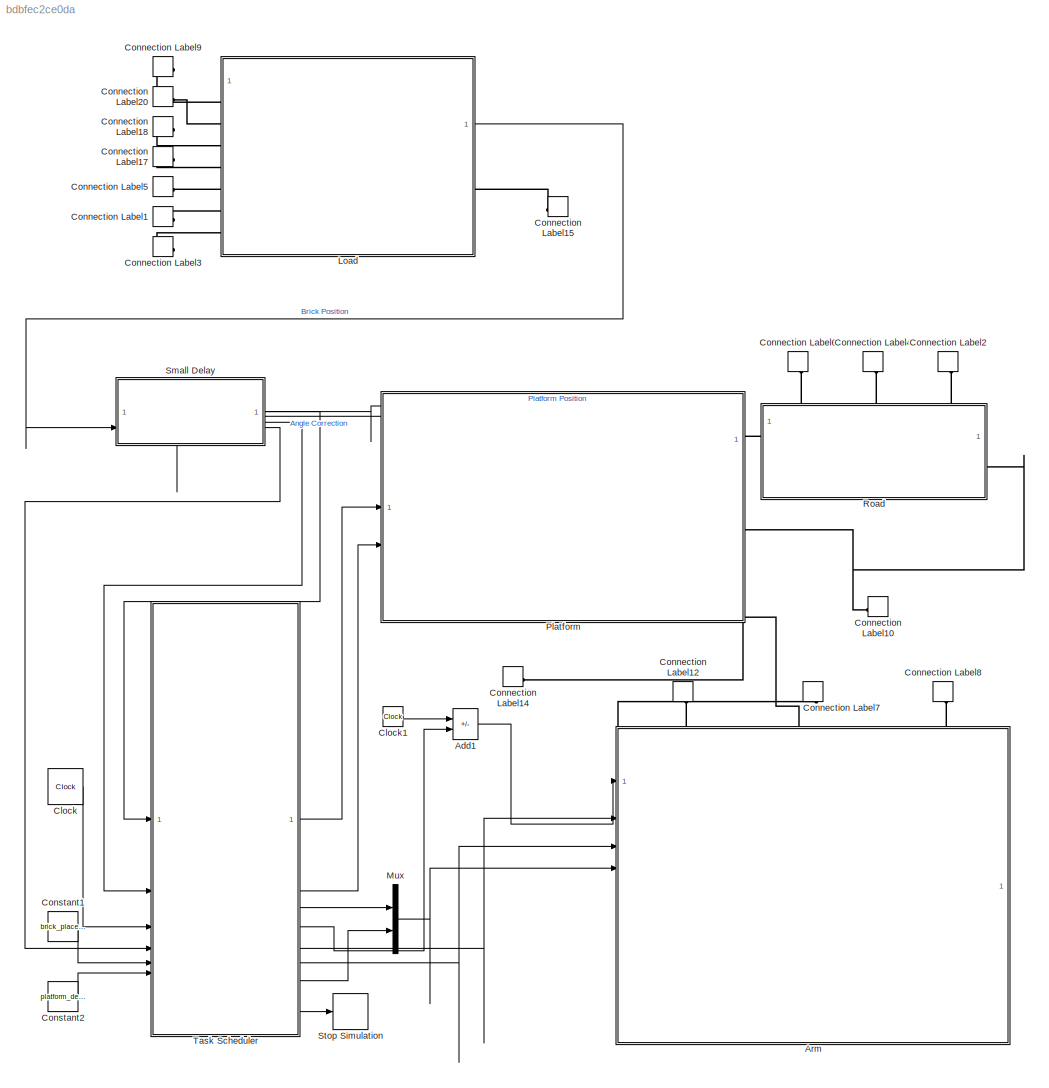
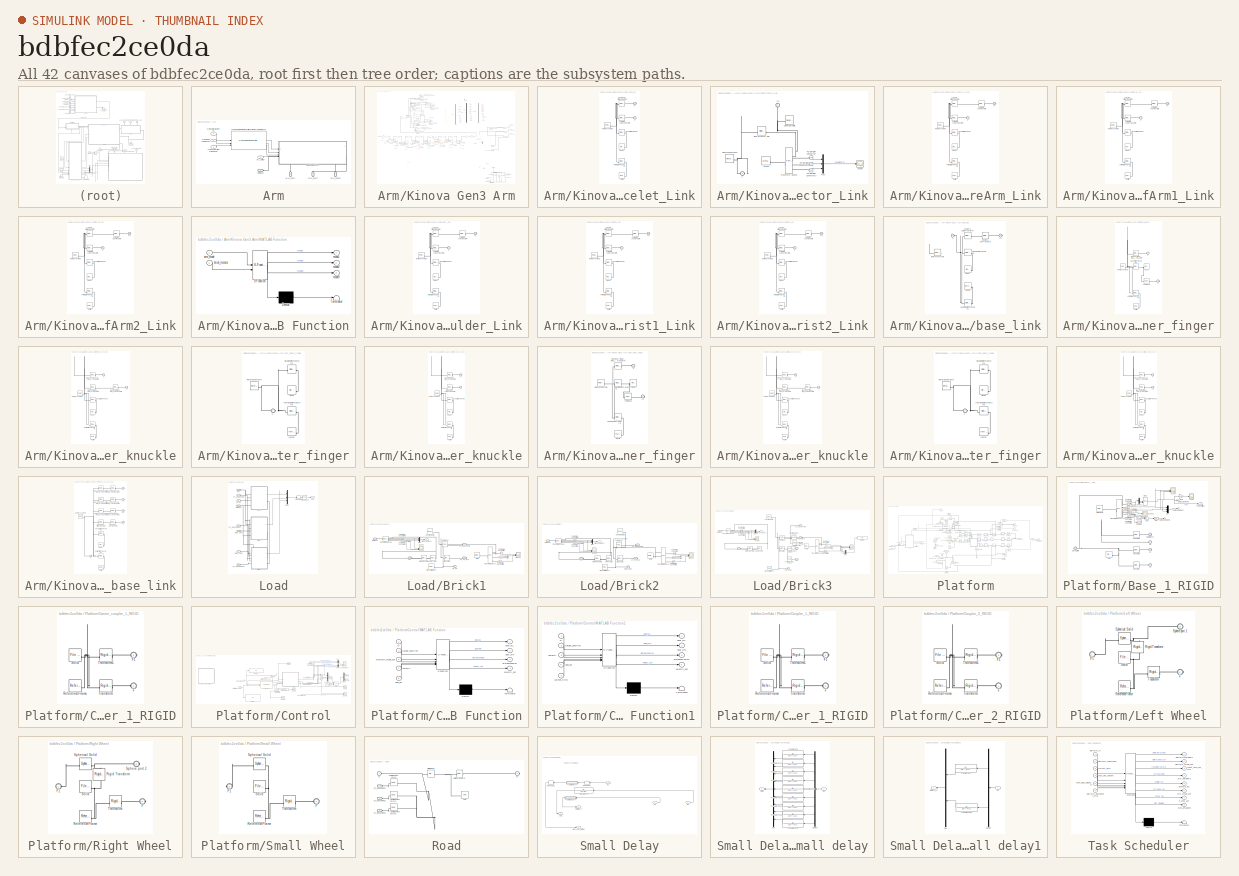
[diagram: thumbnail index - all 42 canvases of the model, root first then tree order]
MODEL slx_bdbfec2ce0da
KIND model
CONFIG AbsTol = 1e-3
CONFIG EnableMultiTasking = off
CONFIG FixedStep = auto
CONFIG MaxStep = auto
CONFIG MinStep = auto
CONFIG PreLoadFcn = Three_wheeled_base_LOAD_DATA
CONFIG RelTol = 1e-3
CONFIG SampleTimeConstraint = Unconstrained
CONFIG SolverName = ode23t
CONFIG StartTime = 0.0
CONFIG StopTime = 600
BLOCK [Sum] Add1
  IconShape = rectangular
  Inputs = +-
BLOCK [SubSystem] Arm
  PortSchema = {"entries":[{"content":{"sides":[{"content":{"connectorIds":["LConn1","In1","In2","In3","In4"]},"type":"ConnectorPlacement.EquallySpacedRectSide","uuid":"ee2274a6-58ed-4bc3-bc3c-ce92a4d8f88b"},{"content":{"side":"RIGHT"},"type":"ConnectorPlacement.EquallySpacedRectSide","uuid":"7a54403a-43fc-49b7-a0b4-bb229ee477d3"},{"content":{"connectorIds":["LConn2","LConn3","LConn4"],"side":"TOP"},"type":"Conn...<+269ch>
BLOCK [Inport] Arm/Arm acceleration trajectories
  Port = 3
BLOCK [Inport] Arm/Arm angle trajectories
BLOCK [Inport] Arm/Arm velocity trajectories
  Port = 2
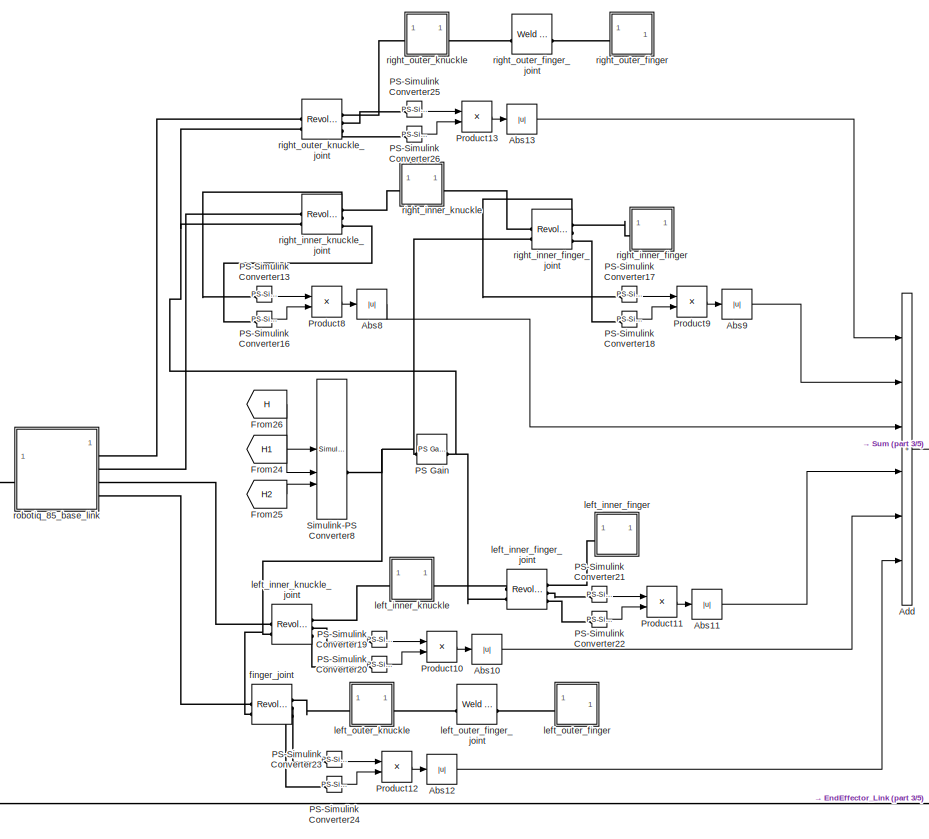
[diagram: Arm/Kinova Gen3 Arm - part 1/5, top center region]
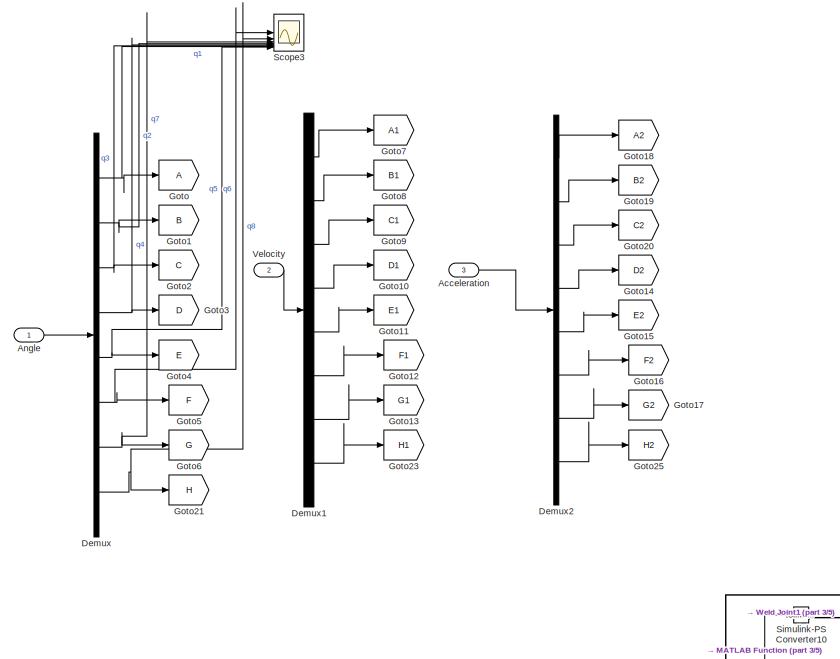
[diagram: Arm/Kinova Gen3 Arm - part 2/5, top right region]
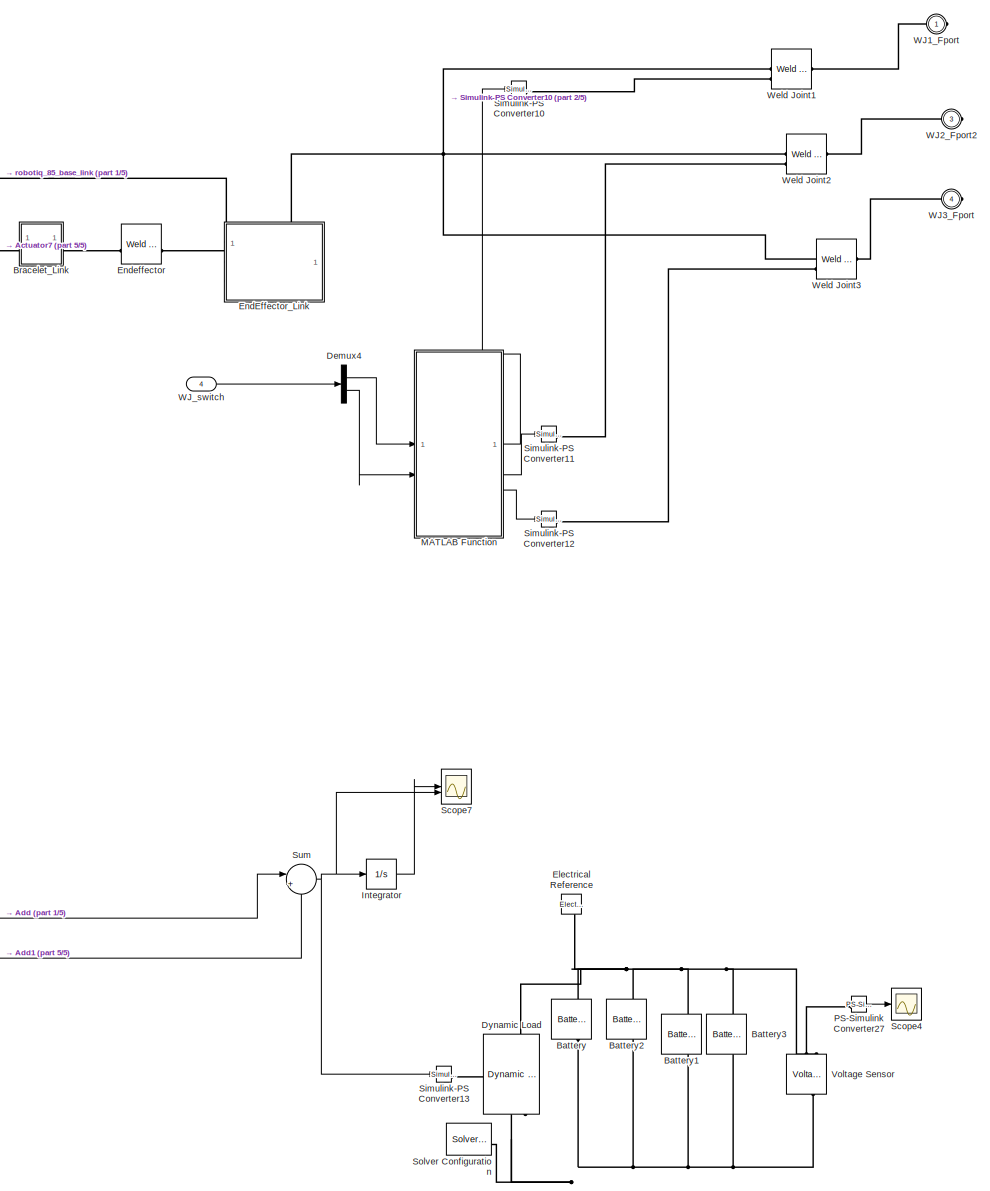
[diagram: Arm/Kinova Gen3 Arm - part 3/5, bottom right region]
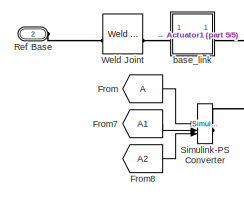
[diagram: Arm/Kinova Gen3 Arm - part 4/5, middle left region]
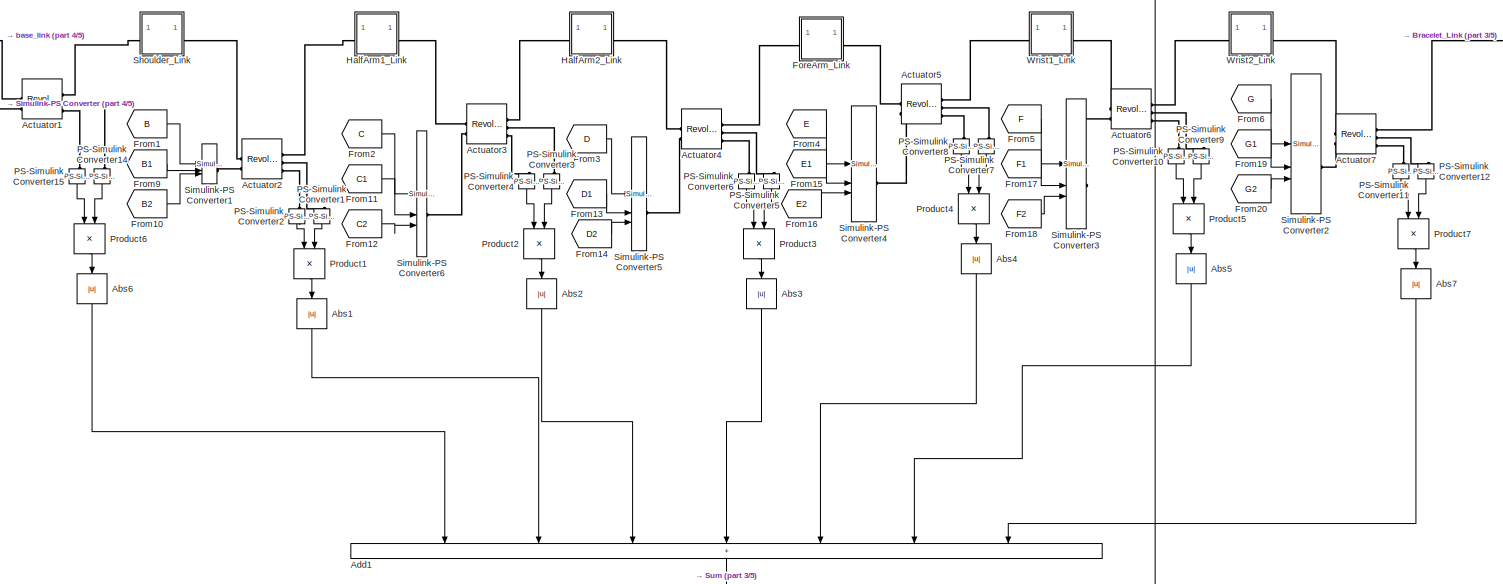
[diagram: Arm/Kinova Gen3 Arm - part 5/5, central region]
BLOCK [SubSystem] Arm/Kinova Gen3 Arm
  PortSchema = {"entries":[{"content":{"sides":[{"content":{"connectorIds":["In1","In2","In3","In4","LConn1"]},"type":"ConnectorPlacement.EquallySpacedRectSide","uuid":"9d5091ef-fb90-4975-9d40-26cfdfa951d0"},{"content":{"side":"RIGHT"},"type":"ConnectorPlacement.EquallySpacedRectSide","uuid":"b105551f-355d-4434-964a-24d22199b3bd"},{"content":{"side":"TOP"},"type":"ConnectorPlacement.EquallySpacedRectSide","uuid"...<+395ch>
BLOCK [Abs] Arm/Kinova Gen3 Arm/Abs1
  NameLocation = left
  SaturateOnIntegerOverflow = off
  ZeroCross = off
BLOCK [Abs] Arm/Kinova Gen3 Arm/Abs10
  SaturateOnIntegerOverflow = off
  ZeroCross = off
BLOCK [Abs] Arm/Kinova Gen3 Arm/Abs11
  SaturateOnIntegerOverflow = off
  ZeroCross = off
BLOCK [Abs] Arm/Kinova Gen3 Arm/Abs12
  SaturateOnIntegerOverflow = off
  ZeroCross = off
BLOCK [Abs] Arm/Kinova Gen3 Arm/Abs13
  SaturateOnIntegerOverflow = off
  ZeroCross = off
BLOCK [Abs] Arm/Kinova Gen3 Arm/Abs2
  NameLocation = left
  SaturateOnIntegerOverflow = off
  ZeroCross = off
BLOCK [Abs] Arm/Kinova Gen3 Arm/Abs3
  NameLocation = left
  SaturateOnIntegerOverflow = off
  ZeroCross = off
BLOCK [Abs] Arm/Kinova Gen3 Arm/Abs4
  NameLocation = left
  SaturateOnIntegerOverflow = off
  ZeroCross = off
BLOCK [Abs] Arm/Kinova Gen3 Arm/Abs5
  NameLocation = left
  SaturateOnIntegerOverflow = off
  ZeroCross = off
BLOCK [Abs] Arm/Kinova Gen3 Arm/Abs6
  NameLocation = left
  SaturateOnIntegerOverflow = off
  ZeroCross = off
BLOCK [Abs] Arm/Kinova Gen3 Arm/Abs7
  NameLocation = left
  SaturateOnIntegerOverflow = off
  ZeroCross = off
BLOCK [Abs] Arm/Kinova Gen3 Arm/Abs8
  SaturateOnIntegerOverflow = off
  ZeroCross = off
BLOCK [Abs] Arm/Kinova Gen3 Arm/Abs9
  SaturateOnIntegerOverflow = off
  ZeroCross = off
BLOCK [Inport] Arm/Kinova Gen3 Arm/Acceleration
  Port = 3
BLOCK [Reference] Arm/Kinova Gen3 Arm/Actuator1  REF=sm_lib/Joints/Revolute Joint
  SourceBlock = sm_lib/Joints/Revolute Joint
  SourceType = Revolute Joint
BLOCK [Reference] Arm/Kinova Gen3 Arm/Actuator2  REF=sm_lib/Joints/Revolute Joint
  SourceBlock = sm_lib/Joints/Revolute Joint
  SourceType = Revolute Joint
BLOCK [Reference] Arm/Kinova Gen3 Arm/Actuator3  REF=sm_lib/Joints/Revolute Joint
  SourceBlock = sm_lib/Joints/Revolute Joint
  SourceType = Revolute Joint
BLOCK [Reference] Arm/Kinova Gen3 Arm/Actuator4  REF=sm_lib/Joints/Revolute Joint
  SourceBlock = sm_lib/Joints/Revolute Joint
  SourceType = Revolute Joint
BLOCK [Reference] Arm/Kinova Gen3 Arm/Actuator5  REF=sm_lib/Joints/Revolute Joint
  SourceBlock = sm_lib/Joints/Revolute Joint
  SourceType = Revolute Joint
BLOCK [Reference] Arm/Kinova Gen3 Arm/Actuator6  REF=sm_lib/Joints/Revolute Joint
  SourceBlock = sm_lib/Joints/Revolute Joint
  SourceType = Revolute Joint
BLOCK [Reference] Arm/Kinova Gen3 Arm/Actuator7  REF=sm_lib/Joints/Revolute Joint
  SourceBlock = sm_lib/Joints/Revolute Joint
  SourceType = Revolute Joint
BLOCK [Sum] Arm/Kinova Gen3 Arm/Add
  IconShape = rectangular
  Inputs = ++++++
BLOCK [Sum] Arm/Kinova Gen3 Arm/Add1
  IconShape = rectangular
  Inputs = +++++++
  NameLocation = left
BLOCK [Inport] Arm/Kinova Gen3 Arm/Angle
BLOCK [Reference] Arm/Kinova Gen3 Arm/Battery  REF=batteryecm_lib/Battery
  LibrarySourceBlock = ee_lib/Sources/Battery
  NameLocation = left
  SourceBlock = batteryecm_lib/Battery
  SourceType = Battery
BLOCK [Reference] Arm/Kinova Gen3 Arm/Battery1  REF=batteryecm_lib/Battery
  LibrarySourceBlock = ee_lib/Sources/Battery
  NameLocation = left
  SourceBlock = batteryecm_lib/Battery
  SourceType = Battery
BLOCK [Reference] Arm/Kinova Gen3 Arm/Battery2  REF=batteryecm_lib/Battery
  LibrarySourceBlock = ee_lib/Sources/Battery
  NameLocation = left
  SourceBlock = batteryecm_lib/Battery
  SourceType = Battery
BLOCK [Reference] Arm/Kinova Gen3 Arm/Battery3  REF=batteryecm_lib/Battery
  LibrarySourceBlock = ee_lib/Sources/Battery
  NameLocation = left
  SourceBlock = batteryecm_lib/Battery
  SourceType = Battery
BLOCK [SubSystem] Arm/Kinova Gen3 Arm/Bracelet_Link
BLOCK [Reference] Arm/Kinova Gen3 Arm/Bracelet_Link/Actuator7_AxisInvTransform  REF=sm_lib/Frames and
Transforms/Rigid
Transform
  SourceBlock = sm_lib/Frames and\nTransforms/Rigid\nTransform
  SourceType = Rigid\nTransform
BLOCK [Reference] Arm/Kinova Gen3 Arm/Bracelet_Link/Endeffector_OriginTransform  REF=sm_lib/Frames and
Transforms/Rigid
Transform
  SourceBlock = sm_lib/Frames and\nTransforms/Rigid\nTransform
  SourceType = Rigid\nTransform
BLOCK [PMIOPort] Arm/Kinova Gen3 Arm/Bracelet_Link/F
  Side = Left
BLOCK [PMIOPort] Arm/Kinova Gen3 Arm/Bracelet_Link/F1
  Port = 2
  Side = Right
BLOCK [Reference] Arm/Kinova Gen3 Arm/Bracelet_Link/Inertia  REF=sm_lib/Body Elements/Inertia
  SourceBlock = sm_lib/Body Elements/Inertia
  SourceType = Inertia
BLOCK [Reference] Arm/Kinova Gen3 Arm/Bracelet_Link/InertiaOriginTransform  REF=sm_lib/Frames and
Transforms/Rigid
Transform
  SourceBlock = sm_lib/Frames and\nTransforms/Rigid\nTransform
  SourceType = Rigid\nTransform
BLOCK [Reference] Arm/Kinova Gen3 Arm/Bracelet_Link/ReferenceFrame  REF=sm_lib/Frames and
Transforms/Reference
Frame
  SourceBlock = sm_lib/Frames and\nTransforms/Reference\nFrame
  SourceType = Reference\nFrame
BLOCK [Reference] Arm/Kinova Gen3 Arm/Bracelet_Link/Visual  REF=sm_lib/Body Elements/File Solid
  SourceBlock = sm_lib/Body Elements/File Solid
  SourceType = File Solid
BLOCK [Reference] Arm/Kinova Gen3 Arm/Bracelet_Link/VisualOriginTransform  REF=sm_lib/Frames and
Transforms/Rigid
Transform
  SourceBlock = sm_lib/Frames and\nTransforms/Rigid\nTransform
  SourceType = Rigid\nTransform
BLOCK [Demux] Arm/Kinova Gen3 Arm/Demux
  Outputs = 8
BLOCK [Demux] Arm/Kinova Gen3 Arm/Demux1
  Outputs = 8
BLOCK [Demux] Arm/Kinova Gen3 Arm/Demux2
  Outputs = 8
BLOCK [Demux] Arm/Kinova Gen3 Arm/Demux4
  Outputs = 2
BLOCK [Reference] Arm/Kinova Gen3 Arm/Dynamic Load  REF=ee_lib/Passive/Dynamic Load
  NameLocation = right
  SourceBlock = ee_lib/Passive/Dynamic Load
  SourceType = Dynamic Load
BLOCK [Reference] Arm/Kinova Gen3 Arm/Electrical Reference  REF=fl_lib/Electrical/Electrical Elements/Electrical Reference
  NameLocation = left
  SourceBlock = fl_lib/Electrical/Electrical Elements/Electrical Reference
  SourceType = Electrical Reference
BLOCK [SubSystem] Arm/Kinova Gen3 Arm/EndEffector_Link
  PortSchema = {"entries":[{"content":{"sides":[{"content":{"connectorIds":["LConn1"]},"type":"ConnectorPlacement.EquallySpacedRectSide","uuid":"82f16ba1-9569-4e63-828b-80ada8384267"},{"content":{"side":"RIGHT"},"type":"ConnectorPlacement.EquallySpacedRectSide","uuid":"1c40a8b8-ff86-4403-bbc9-e3f7ed97d9c7"},{"content":{"connectorIds":["LConn2"],"side":"TOP"},"type":"ConnectorPlacement.EquallySpacedRectSide","uui...<+227ch>
BLOCK [Reference] Arm/Kinova Gen3 Arm/EndEffector_Link/End effector ball  REF=sm_lib/Frames and
Transforms/Rigid
Transform
  SourceBlock = sm_lib/Frames and\nTransforms/Rigid\nTransform
  SourceType = Rigid\nTransform
BLOCK [PMIOPort] Arm/Kinova Gen3 Arm/EndEffector_Link/F
  Side = Left
BLOCK [PMIOPort] Arm/Kinova Gen3 Arm/EndEffector_Link/F1
  NameLocation = left
  Port = 2
  Side = Left
BLOCK [Mux] Arm/Kinova Gen3 Arm/EndEffector_Link/Mux
  DisplayOption = bar
  Inputs = 3
BLOCK [Reference] Arm/Kinova Gen3 Arm/EndEffector_Link/PS-Simulink Converter  REF=nesl_utility/PS-Simulink
Converter
  SourceBlock = nesl_utility/PS-Simulink\nConverter
  SourceType = PS-Simulink\nConverter
BLOCK [Reference] Arm/Kinova Gen3 Arm/EndEffector_Link/PS-Simulink Converter1  REF=nesl_utility/PS-Simulink
Converter
  SourceBlock = nesl_utility/PS-Simulink\nConverter
  SourceType = PS-Simulink\nConverter
BLOCK [Reference] Arm/Kinova Gen3 Arm/EndEffector_Link/PS-Simulink Converter2  REF=nesl_utility/PS-Simulink
Converter
  SourceBlock = nesl_utility/PS-Simulink\nConverter
  SourceType = PS-Simulink\nConverter
BLOCK [Reference] Arm/Kinova Gen3 Arm/EndEffector_Link/ReferenceFrame  REF=sm_lib/Frames and
Transforms/Reference
Frame
  SourceBlock = sm_lib/Frames and\nTransforms/Reference\nFrame
  SourceType = Reference\nFrame
BLOCK [Scope] Arm/Kinova Gen3 Arm/EndEffector_Link/Scope
  Floating = off
  NumInputPorts = 1
  ScopeSpecificationString = Simulink.scopes.TimeScopeBlockCfg('CurrentConfiguration', extmgr.ConfigurationSet(extmgr.Configuration('Core','General UI',true),extmgr.Configuration('Core','Source UI',true),extmgr.Configuration('Sources','WiredSimulink',true,'DataLoggingVariableName','ScopeData1'),extmgr.Configuration('Visuals','Time Domain',true,'SerializedDisplays',{struct('MinYLimReal','-1.22207','MaxYLimReal','6.5632','YLabe...<+1488ch>
BLOCK [Reference] Arm/Kinova Gen3 Arm/EndEffector_Link/Spherical Solid  REF=sm_lib/Body Elements/Spherical Solid
  NameLocation = top
  SourceBlock = sm_lib/Body Elements/Spherical Solid
  SourceType = Spherical Solid
BLOCK [Reference] Arm/Kinova Gen3 Arm/EndEffector_Link/Transform Sensor  REF=sm_lib/Frames and
Transforms/Transform
Sensor
  SourceBlock = sm_lib/Frames and\nTransforms/Transform\nSensor
  SourceType = Transform\nSensor
BLOCK [Reference] Arm/Kinova Gen3 Arm/EndEffector_Link/World  REF=sm_lib/Frames and
Transforms/World Frame
  SourceBlock = sm_lib/Frames and\nTransforms/World Frame
  SourceType = World Frame
BLOCK [Reference] Arm/Kinova Gen3 Arm/Endeffector  REF=sm_lib/Joints/Weld Joint
  SourceBlock = sm_lib/Joints/Weld Joint
  SourceType = Weld Joint
BLOCK [SubSystem] Arm/Kinova Gen3 Arm/ForeArm_Link
BLOCK [Reference] Arm/Kinova Gen3 Arm/ForeArm_Link/Actuator4_AxisInvTransform  REF=sm_lib/Frames and
Transforms/Rigid
Transform
  SourceBlock = sm_lib/Frames and\nTransforms/Rigid\nTransform
  SourceType = Rigid\nTransform
BLOCK [Reference] Arm/Kinova Gen3 Arm/ForeArm_Link/Actuator5_AxisTransform  REF=sm_lib/Frames and
Transforms/Rigid
Transform
  SourceBlock = sm_lib/Frames and\nTransforms/Rigid\nTransform
  SourceType = Rigid\nTransform
BLOCK [Reference] Arm/Kinova Gen3 Arm/ForeArm_Link/Actuator5_OriginTransform  REF=sm_lib/Frames and
Transforms/Rigid
Transform
  SourceBlock = sm_lib/Frames and\nTransforms/Rigid\nTransform
  SourceType = Rigid\nTransform
BLOCK [PMIOPort] Arm/Kinova Gen3 Arm/ForeArm_Link/F
  Side = Left
BLOCK [PMIOPort] Arm/Kinova Gen3 Arm/ForeArm_Link/F1
  Port = 2
  Side = Right
BLOCK [Reference] Arm/Kinova Gen3 Arm/ForeArm_Link/Inertia  REF=sm_lib/Body Elements/Inertia
  SourceBlock = sm_lib/Body Elements/Inertia
  SourceType = Inertia
BLOCK [Reference] Arm/Kinova Gen3 Arm/ForeArm_Link/InertiaOriginTransform  REF=sm_lib/Frames and
Transforms/Rigid
Transform
  SourceBlock = sm_lib/Frames and\nTransforms/Rigid\nTransform
  SourceType = Rigid\nTransform
BLOCK [Reference] Arm/Kinova Gen3 Arm/ForeArm_Link/ReferenceFrame  REF=sm_lib/Frames and
Transforms/Reference
Frame
  SourceBlock = sm_lib/Frames and\nTransforms/Reference\nFrame
  SourceType = Reference\nFrame
BLOCK [Reference] Arm/Kinova Gen3 Arm/ForeArm_Link/Visual  REF=sm_lib/Body Elements/File Solid
  SourceBlock = sm_lib/Body Elements/File Solid
  SourceType = File Solid
BLOCK [Reference] Arm/Kinova Gen3 Arm/ForeArm_Link/VisualOriginTransform  REF=sm_lib/Frames and
Transforms/Rigid
Transform
  SourceBlock = sm_lib/Frames and\nTransforms/Rigid\nTransform
  SourceType = Rigid\nTransform
BLOCK [From] Arm/Kinova Gen3 Arm/From
BLOCK [From] Arm/Kinova Gen3 Arm/From1
  GotoTag = B
BLOCK [From] Arm/Kinova Gen3 Arm/From10
  GotoTag = B2
BLOCK [From] Arm/Kinova Gen3 Arm/From11
  GotoTag = C1
BLOCK [From] Arm/Kinova Gen3 Arm/From12
  GotoTag = C2
BLOCK [From] Arm/Kinova Gen3 Arm/From13
  GotoTag = D1
BLOCK [From] Arm/Kinova Gen3 Arm/From14
  GotoTag = D2
BLOCK [From] Arm/Kinova Gen3 Arm/From15
  GotoTag = E1
BLOCK [From] Arm/Kinova Gen3 Arm/From16
  GotoTag = E2
BLOCK [From] Arm/Kinova Gen3 Arm/From17
  GotoTag = F1
BLOCK [From] Arm/Kinova Gen3 Arm/From18
  GotoTag = F2
BLOCK [From] Arm/Kinova Gen3 Arm/From19
  GotoTag = G1
BLOCK [From] Arm/Kinova Gen3 Arm/From2
  GotoTag = C
BLOCK [From] Arm/Kinova Gen3 Arm/From20
  GotoTag = G2
BLOCK [From] Arm/Kinova Gen3 Arm/From24
  GotoTag = H1
BLOCK [From] Arm/Kinova Gen3 Arm/From25
  GotoTag = H2
BLOCK [From] Arm/Kinova Gen3 Arm/From26
  GotoTag = H
BLOCK [From] Arm/Kinova Gen3 Arm/From3
  GotoTag = D
BLOCK [From] Arm/Kinova Gen3 Arm/From4
  GotoTag = E
BLOCK [From] Arm/Kinova Gen3 Arm/From5
  GotoTag = F
BLOCK [From] Arm/Kinova Gen3 Arm/From6
  GotoTag = G
BLOCK [From] Arm/Kinova Gen3 Arm/From7
  GotoTag = A1
BLOCK [From] Arm/Kinova Gen3 Arm/From8
  GotoTag = A2
BLOCK [From] Arm/Kinova Gen3 Arm/From9
  GotoTag = B1
BLOCK [Goto] Arm/Kinova Gen3 Arm/Goto
BLOCK [Goto] Arm/Kinova Gen3 Arm/Goto1
  GotoTag = B
BLOCK [Goto] Arm/Kinova Gen3 Arm/Goto10
  GotoTag = D1
BLOCK [Goto] Arm/Kinova Gen3 Arm/Goto11
  GotoTag = E1
BLOCK [Goto] Arm/Kinova Gen3 Arm/Goto12
  GotoTag = F1
BLOCK [Goto] Arm/Kinova Gen3 Arm/Goto13
  GotoTag = G1
BLOCK [Goto] Arm/Kinova Gen3 Arm/Goto14
  GotoTag = D2
BLOCK [Goto] Arm/Kinova Gen3 Arm/Goto15
  GotoTag = E2
BLOCK [Goto] Arm/Kinova Gen3 Arm/Goto16
  GotoTag = F2
BLOCK [Goto] Arm/Kinova Gen3 Arm/Goto17
  GotoTag = G2
BLOCK [Goto] Arm/Kinova Gen3 Arm/Goto18
  GotoTag = A2
BLOCK [Goto] Arm/Kinova Gen3 Arm/Goto19
  GotoTag = B2
BLOCK [Goto] Arm/Kinova Gen3 Arm/Goto2
  GotoTag = C
BLOCK [Goto] Arm/Kinova Gen3 Arm/Goto20
  GotoTag = C2
BLOCK [Goto] Arm/Kinova Gen3 Arm/Goto21
  GotoTag = H
BLOCK [Goto] Arm/Kinova Gen3 Arm/Goto23
  GotoTag = H1
BLOCK [Goto] Arm/Kinova Gen3 Arm/Goto25
  GotoTag = H2
BLOCK [Goto] Arm/Kinova Gen3 Arm/Goto3
  GotoTag = D
BLOCK [Goto] Arm/Kinova Gen3 Arm/Goto4
  GotoTag = E
BLOCK [Goto] Arm/Kinova Gen3 Arm/Goto5
  GotoTag = F
BLOCK [Goto] Arm/Kinova Gen3 Arm/Goto6
  GotoTag = G
BLOCK [Goto] Arm/Kinova Gen3 Arm/Goto7
  GotoTag = A1
BLOCK [Goto] Arm/Kinova Gen3 Arm/Goto8
  GotoTag = B1
BLOCK [Goto] Arm/Kinova Gen3 Arm/Goto9
  GotoTag = C1
BLOCK [SubSystem] Arm/Kinova Gen3 Arm/HalfArm1_Link
BLOCK [Reference] Arm/Kinova Gen3 Arm/HalfArm1_Link/Actuator2_AxisInvTransform  REF=sm_lib/Frames and
Transforms/Rigid
Transform
  SourceBlock = sm_lib/Frames and\nTransforms/Rigid\nTransform
  SourceType = Rigid\nTransform
BLOCK [Reference] Arm/Kinova Gen3 Arm/HalfArm1_Link/Actuator3_AxisTransform  REF=sm_lib/Frames and
Transforms/Rigid
Transform
  SourceBlock = sm_lib/Frames and\nTransforms/Rigid\nTransform
  SourceType = Rigid\nTransform
BLOCK [Reference] Arm/Kinova Gen3 Arm/HalfArm1_Link/Actuator3_OriginTransform  REF=sm_lib/Frames and
Transforms/Rigid
Transform
  SourceBlock = sm_lib/Frames and\nTransforms/Rigid\nTransform
  SourceType = Rigid\nTransform
BLOCK [PMIOPort] Arm/Kinova Gen3 Arm/HalfArm1_Link/F
  Side = Left
BLOCK [PMIOPort] Arm/Kinova Gen3 Arm/HalfArm1_Link/F1
  Port = 2
  Side = Right
BLOCK [Reference] Arm/Kinova Gen3 Arm/HalfArm1_Link/Inertia  REF=sm_lib/Body Elements/Inertia
  SourceBlock = sm_lib/Body Elements/Inertia
  SourceType = Inertia
BLOCK [Reference] Arm/Kinova Gen3 Arm/HalfArm1_Link/InertiaOriginTransform  REF=sm_lib/Frames and
Transforms/Rigid
Transform
  SourceBlock = sm_lib/Frames and\nTransforms/Rigid\nTransform
  SourceType = Rigid\nTransform
BLOCK [Reference] Arm/Kinova Gen3 Arm/HalfArm1_Link/ReferenceFrame  REF=sm_lib/Frames and
Transforms/Reference
Frame
  SourceBlock = sm_lib/Frames and\nTransforms/Reference\nFrame
  SourceType = Reference\nFrame
BLOCK [Reference] Arm/Kinova Gen3 Arm/HalfArm1_Link/Visual  REF=sm_lib/Body Elements/File Solid
  SourceBlock = sm_lib/Body Elements/File Solid
  SourceType = File Solid
BLOCK [Reference] Arm/Kinova Gen3 Arm/HalfArm1_Link/VisualOriginTransform  REF=sm_lib/Frames and
Transforms/Rigid
Transform
  SourceBlock = sm_lib/Frames and\nTransforms/Rigid\nTransform
  SourceType = Rigid\nTransform
BLOCK [SubSystem] Arm/Kinova Gen3 Arm/HalfArm2_Link
BLOCK [Reference] Arm/Kinova Gen3 Arm/HalfArm2_Link/Actuator3_AxisInvTransform  REF=sm_lib/Frames and
Transforms/Rigid
Transform
  SourceBlock = sm_lib/Frames and\nTransforms/Rigid\nTransform
  SourceType = Rigid\nTransform
BLOCK [Reference] Arm/Kinova Gen3 Arm/HalfArm2_Link/Actuator4_AxisTransform  REF=sm_lib/Frames and
Transforms/Rigid
Transform
  SourceBlock = sm_lib/Frames and\nTransforms/Rigid\nTransform
  SourceType = Rigid\nTransform
BLOCK [Reference] Arm/Kinova Gen3 Arm/HalfArm2_Link/Actuator4_OriginTransform  REF=sm_lib/Frames and
Transforms/Rigid
Transform
  SourceBlock = sm_lib/Frames and\nTransforms/Rigid\nTransform
  SourceType = Rigid\nTransform
BLOCK [PMIOPort] Arm/Kinova Gen3 Arm/HalfArm2_Link/F
  Side = Left
BLOCK [PMIOPort] Arm/Kinova Gen3 Arm/HalfArm2_Link/F1
  Port = 2
  Side = Right
BLOCK [Reference] Arm/Kinova Gen3 Arm/HalfArm2_Link/Inertia  REF=sm_lib/Body Elements/Inertia
  SourceBlock = sm_lib/Body Elements/Inertia
  SourceType = Inertia
BLOCK [Reference] Arm/Kinova Gen3 Arm/HalfArm2_Link/InertiaOriginTransform  REF=sm_lib/Frames and
Transforms/Rigid
Transform
  SourceBlock = sm_lib/Frames and\nTransforms/Rigid\nTransform
  SourceType = Rigid\nTransform
BLOCK [Reference] Arm/Kinova Gen3 Arm/HalfArm2_Link/ReferenceFrame  REF=sm_lib/Frames and
Transforms/Reference
Frame
  SourceBlock = sm_lib/Frames and\nTransforms/Reference\nFrame
  SourceType = Reference\nFrame
BLOCK [Reference] Arm/Kinova Gen3 Arm/HalfArm2_Link/Visual  REF=sm_lib/Body Elements/File Solid
  SourceBlock = sm_lib/Body Elements/File Solid
  SourceType = File Solid
BLOCK [Reference] Arm/Kinova Gen3 Arm/HalfArm2_Link/VisualOriginTransform  REF=sm_lib/Frames and
Transforms/Rigid
Transform
  SourceBlock = sm_lib/Frames and\nTransforms/Rigid\nTransform
  SourceType = Rigid\nTransform
BLOCK [Integrator] Arm/Kinova Gen3 Arm/Integrator
BLOCK [SubSystem] Arm/Kinova Gen3 Arm/MATLAB Function
  ErrorFcn = Stateflow.Translate.translate
  LibrarySourceBlock = simulink/User-Defined\nFunctions/MATLAB Function
  PermitHierarchicalResolution = ExplicitOnly
  SFBlockType = MATLAB Function
  TreatAsAtomicUnit = on
BLOCK [Demux] Arm/Kinova Gen3 Arm/MATLAB Function/ Demux 
  Outputs = 1
BLOCK [S-Function] Arm/Kinova Gen3 Arm/MATLAB Function/ SFunction 
  EnableBusSupport = on
  FunctionName = sf_sfun
  PortCounts = [2 4]
  SFcnIsStateOwnerBlock = off
  SFunctionDeploymentMode = off
  Tag = Stateflow S-Function 4
BLOCK [Terminator] Arm/Kinova Gen3 Arm/MATLAB Function/ Terminator 
BLOCK [Inport] Arm/Kinova Gen3 Arm/MATLAB Function/arm_mode
BLOCK [Inport] Arm/Kinova Gen3 Arm/MATLAB Function/brick_iterator
  Port = 2
BLOCK [Outport] Arm/Kinova Gen3 Arm/MATLAB Function/mode1
BLOCK [Outport] Arm/Kinova Gen3 Arm/MATLAB Function/mode2
  Port = 2
BLOCK [Outport] Arm/Kinova Gen3 Arm/MATLAB Function/mode3
  Port = 3
BLOCK [Reference] Arm/Kinova Gen3 Arm/PS Gain  REF=fl_lib/Physical Signals/Functions/PS Gain
  SourceBlock = fl_lib/Physical Signals/Functions/PS Gain
  SourceType = PS Gain
BLOCK [Reference] Arm/Kinova Gen3 Arm/PS-Simulink Converter1  REF=nesl_utility/PS-Simulink
Converter
  NameLocation = left
  SourceBlock = nesl_utility/PS-Simulink\nConverter
  SourceType = PS-Simulink\nConverter
BLOCK [Reference] Arm/Kinova Gen3 Arm/PS-Simulink Converter10  REF=nesl_utility/PS-Simulink
Converter
  NameLocation = left
  SourceBlock = nesl_utility/PS-Simulink\nConverter
  SourceType = PS-Simulink\nConverter
BLOCK [Reference] Arm/Kinova Gen3 Arm/PS-Simulink Converter11  REF=nesl_utility/PS-Simulink
Converter
  NameLocation = left
  SourceBlock = nesl_utility/PS-Simulink\nConverter
  SourceType = PS-Simulink\nConverter
BLOCK [Reference] Arm/Kinova Gen3 Arm/PS-Simulink Converter12  REF=nesl_utility/PS-Simulink
Converter
  NameLocation = left
  SourceBlock = nesl_utility/PS-Simulink\nConverter
  SourceType = PS-Simulink\nConverter
BLOCK [Reference] Arm/Kinova Gen3 Arm/PS-Simulink Converter13  REF=nesl_utility/PS-Simulink
Converter
  SourceBlock = nesl_utility/PS-Simulink\nConverter
  SourceType = PS-Simulink\nConverter
BLOCK [Reference] Arm/Kinova Gen3 Arm/PS-Simulink Converter14  REF=nesl_utility/PS-Simulink
Converter
  NameLocation = left
  SourceBlock = nesl_utility/PS-Simulink\nConverter
  SourceType = PS-Simulink\nConverter
BLOCK [Reference] Arm/Kinova Gen3 Arm/PS-Simulink Converter15  REF=nesl_utility/PS-Simulink
Converter
  NameLocation = left
  SourceBlock = nesl_utility/PS-Simulink\nConverter
  SourceType = PS-Simulink\nConverter
BLOCK [Reference] Arm/Kinova Gen3 Arm/PS-Simulink Converter16  REF=nesl_utility/PS-Simulink
Converter
  SourceBlock = nesl_utility/PS-Simulink\nConverter
  SourceType = PS-Simulink\nConverter
BLOCK [Reference] Arm/Kinova Gen3 Arm/PS-Simulink Converter17  REF=nesl_utility/PS-Simulink
Converter
  SourceBlock = nesl_utility/PS-Simulink\nConverter
  SourceType = PS-Simulink\nConverter
BLOCK [Reference] Arm/Kinova Gen3 Arm/PS-Simulink Converter18  REF=nesl_utility/PS-Simulink
Converter
  SourceBlock = nesl_utility/PS-Simulink\nConverter
  SourceType = PS-Simulink\nConverter
BLOCK [Reference] Arm/Kinova Gen3 Arm/PS-Simulink Converter19  REF=nesl_utility/PS-Simulink
Converter
  SourceBlock = nesl_utility/PS-Simulink\nConverter
  SourceType = PS-Simulink\nConverter
BLOCK [Reference] Arm/Kinova Gen3 Arm/PS-Simulink Converter2  REF=nesl_utility/PS-Simulink
Converter
  NameLocation = left
  SourceBlock = nesl_utility/PS-Simulink\nConverter
  SourceType = PS-Simulink\nConverter
BLOCK [Reference] Arm/Kinova Gen3 Arm/PS-Simulink Converter20  REF=nesl_utility/PS-Simulink
Converter
  SourceBlock = nesl_utility/PS-Simulink\nConverter
  SourceType = PS-Simulink\nConverter
BLOCK [Reference] Arm/Kinova Gen3 Arm/PS-Simulink Converter21  REF=nesl_utility/PS-Simulink
Converter
  SourceBlock = nesl_utility/PS-Simulink\nConverter
  SourceType = PS-Simulink\nConverter
BLOCK [Reference] Arm/Kinova Gen3 Arm/PS-Simulink Converter22  REF=nesl_utility/PS-Simulink
Converter
  SourceBlock = nesl_utility/PS-Simulink\nConverter
  SourceType = PS-Simulink\nConverter
BLOCK [Reference] Arm/Kinova Gen3 Arm/PS-Simulink Converter23  REF=nesl_utility/PS-Simulink
Converter
  SourceBlock = nesl_utility/PS-Simulink\nConverter
  SourceType = PS-Simulink\nConverter
BLOCK [Reference] Arm/Kinova Gen3 Arm/PS-Simulink Converter24  REF=nesl_utility/PS-Simulink
Converter
  SourceBlock = nesl_utility/PS-Simulink\nConverter
  SourceType = PS-Simulink\nConverter
BLOCK [Reference] Arm/Kinova Gen3 Arm/PS-Simulink Converter25  REF=nesl_utility/PS-Simulink
Converter
  SourceBlock = nesl_utility/PS-Simulink\nConverter
  SourceType = PS-Simulink\nConverter
BLOCK [Reference] Arm/Kinova Gen3 Arm/PS-Simulink Converter26  REF=nesl_utility/PS-Simulink
Converter
  SourceBlock = nesl_utility/PS-Simulink\nConverter
  SourceType = PS-Simulink\nConverter
BLOCK [Reference] Arm/Kinova Gen3 Arm/PS-Simulink Converter27  REF=nesl_utility/PS-Simulink
Converter
  SourceBlock = nesl_utility/PS-Simulink\nConverter
  SourceType = PS-Simulink\nConverter
BLOCK [Reference] Arm/Kinova Gen3 Arm/PS-Simulink Converter3  REF=nesl_utility/PS-Simulink
Converter
  NameLocation = left
  SourceBlock = nesl_utility/PS-Simulink\nConverter
  SourceType = PS-Simulink\nConverter
BLOCK [Reference] Arm/Kinova Gen3 Arm/PS-Simulink Converter4  REF=nesl_utility/PS-Simulink
Converter
  NameLocation = left
  SourceBlock = nesl_utility/PS-Simulink\nConverter
  SourceType = PS-Simulink\nConverter
BLOCK [Reference] Arm/Kinova Gen3 Arm/PS-Simulink Converter5  REF=nesl_utility/PS-Simulink
Converter
  NameLocation = left
  SourceBlock = nesl_utility/PS-Simulink\nConverter
  SourceType = PS-Simulink\nConverter
BLOCK [Reference] Arm/Kinova Gen3 Arm/PS-Simulink Converter6  REF=nesl_utility/PS-Simulink
Converter
  NameLocation = left
  SourceBlock = nesl_utility/PS-Simulink\nConverter
  SourceType = PS-Simulink\nConverter
BLOCK [Reference] Arm/Kinova Gen3 Arm/PS-Simulink Converter7  REF=nesl_utility/PS-Simulink
Converter
  NameLocation = left
  SourceBlock = nesl_utility/PS-Simulink\nConverter
  SourceType = PS-Simulink\nConverter
BLOCK [Reference] Arm/Kinova Gen3 Arm/PS-Simulink Converter8  REF=nesl_utility/PS-Simulink
Converter
  NameLocation = left
  SourceBlock = nesl_utility/PS-Simulink\nConverter
  SourceType = PS-Simulink\nConverter
BLOCK [Reference] Arm/Kinova Gen3 Arm/PS-Simulink Converter9  REF=nesl_utility/PS-Simulink
Converter
  NameLocation = left
  SourceBlock = nesl_utility/PS-Simulink\nConverter
  SourceType = PS-Simulink\nConverter
BLOCK [Product] Arm/Kinova Gen3 Arm/Product1
  NameLocation = left
BLOCK [Product] Arm/Kinova Gen3 Arm/Product10
BLOCK [Product] Arm/Kinova Gen3 Arm/Product11
BLOCK [Product] Arm/Kinova Gen3 Arm/Product12
BLOCK [Product] Arm/Kinova Gen3 Arm/Product13
BLOCK [Product] Arm/Kinova Gen3 Arm/Product2
  NameLocation = left
BLOCK [Product] Arm/Kinova Gen3 Arm/Product3
  NameLocation = left
BLOCK [Product] Arm/Kinova Gen3 Arm/Product4
  NameLocation = left
BLOCK [Product] Arm/Kinova Gen3 Arm/Product5
  NameLocation = left
BLOCK [Product] Arm/Kinova Gen3 Arm/Product6
  NameLocation = left
BLOCK [Product] Arm/Kinova Gen3 Arm/Product7
  NameLocation = left
BLOCK [Product] Arm/Kinova Gen3 Arm/Product8
BLOCK [Product] Arm/Kinova Gen3 Arm/Product9
BLOCK [PMIOPort] Arm/Kinova Gen3 Arm/Ref Base
  NameLocation = top
  Port = 2
  Side = Left
BLOCK [Scope] Arm/Kinova Gen3 Arm/Scope3
  Floating = off
  NumInputPorts = 8
  ScopeSpecificationString = Simulink.scopes.TimeScopeBlockCfg('CurrentConfiguration', extmgr.ConfigurationSet(extmgr.Configuration('Core','General UI',true),extmgr.Configuration('Core','Source UI',true),extmgr.Configuration('Sources','WiredSimulink',true,'DataLoggingVariableName','ScopeData1'),extmgr.Configuration('Visuals','Time Domain',true,'SerializedDisplays',{struct('MinYLimReal','-2.23834','MaxYLimReal','2.70548','YLab...<+1573ch>
BLOCK [Scope] Arm/Kinova Gen3 Arm/Scope4
  Floating = off
  NumInputPorts = 1
  ScopeSpecificationString = Simulink.scopes.TimeScopeBlockCfg('CurrentConfiguration', extmgr.ConfigurationSet(extmgr.Configuration('Core','General UI',true),extmgr.Configuration('Core','Source UI',true),extmgr.Configuration('Sources','WiredSimulink',true,'DataLoggingVariableName','ScopeData1'),extmgr.Configuration('Visuals','Time Domain',true,'SerializedDisplays',{struct('MinYLimReal','6.08935','MaxYLimReal','12.65674','YLab...<+1484ch>
BLOCK [Scope] Arm/Kinova Gen3 Arm/Scope7
  Floating = off
  NumInputPorts = 2
  ScopeSpecificationString = Simulink.scopes.TimeScopeBlockCfg('CurrentConfiguration', extmgr.ConfigurationSet(extmgr.Configuration('Core','General UI',true),extmgr.Configuration('Core','Source UI',true),extmgr.Configuration('Sources','WiredSimulink',true,'DataLoggingVariableName','ScopeData2'),extmgr.Configuration('Visuals','Time Domain',true,'SerializedDisplays',{struct('MinYLimReal','-223935.42059','MaxYLimReal','2015418.7...<+1607ch>
BLOCK [SubSystem] Arm/Kinova Gen3 Arm/Shoulder_Link
BLOCK [Reference] Arm/Kinova Gen3 Arm/Shoulder_Link/Actuator1_AxisInvTransform  REF=sm_lib/Frames and
Transforms/Rigid
Transform
  SourceBlock = sm_lib/Frames and\nTransforms/Rigid\nTransform
  SourceType = Rigid\nTransform
BLOCK [Reference] Arm/Kinova Gen3 Arm/Shoulder_Link/Actuator2_AxisTransform  REF=sm_lib/Frames and
Transforms/Rigid
Transform
  SourceBlock = sm_lib/Frames and\nTransforms/Rigid\nTransform
  SourceType = Rigid\nTransform
BLOCK [Reference] Arm/Kinova Gen3 Arm/Shoulder_Link/Actuator2_OriginTransform  REF=sm_lib/Frames and
Transforms/Rigid
Transform
  SourceBlock = sm_lib/Frames and\nTransforms/Rigid\nTransform
  SourceType = Rigid\nTransform
BLOCK [PMIOPort] Arm/Kinova Gen3 Arm/Shoulder_Link/F
  Side = Left
BLOCK [PMIOPort] Arm/Kinova Gen3 Arm/Shoulder_Link/F1
  Port = 2
  Side = Right
BLOCK [Reference] Arm/Kinova Gen3 Arm/Shoulder_Link/Inertia  REF=sm_lib/Body Elements/Inertia
  SourceBlock = sm_lib/Body Elements/Inertia
  SourceType = Inertia
BLOCK [Reference] Arm/Kinova Gen3 Arm/Shoulder_Link/InertiaOriginTransform  REF=sm_lib/Frames and
Transforms/Rigid
Transform
  SourceBlock = sm_lib/Frames and\nTransforms/Rigid\nTransform
  SourceType = Rigid\nTransform
BLOCK [Reference] Arm/Kinova Gen3 Arm/Shoulder_Link/ReferenceFrame  REF=sm_lib/Frames and
Transforms/Reference
Frame
  SourceBlock = sm_lib/Frames and\nTransforms/Reference\nFrame
  SourceType = Reference\nFrame
BLOCK [Reference] Arm/Kinova Gen3 Arm/Shoulder_Link/Visual  REF=sm_lib/Body Elements/File Solid
  SourceBlock = sm_lib/Body Elements/File Solid
  SourceType = File Solid
BLOCK [Reference] Arm/Kinova Gen3 Arm/Shoulder_Link/VisualOriginTransform  REF=sm_lib/Frames and
Transforms/Rigid
Transform
  SourceBlock = sm_lib/Frames and\nTransforms/Rigid\nTransform
  SourceType = Rigid\nTransform
BLOCK [Reference] Arm/Kinova Gen3 Arm/Simulink-PS Converter  REF=nesl_utility/Simulink-PS
Converter
  NameLocation = right
  SourceBlock = nesl_utility/Simulink-PS\nConverter
  SourceType = Simulink-PS\nConverter
BLOCK [Reference] Arm/Kinova Gen3 Arm/Simulink-PS Converter1  REF=nesl_utility/Simulink-PS
Converter
  SourceBlock = nesl_utility/Simulink-PS\nConverter
  SourceType = Simulink-PS\nConverter
BLOCK [Reference] Arm/Kinova Gen3 Arm/Simulink-PS Converter10  REF=nesl_utility/Simulink-PS
Converter
  SourceBlock = nesl_utility/Simulink-PS\nConverter
  SourceType = Simulink-PS\nConverter
BLOCK [Reference] Arm/Kinova Gen3 Arm/Simulink-PS Converter11  REF=nesl_utility/Simulink-PS
Converter
  SourceBlock = nesl_utility/Simulink-PS\nConverter
  SourceType = Simulink-PS\nConverter
BLOCK [Reference] Arm/Kinova Gen3 Arm/Simulink-PS Converter12  REF=nesl_utility/Simulink-PS
Converter
  SourceBlock = nesl_utility/Simulink-PS\nConverter
  SourceType = Simulink-PS\nConverter
BLOCK [Reference] Arm/Kinova Gen3 Arm/Simulink-PS Converter13  REF=nesl_utility/Simulink-PS
Converter
  SourceBlock = nesl_utility/Simulink-PS\nConverter
  SourceType = Simulink-PS\nConverter
BLOCK [Reference] Arm/Kinova Gen3 Arm/Simulink-PS Converter2  REF=nesl_utility/Simulink-PS
Converter
  SourceBlock = nesl_utility/Simulink-PS\nConverter
  SourceType = Simulink-PS\nConverter
BLOCK [Reference] Arm/Kinova Gen3 Arm/Simulink-PS Converter3  REF=nesl_utility/Simulink-PS
Converter
  SourceBlock = nesl_utility/Simulink-PS\nConverter
  SourceType = Simulink-PS\nConverter
BLOCK [Reference] Arm/Kinova Gen3 Arm/Simulink-PS Converter4  REF=nesl_utility/Simulink-PS
Converter
  SourceBlock = nesl_utility/Simulink-PS\nConverter
  SourceType = Simulink-PS\nConverter
BLOCK [Reference] Arm/Kinova Gen3 Arm/Simulink-PS Converter5  REF=nesl_utility/Simulink-PS
Converter
  SourceBlock = nesl_utility/Simulink-PS\nConverter
  SourceType = Simulink-PS\nConverter
BLOCK [Reference] Arm/Kinova Gen3 Arm/Simulink-PS Converter6  REF=nesl_utility/Simulink-PS
Converter
  SourceBlock = nesl_utility/Simulink-PS\nConverter
  SourceType = Simulink-PS\nConverter
BLOCK [Reference] Arm/Kinova Gen3 Arm/Simulink-PS Converter8  REF=nesl_utility/Simulink-PS
Converter
  SourceBlock = nesl_utility/Simulink-PS\nConverter
  SourceType = Simulink-PS\nConverter
BLOCK [Reference] Arm/Kinova Gen3 Arm/Solver Configuration  REF=nesl_utility/Solver
Configuration
  SourceBlock = nesl_utility/Solver\nConfiguration
  SourceType = Solver\nConfiguration
BLOCK [Sum] Arm/Kinova Gen3 Arm/Sum
  Inputs = |++
BLOCK [Inport] Arm/Kinova Gen3 Arm/Velocity
  Port = 2
BLOCK [Reference] Arm/Kinova Gen3 Arm/Voltage Sensor  REF=fl_lib/Electrical/Electrical Sensors/Voltage Sensor
  NameLocation = left
  SourceBlock = fl_lib/Electrical/Electrical Sensors/Voltage Sensor
  SourceType = Voltage Sensor
BLOCK [PMIOPort] Arm/Kinova Gen3 Arm/WJ1_Fport
  Side = Right
BLOCK [PMIOPort] Arm/Kinova Gen3 Arm/WJ2_Fport2
  Port = 3
  Side = Right
BLOCK [PMIOPort] Arm/Kinova Gen3 Arm/WJ3_Fport
  Port = 4
  Side = Right
BLOCK [Inport] Arm/Kinova Gen3 Arm/WJ_switch
  Port = 4
BLOCK [Reference] Arm/Kinova Gen3 Arm/Weld Joint  REF=sm_lib/Joints/Weld Joint
  SourceBlock = sm_lib/Joints/Weld Joint
  SourceType = Weld Joint
BLOCK [Reference] Arm/Kinova Gen3 Arm/Weld Joint1  REF=sm_lib/Joints/Weld Joint
  SourceBlock = sm_lib/Joints/Weld Joint
  SourceType = Weld Joint
BLOCK [Reference] Arm/Kinova Gen3 Arm/Weld Joint2  REF=sm_lib/Joints/Weld Joint
  SourceBlock = sm_lib/Joints/Weld Joint
  SourceType = Weld Joint
BLOCK [Reference] Arm/Kinova Gen3 Arm/Weld Joint3  REF=sm_lib/Joints/Weld Joint
  SourceBlock = sm_lib/Joints/Weld Joint
  SourceType = Weld Joint
BLOCK [SubSystem] Arm/Kinova Gen3 Arm/Wrist1_Link
BLOCK [Reference] Arm/Kinova Gen3 Arm/Wrist1_Link/Actuator5_AxisInvTransform  REF=sm_lib/Frames and
Transforms/Rigid
Transform
  SourceBlock = sm_lib/Frames and\nTransforms/Rigid\nTransform
  SourceType = Rigid\nTransform
BLOCK [Reference] Arm/Kinova Gen3 Arm/Wrist1_Link/Actuator6_AxisTransform  REF=sm_lib/Frames and
Transforms/Rigid
Transform
  SourceBlock = sm_lib/Frames and\nTransforms/Rigid\nTransform
  SourceType = Rigid\nTransform
BLOCK [Reference] Arm/Kinova Gen3 Arm/Wrist1_Link/Actuator6_OriginTransform  REF=sm_lib/Frames and
Transforms/Rigid
Transform
  SourceBlock = sm_lib/Frames and\nTransforms/Rigid\nTransform
  SourceType = Rigid\nTransform
BLOCK [PMIOPort] Arm/Kinova Gen3 Arm/Wrist1_Link/F
  Side = Left
BLOCK [PMIOPort] Arm/Kinova Gen3 Arm/Wrist1_Link/F1
  Port = 2
  Side = Right
BLOCK [Reference] Arm/Kinova Gen3 Arm/Wrist1_Link/Inertia  REF=sm_lib/Body Elements/Inertia
  SourceBlock = sm_lib/Body Elements/Inertia
  SourceType = Inertia
BLOCK [Reference] Arm/Kinova Gen3 Arm/Wrist1_Link/InertiaOriginTransform  REF=sm_lib/Frames and
Transforms/Rigid
Transform
  SourceBlock = sm_lib/Frames and\nTransforms/Rigid\nTransform
  SourceType = Rigid\nTransform
BLOCK [Reference] Arm/Kinova Gen3 Arm/Wrist1_Link/ReferenceFrame  REF=sm_lib/Frames and
Transforms/Reference
Frame
  SourceBlock = sm_lib/Frames and\nTransforms/Reference\nFrame
  SourceType = Reference\nFrame
BLOCK [Reference] Arm/Kinova Gen3 Arm/Wrist1_Link/Visual  REF=sm_lib/Body Elements/File Solid
  SourceBlock = sm_lib/Body Elements/File Solid
  SourceType = File Solid
BLOCK [Reference] Arm/Kinova Gen3 Arm/Wrist1_Link/VisualOriginTransform  REF=sm_lib/Frames and
Transforms/Rigid
Transform
  SourceBlock = sm_lib/Frames and\nTransforms/Rigid\nTransform
  SourceType = Rigid\nTransform
BLOCK [SubSystem] Arm/Kinova Gen3 Arm/Wrist2_Link
BLOCK [Reference] Arm/Kinova Gen3 Arm/Wrist2_Link/Actuator6_AxisInvTransform  REF=sm_lib/Frames and
Transforms/Rigid
Transform
  SourceBlock = sm_lib/Frames and\nTransforms/Rigid\nTransform
  SourceType = Rigid\nTransform
BLOCK [Reference] Arm/Kinova Gen3 Arm/Wrist2_Link/Actuator7_AxisTransform  REF=sm_lib/Frames and
Transforms/Rigid
Transform
  SourceBlock = sm_lib/Frames and\nTransforms/Rigid\nTransform
  SourceType = Rigid\nTransform
BLOCK [Reference] Arm/Kinova Gen3 Arm/Wrist2_Link/Actuator7_OriginTransform  REF=sm_lib/Frames and
Transforms/Rigid
Transform
  SourceBlock = sm_lib/Frames and\nTransforms/Rigid\nTransform
  SourceType = Rigid\nTransform
BLOCK [PMIOPort] Arm/Kinova Gen3 Arm/Wrist2_Link/F
  Side = Left
BLOCK [PMIOPort] Arm/Kinova Gen3 Arm/Wrist2_Link/F1
  Port = 2
  Side = Right
BLOCK [Reference] Arm/Kinova Gen3 Arm/Wrist2_Link/Inertia  REF=sm_lib/Body Elements/Inertia
  SourceBlock = sm_lib/Body Elements/Inertia
  SourceType = Inertia
BLOCK [Reference] Arm/Kinova Gen3 Arm/Wrist2_Link/InertiaOriginTransform  REF=sm_lib/Frames and
Transforms/Rigid
Transform
  SourceBlock = sm_lib/Frames and\nTransforms/Rigid\nTransform
  SourceType = Rigid\nTransform
BLOCK [Reference] Arm/Kinova Gen3 Arm/Wrist2_Link/ReferenceFrame  REF=sm_lib/Frames and
Transforms/Reference
Frame
  SourceBlock = sm_lib/Frames and\nTransforms/Reference\nFrame
  SourceType = Reference\nFrame
BLOCK [Reference] Arm/Kinova Gen3 Arm/Wrist2_Link/Visual  REF=sm_lib/Body Elements/File Solid
  SourceBlock = sm_lib/Body Elements/File Solid
  SourceType = File Solid
BLOCK [Reference] Arm/Kinova Gen3 Arm/Wrist2_Link/VisualOriginTransform  REF=sm_lib/Frames and
Transforms/Rigid
Transform
  SourceBlock = sm_lib/Frames and\nTransforms/Rigid\nTransform
  SourceType = Rigid\nTransform
BLOCK [SubSystem] Arm/Kinova Gen3 Arm/base_link
BLOCK [Reference] Arm/Kinova Gen3 Arm/base_link/Actuator1_AxisTransform  REF=sm_lib/Frames and
Transforms/Rigid
Transform
  SourceBlock = sm_lib/Frames and\nTransforms/Rigid\nTransform
  SourceType = Rigid\nTransform
BLOCK [Reference] Arm/Kinova Gen3 Arm/base_link/Actuator1_OriginTransform  REF=sm_lib/Frames and
Transforms/Rigid
Transform
  SourceBlock = sm_lib/Frames and\nTransforms/Rigid\nTransform
  SourceType = Rigid\nTransform
BLOCK [PMIOPort] Arm/Kinova Gen3 Arm/base_link/F
  Side = Left
BLOCK [PMIOPort] Arm/Kinova Gen3 Arm/base_link/F1
  Port = 2
  Side = Right
BLOCK [Reference] Arm/Kinova Gen3 Arm/base_link/Inertia  REF=sm_lib/Body Elements/Inertia
  SourceBlock = sm_lib/Body Elements/Inertia
  SourceType = Inertia
BLOCK [Reference] Arm/Kinova Gen3 Arm/base_link/InertiaOriginTransform  REF=sm_lib/Frames and
Transforms/Rigid
Transform
  SourceBlock = sm_lib/Frames and\nTransforms/Rigid\nTransform
  SourceType = Rigid\nTransform
BLOCK [Reference] Arm/Kinova Gen3 Arm/base_link/ReferenceFrame  REF=sm_lib/Frames and
Transforms/Reference
Frame
  SourceBlock = sm_lib/Frames and\nTransforms/Reference\nFrame
  SourceType = Reference\nFrame
BLOCK [Reference] Arm/Kinova Gen3 Arm/base_link/Visual  REF=sm_lib/Body Elements/File Solid
  SourceBlock = sm_lib/Body Elements/File Solid
  SourceType = File Solid
BLOCK [Reference] Arm/Kinova Gen3 Arm/base_link/VisualOriginTransform  REF=sm_lib/Frames and
Transforms/Rigid
Transform
  SourceBlock = sm_lib/Frames and\nTransforms/Rigid\nTransform
  SourceType = Rigid\nTransform
BLOCK [Reference] Arm/Kinova Gen3 Arm/finger_joint  REF=sm_lib/Joints/Revolute Joint
  SourceBlock = sm_lib/Joints/Revolute Joint
  SourceType = Revolute Joint
BLOCK [SubSystem] Arm/Kinova Gen3 Arm/left_inner_finger
BLOCK [PMIOPort] Arm/Kinova Gen3 Arm/left_inner_finger/F
  Side = Left
BLOCK [PMIOPort] Arm/Kinova Gen3 Arm/left_inner_finger/F1
  Port = 2
  Side = Right
BLOCK [Reference] Arm/Kinova Gen3 Arm/left_inner_finger/Inertia  REF=sm_lib/Body Elements/Inertia
  SourceBlock = sm_lib/Body Elements/Inertia
  SourceType = Inertia
BLOCK [Reference] Arm/Kinova Gen3 Arm/left_inner_finger/InertiaOriginTransform  REF=sm_lib/Frames and
Transforms/Rigid
Transform
  SourceBlock = sm_lib/Frames and\nTransforms/Rigid\nTransform
  SourceType = Rigid\nTransform
BLOCK [Reference] Arm/Kinova Gen3 Arm/left_inner_finger/Point Cloud  REF=sm_lib/Curves and Surfaces/Point Cloud
  SourceBlock = sm_lib/Curves and Surfaces/Point Cloud
  SourceType = Point Cloud
BLOCK [Reference] Arm/Kinova Gen3 Arm/left_inner_finger/ReferenceFrame  REF=sm_lib/Frames and
Transforms/Reference
Frame
  SourceBlock = sm_lib/Frames and\nTransforms/Reference\nFrame
  SourceType = Reference\nFrame
BLOCK [Reference] Arm/Kinova Gen3 Arm/left_inner_finger/Visual  REF=sm_lib/Body Elements/File Solid
  NameLocation = top
  SourceBlock = sm_lib/Body Elements/File Solid
  SourceType = File Solid
BLOCK [Reference] Arm/Kinova Gen3 Arm/left_inner_finger/VisualOriginTransform  REF=sm_lib/Frames and
Transforms/Rigid
Transform
  SourceBlock = sm_lib/Frames and\nTransforms/Rigid\nTransform
  SourceType = Rigid\nTransform
BLOCK [Reference] Arm/Kinova Gen3 Arm/left_inner_finger/left_inner_finger_joint_AxisInvTransform  REF=sm_lib/Frames and
Transforms/Rigid
Transform
  SourceBlock = sm_lib/Frames and\nTransforms/Rigid\nTransform
  SourceType = Rigid\nTransform
BLOCK [Reference] Arm/Kinova Gen3 Arm/left_inner_finger_joint  REF=sm_lib/Joints/Revolute Joint
  SourceBlock = sm_lib/Joints/Revolute Joint
  SourceType = Revolute Joint
BLOCK [SubSystem] Arm/Kinova Gen3 Arm/left_inner_knuckle
BLOCK [PMIOPort] Arm/Kinova Gen3 Arm/left_inner_knuckle/F
  Side = Left
BLOCK [PMIOPort] Arm/Kinova Gen3 Arm/left_inner_knuckle/F1
  Port = 2
  Side = Right
BLOCK [Reference] Arm/Kinova Gen3 Arm/left_inner_knuckle/Inertia  REF=sm_lib/Body Elements/Inertia
  SourceBlock = sm_lib/Body Elements/Inertia
  SourceType = Inertia
BLOCK [Reference] Arm/Kinova Gen3 Arm/left_inner_knuckle/InertiaOriginTransform  REF=sm_lib/Frames and
Transforms/Rigid
Transform
  SourceBlock = sm_lib/Frames and\nTransforms/Rigid\nTransform
  SourceType = Rigid\nTransform
BLOCK [Reference] Arm/Kinova Gen3 Arm/left_inner_knuckle/ReferenceFrame  REF=sm_lib/Frames and
Transforms/Reference
Frame
  SourceBlock = sm_lib/Frames and\nTransforms/Reference\nFrame
  SourceType = Reference\nFrame
BLOCK [Reference] Arm/Kinova Gen3 Arm/left_inner_knuckle/Visual  REF=sm_lib/Body Elements/File Solid
  SourceBlock = sm_lib/Body Elements/File Solid
  SourceType = File Solid
BLOCK [Reference] Arm/Kinova Gen3 Arm/left_inner_knuckle/VisualOriginTransform  REF=sm_lib/Frames and
Transforms/Rigid
Transform
  SourceBlock = sm_lib/Frames and\nTransforms/Rigid\nTransform
  SourceType = Rigid\nTransform
BLOCK [Reference] Arm/Kinova Gen3 Arm/left_inner_knuckle/left_inner_finger_joint_AxisTransform  REF=sm_lib/Frames and
Transforms/Rigid
Transform
  SourceBlock = sm_lib/Frames and\nTransforms/Rigid\nTransform
  SourceType = Rigid\nTransform
BLOCK [Reference] Arm/Kinova Gen3 Arm/left_inner_knuckle/left_inner_finger_joint_OriginTransform  REF=sm_lib/Frames and
Transforms/Rigid
Transform
  SourceBlock = sm_lib/Frames and\nTransforms/Rigid\nTransform
  SourceType = Rigid\nTransform
BLOCK [Reference] Arm/Kinova Gen3 Arm/left_inner_knuckle/left_inner_knuckle_joint_AxisInvTransform  REF=sm_lib/Frames and
Transforms/Rigid
Transform
  SourceBlock = sm_lib/Frames and\nTransforms/Rigid\nTransform
  SourceType = Rigid\nTransform
BLOCK [Reference] Arm/Kinova Gen3 Arm/left_inner_knuckle_joint  REF=sm_lib/Joints/Revolute Joint
  SourceBlock = sm_lib/Joints/Revolute Joint
  SourceType = Revolute Joint
BLOCK [SubSystem] Arm/Kinova Gen3 Arm/left_outer_finger
BLOCK [PMIOPort] Arm/Kinova Gen3 Arm/left_outer_finger/F
  Side = Left
BLOCK [Reference] Arm/Kinova Gen3 Arm/left_outer_finger/Inertia  REF=sm_lib/Body Elements/Inertia
  SourceBlock = sm_lib/Body Elements/Inertia
  SourceType = Inertia
BLOCK [Reference] Arm/Kinova Gen3 Arm/left_outer_finger/InertiaOriginTransform  REF=sm_lib/Frames and
Transforms/Rigid
Transform
  SourceBlock = sm_lib/Frames and\nTransforms/Rigid\nTransform
  SourceType = Rigid\nTransform
BLOCK [Reference] Arm/Kinova Gen3 Arm/left_outer_finger/ReferenceFrame  REF=sm_lib/Frames and
Transforms/Reference
Frame
  SourceBlock = sm_lib/Frames and\nTransforms/Reference\nFrame
  SourceType = Reference\nFrame
BLOCK [Reference] Arm/Kinova Gen3 Arm/left_outer_finger/Visual  REF=sm_lib/Body Elements/File Solid
  SourceBlock = sm_lib/Body Elements/File Solid
  SourceType = File Solid
BLOCK [Reference] Arm/Kinova Gen3 Arm/left_outer_finger/VisualOriginTransform  REF=sm_lib/Frames and
Transforms/Rigid
Transform
  SourceBlock = sm_lib/Frames and\nTransforms/Rigid\nTransform
  SourceType = Rigid\nTransform
BLOCK [Reference] Arm/Kinova Gen3 Arm/left_outer_finger_joint  REF=sm_lib/Joints/Weld Joint
  SourceBlock = sm_lib/Joints/Weld Joint
  SourceType = Weld Joint
BLOCK [SubSystem] Arm/Kinova Gen3 Arm/left_outer_knuckle
BLOCK [PMIOPort] Arm/Kinova Gen3 Arm/left_outer_knuckle/F
  Side = Left
BLOCK [PMIOPort] Arm/Kinova Gen3 Arm/left_outer_knuckle/F1
  Port = 2
  Side = Right
BLOCK [Reference] Arm/Kinova Gen3 Arm/left_outer_knuckle/Inertia  REF=sm_lib/Body Elements/Inertia
  SourceBlock = sm_lib/Body Elements/Inertia
  SourceType = Inertia
BLOCK [Reference] Arm/Kinova Gen3 Arm/left_outer_knuckle/InertiaOriginTransform  REF=sm_lib/Frames and
Transforms/Rigid
Transform
  SourceBlock = sm_lib/Frames and\nTransforms/Rigid\nTransform
  SourceType = Rigid\nTransform
BLOCK [Reference] Arm/Kinova Gen3 Arm/left_outer_knuckle/ReferenceFrame  REF=sm_lib/Frames and
Transforms/Reference
Frame
  SourceBlock = sm_lib/Frames and\nTransforms/Reference\nFrame
  SourceType = Reference\nFrame
BLOCK [Reference] Arm/Kinova Gen3 Arm/left_outer_knuckle/Visual  REF=sm_lib/Body Elements/File Solid
  SourceBlock = sm_lib/Body Elements/File Solid
  SourceType = File Solid
BLOCK [Reference] Arm/Kinova Gen3 Arm/left_outer_knuckle/VisualOriginTransform  REF=sm_lib/Frames and
Transforms/Rigid
Transform
  SourceBlock = sm_lib/Frames and\nTransforms/Rigid\nTransform
  SourceType = Rigid\nTransform
BLOCK [Reference] Arm/Kinova Gen3 Arm/left_outer_knuckle/finger_joint_AxisInvTransform  REF=sm_lib/Frames and
Transforms/Rigid
Transform
  SourceBlock = sm_lib/Frames and\nTransforms/Rigid\nTransform
  SourceType = Rigid\nTransform
BLOCK [Reference] Arm/Kinova Gen3 Arm/left_outer_knuckle/left_outer_finger_joint_OriginTransform  REF=sm_lib/Frames and
Transforms/Rigid
Transform
  SourceBlock = sm_lib/Frames and\nTransforms/Rigid\nTransform
  SourceType = Rigid\nTransform
BLOCK [SubSystem] Arm/Kinova Gen3 Arm/right_inner_finger
BLOCK [PMIOPort] Arm/Kinova Gen3 Arm/right_inner_finger/F
  Side = Left
BLOCK [PMIOPort] Arm/Kinova Gen3 Arm/right_inner_finger/F1
  Port = 2
  Side = Right
BLOCK [Reference] Arm/Kinova Gen3 Arm/right_inner_finger/Inertia  REF=sm_lib/Body Elements/Inertia
  SourceBlock = sm_lib/Body Elements/Inertia
  SourceType = Inertia
BLOCK [Reference] Arm/Kinova Gen3 Arm/right_inner_finger/InertiaOriginTransform  REF=sm_lib/Frames and
Transforms/Rigid
Transform
  SourceBlock = sm_lib/Frames and\nTransforms/Rigid\nTransform
  SourceType = Rigid\nTransform
BLOCK [Reference] Arm/Kinova Gen3 Arm/right_inner_finger/Point Cloud  REF=sm_lib/Curves and Surfaces/Point Cloud
  SourceBlock = sm_lib/Curves and Surfaces/Point Cloud
  SourceType = Point Cloud
BLOCK [Reference] Arm/Kinova Gen3 Arm/right_inner_finger/ReferenceFrame  REF=sm_lib/Frames and
Transforms/Reference
Frame
  SourceBlock = sm_lib/Frames and\nTransforms/Reference\nFrame
  SourceType = Reference\nFrame
BLOCK [Reference] Arm/Kinova Gen3 Arm/right_inner_finger/Visual  REF=sm_lib/Body Elements/File Solid
  NameLocation = top
  SourceBlock = sm_lib/Body Elements/File Solid
  SourceType = File Solid
BLOCK [Reference] Arm/Kinova Gen3 Arm/right_inner_finger/VisualOriginTransform  REF=sm_lib/Frames and
Transforms/Rigid
Transform
  SourceBlock = sm_lib/Frames and\nTransforms/Rigid\nTransform
  SourceType = Rigid\nTransform
BLOCK [Reference] Arm/Kinova Gen3 Arm/right_inner_finger/right_inner_finger_joint_AxisInvTransform  REF=sm_lib/Frames and
Transforms/Rigid
Transform
  SourceBlock = sm_lib/Frames and\nTransforms/Rigid\nTransform
  SourceType = Rigid\nTransform
BLOCK [Reference] Arm/Kinova Gen3 Arm/right_inner_finger_joint  REF=sm_lib/Joints/Revolute Joint
  SourceBlock = sm_lib/Joints/Revolute Joint
  SourceType = Revolute Joint
BLOCK [SubSystem] Arm/Kinova Gen3 Arm/right_inner_knuckle
BLOCK [PMIOPort] Arm/Kinova Gen3 Arm/right_inner_knuckle/F
  Side = Left
BLOCK [PMIOPort] Arm/Kinova Gen3 Arm/right_inner_knuckle/F1
  Port = 2
  Side = Right
BLOCK [Reference] Arm/Kinova Gen3 Arm/right_inner_knuckle/Inertia  REF=sm_lib/Body Elements/Inertia
  SourceBlock = sm_lib/Body Elements/Inertia
  SourceType = Inertia
BLOCK [Reference] Arm/Kinova Gen3 Arm/right_inner_knuckle/InertiaOriginTransform  REF=sm_lib/Frames and
Transforms/Rigid
Transform
  SourceBlock = sm_lib/Frames and\nTransforms/Rigid\nTransform
  SourceType = Rigid\nTransform
BLOCK [Reference] Arm/Kinova Gen3 Arm/right_inner_knuckle/ReferenceFrame  REF=sm_lib/Frames and
Transforms/Reference
Frame
  SourceBlock = sm_lib/Frames and\nTransforms/Reference\nFrame
  SourceType = Reference\nFrame
BLOCK [Reference] Arm/Kinova Gen3 Arm/right_inner_knuckle/Visual  REF=sm_lib/Body Elements/File Solid
  SourceBlock = sm_lib/Body Elements/File Solid
  SourceType = File Solid
BLOCK [Reference] Arm/Kinova Gen3 Arm/right_inner_knuckle/VisualOriginTransform  REF=sm_lib/Frames and
Transforms/Rigid
Transform
  SourceBlock = sm_lib/Frames and\nTransforms/Rigid\nTransform
  SourceType = Rigid\nTransform
BLOCK [Reference] Arm/Kinova Gen3 Arm/right_inner_knuckle/right_inner_finger_joint_AxisTransform  REF=sm_lib/Frames and
Transforms/Rigid
Transform
  SourceBlock = sm_lib/Frames and\nTransforms/Rigid\nTransform
  SourceType = Rigid\nTransform
BLOCK [Reference] Arm/Kinova Gen3 Arm/right_inner_knuckle/right_inner_finger_joint_OriginTransform  REF=sm_lib/Frames and
Transforms/Rigid
Transform
  SourceBlock = sm_lib/Frames and\nTransforms/Rigid\nTransform
  SourceType = Rigid\nTransform
BLOCK [Reference] Arm/Kinova Gen3 Arm/right_inner_knuckle/right_inner_knuckle_joint_AxisInvTransform  REF=sm_lib/Frames and
Transforms/Rigid
Transform
  SourceBlock = sm_lib/Frames and\nTransforms/Rigid\nTransform
  SourceType = Rigid\nTransform
BLOCK [Reference] Arm/Kinova Gen3 Arm/right_inner_knuckle_joint  REF=sm_lib/Joints/Revolute Joint
  SourceBlock = sm_lib/Joints/Revolute Joint
  SourceType = Revolute Joint
BLOCK [SubSystem] Arm/Kinova Gen3 Arm/right_outer_finger
BLOCK [PMIOPort] Arm/Kinova Gen3 Arm/right_outer_finger/F
  Side = Left
BLOCK [Reference] Arm/Kinova Gen3 Arm/right_outer_finger/Inertia  REF=sm_lib/Body Elements/Inertia
  SourceBlock = sm_lib/Body Elements/Inertia
  SourceType = Inertia
BLOCK [Reference] Arm/Kinova Gen3 Arm/right_outer_finger/InertiaOriginTransform  REF=sm_lib/Frames and
Transforms/Rigid
Transform
  SourceBlock = sm_lib/Frames and\nTransforms/Rigid\nTransform
  SourceType = Rigid\nTransform
BLOCK [Reference] Arm/Kinova Gen3 Arm/right_outer_finger/ReferenceFrame  REF=sm_lib/Frames and
Transforms/Reference
Frame
  SourceBlock = sm_lib/Frames and\nTransforms/Reference\nFrame
  SourceType = Reference\nFrame
BLOCK [Reference] Arm/Kinova Gen3 Arm/right_outer_finger/Visual  REF=sm_lib/Body Elements/File Solid
  SourceBlock = sm_lib/Body Elements/File Solid
  SourceType = File Solid
BLOCK [Reference] Arm/Kinova Gen3 Arm/right_outer_finger/VisualOriginTransform  REF=sm_lib/Frames and
Transforms/Rigid
Transform
  SourceBlock = sm_lib/Frames and\nTransforms/Rigid\nTransform
  SourceType = Rigid\nTransform
BLOCK [Reference] Arm/Kinova Gen3 Arm/right_outer_finger_joint  REF=sm_lib/Joints/Weld Joint
  SourceBlock = sm_lib/Joints/Weld Joint
  SourceType = Weld Joint
BLOCK [SubSystem] Arm/Kinova Gen3 Arm/right_outer_knuckle
BLOCK [PMIOPort] Arm/Kinova Gen3 Arm/right_outer_knuckle/F
  Side = Left
BLOCK [PMIOPort] Arm/Kinova Gen3 Arm/right_outer_knuckle/F1
  Port = 2
  Side = Right
BLOCK [Reference] Arm/Kinova Gen3 Arm/right_outer_knuckle/Inertia  REF=sm_lib/Body Elements/Inertia
  SourceBlock = sm_lib/Body Elements/Inertia
  SourceType = Inertia
BLOCK [Reference] Arm/Kinova Gen3 Arm/right_outer_knuckle/InertiaOriginTransform  REF=sm_lib/Frames and
Transforms/Rigid
Transform
  SourceBlock = sm_lib/Frames and\nTransforms/Rigid\nTransform
  SourceType = Rigid\nTransform
BLOCK [Reference] Arm/Kinova Gen3 Arm/right_outer_knuckle/ReferenceFrame  REF=sm_lib/Frames and
Transforms/Reference
Frame
  SourceBlock = sm_lib/Frames and\nTransforms/Reference\nFrame
  SourceType = Reference\nFrame
BLOCK [Reference] Arm/Kinova Gen3 Arm/right_outer_knuckle/Visual  REF=sm_lib/Body Elements/File Solid
  SourceBlock = sm_lib/Body Elements/File Solid
  SourceType = File Solid
BLOCK [Reference] Arm/Kinova Gen3 Arm/right_outer_knuckle/VisualOriginTransform  REF=sm_lib/Frames and
Transforms/Rigid
Transform
  SourceBlock = sm_lib/Frames and\nTransforms/Rigid\nTransform
  SourceType = Rigid\nTransform
BLOCK [Reference] Arm/Kinova Gen3 Arm/right_outer_knuckle/right_outer_finger_joint_OriginTransform  REF=sm_lib/Frames and
Transforms/Rigid
Transform
  SourceBlock = sm_lib/Frames and\nTransforms/Rigid\nTransform
  SourceType = Rigid\nTransform
BLOCK [Reference] Arm/Kinova Gen3 Arm/right_outer_knuckle/right_outer_knuckle_joint_AxisInvTransform  REF=sm_lib/Frames and
Transforms/Rigid
Transform
  SourceBlock = sm_lib/Frames and\nTransforms/Rigid\nTransform
  SourceType = Rigid\nTransform
BLOCK [Reference] Arm/Kinova Gen3 Arm/right_outer_knuckle_joint  REF=sm_lib/Joints/Revolute Joint
  SourceBlock = sm_lib/Joints/Revolute Joint
  SourceType = Revolute Joint
BLOCK [SubSystem] Arm/Kinova Gen3 Arm/robotiq_85_base_link
BLOCK [PMIOPort] Arm/Kinova Gen3 Arm/robotiq_85_base_link/F
  Side = Left
BLOCK [PMIOPort] Arm/Kinova Gen3 Arm/robotiq_85_base_link/F1
  Port = 5
  Side = Right
BLOCK [PMIOPort] Arm/Kinova Gen3 Arm/robotiq_85_base_link/F2
  Port = 4
  Side = Right
BLOCK [PMIOPort] Arm/Kinova Gen3 Arm/robotiq_85_base_link/F3
  Port = 3
  Side = Right
BLOCK [PMIOPort] Arm/Kinova Gen3 Arm/robotiq_85_base_link/F4
  Port = 2
  Side = Right
BLOCK [Reference] Arm/Kinova Gen3 Arm/robotiq_85_base_link/Inertia  REF=sm_lib/Body Elements/Inertia
  SourceBlock = sm_lib/Body Elements/Inertia
  SourceType = Inertia
BLOCK [Reference] Arm/Kinova Gen3 Arm/robotiq_85_base_link/InertiaOriginTransform  REF=sm_lib/Frames and
Transforms/Rigid
Transform
  SourceBlock = sm_lib/Frames and\nTransforms/Rigid\nTransform
  SourceType = Rigid\nTransform
BLOCK [Reference] Arm/Kinova Gen3 Arm/robotiq_85_base_link/ReferenceFrame  REF=sm_lib/Frames and
Transforms/Reference
Frame
  SourceBlock = sm_lib/Frames and\nTransforms/Reference\nFrame
  SourceType = Reference\nFrame
BLOCK [Reference] Arm/Kinova Gen3 Arm/robotiq_85_base_link/Visual  REF=sm_lib/Body Elements/File Solid
  SourceBlock = sm_lib/Body Elements/File Solid
  SourceType = File Solid
BLOCK [Reference] Arm/Kinova Gen3 Arm/robotiq_85_base_link/VisualOriginTransform  REF=sm_lib/Frames and
Transforms/Rigid
Transform
  SourceBlock = sm_lib/Frames and\nTransforms/Rigid\nTransform
  SourceType = Rigid\nTransform
BLOCK [Reference] Arm/Kinova Gen3 Arm/robotiq_85_base_link/finger_joint_AxisTransform  REF=sm_lib/Frames and
Transforms/Rigid
Transform
  SourceBlock = sm_lib/Frames and\nTransforms/Rigid\nTransform
  SourceType = Rigid\nTransform
BLOCK [Reference] Arm/Kinova Gen3 Arm/robotiq_85_base_link/finger_joint_OriginTransform  REF=sm_lib/Frames and
Transforms/Rigid
Transform
  SourceBlock = sm_lib/Frames and\nTransforms/Rigid\nTransform
  SourceType = Rigid\nTransform
BLOCK [Reference] Arm/Kinova Gen3 Arm/robotiq_85_base_link/left_inner_knuckle_joint_AxisTransform  REF=sm_lib/Frames and
Transforms/Rigid
Transform
  SourceBlock = sm_lib/Frames and\nTransforms/Rigid\nTransform
  SourceType = Rigid\nTransform
BLOCK [Reference] Arm/Kinova Gen3 Arm/robotiq_85_base_link/left_inner_knuckle_joint_OriginTransform  REF=sm_lib/Frames and
Transforms/Rigid
Transform
  SourceBlock = sm_lib/Frames and\nTransforms/Rigid\nTransform
  SourceType = Rigid\nTransform
BLOCK [Reference] Arm/Kinova Gen3 Arm/robotiq_85_base_link/right_inner_knuckle_joint_AxisTransform  REF=sm_lib/Frames and
Transforms/Rigid
Transform
  SourceBlock = sm_lib/Frames and\nTransforms/Rigid\nTransform
  SourceType = Rigid\nTransform
BLOCK [Reference] Arm/Kinova Gen3 Arm/robotiq_85_base_link/right_inner_knuckle_joint_OriginTransform  REF=sm_lib/Frames and
Transforms/Rigid
Transform
  SourceBlock = sm_lib/Frames and\nTransforms/Rigid\nTransform
  SourceType = Rigid\nTransform
BLOCK [Reference] Arm/Kinova Gen3 Arm/robotiq_85_base_link/right_outer_knuckle_joint_AxisTransform  REF=sm_lib/Frames and
Transforms/Rigid
Transform
  SourceBlock = sm_lib/Frames and\nTransforms/Rigid\nTransform
  SourceType = Rigid\nTransform
BLOCK [Reference] Arm/Kinova Gen3 Arm/robotiq_85_base_link/right_outer_knuckle_joint_OriginTransform  REF=sm_lib/Frames and
Transforms/Rigid
Transform
  SourceBlock = sm_lib/Frames and\nTransforms/Rigid\nTransform
  SourceType = Rigid\nTransform
BLOCK [PMIOPort] Arm/Ref Base
  Side = Left
BLOCK [Reference] Arm/Trapezoidal Velocity Profile Trajectory Robotic arm  REF=robotcorelib/Trapezoidal Velocity Profile Trajectory
  LibrarySourceBlock = robotutilslib/Trapezoidal Velocity Profile Trajectory
  SourceBlock = robotcorelib/Trapezoidal Velocity Profile Trajectory
  SourceType = robotics.slcore.internal.block.TrapVelTrajSys
BLOCK [PMIOPort] Arm/WJ1_Fport
  NameLocation = right
  Port = 2
  Side = Left
BLOCK [PMIOPort] Arm/WJ2_Fport
  NameLocation = right
  Port = 3
  Side = Left
BLOCK [PMIOPort] Arm/WJ2_Fport1
  NameLocation = right
  Port = 4
  Side = Left
BLOCK [Inport] Arm/WJ_switch
  Port = 4
BLOCK [Clock] Clock
  DisplayTime = on
BLOCK [Clock] Clock1
BLOCK [ConnectionLabel] Connection Label1
  Label = WJ2
  NameLocation = top
BLOCK [ConnectionLabel] Connection Label10
  Label = World_Ref
BLOCK [ConnectionLabel] Connection Label12
  Label = WJ1
  NameLocation = right
BLOCK [ConnectionLabel] Connection Label14
  Label = Base_Ref
  NameLocation = top
BLOCK [ConnectionLabel] Connection Label15
  Label = Base_Ref
BLOCK [ConnectionLabel] Connection Label17
  Label = BG_Contact3
  NameLocation = top
BLOCK [ConnectionLabel] Connection Label18
  Label = BG_Contact2
  NameLocation = top
BLOCK [ConnectionLabel] Connection Label2
  Label = BG_Contact3
  NameLocation = right
BLOCK [ConnectionLabel] Connection Label20
  Label = BG_Contact1
  NameLocation = top
BLOCK [ConnectionLabel] Connection Label3
  Label = WJ3
  NameLocation = top
BLOCK [ConnectionLabel] Connection Label4
  Label = BG_Contact2
  NameLocation = right
BLOCK [ConnectionLabel] Connection Label5
  Label = WJ1
  NameLocation = top
BLOCK [ConnectionLabel] Connection Label6
  Label = BG_Contact1
  NameLocation = right
BLOCK [ConnectionLabel] Connection Label7
  Label = WJ2
  NameLocation = right
BLOCK [ConnectionLabel] Connection Label8
  Label = WJ3
  NameLocation = right
BLOCK [ConnectionLabel] Connection Label9
  Label = World_Ref
  NameLocation = top
BLOCK [Constant] Constant1
  Value = brick_place_global_xy
BLOCK [Constant] Constant2
  Value = platform_destination_mat
BLOCK [SubSystem] Load
BLOCK [SubSystem] Load/Brick1
BLOCK [Reference] Load/Brick1/6-DOF Joint1  REF=sm_lib/Joints/6-DOF Joint
  SourceBlock = sm_lib/Joints/6-DOF Joint
  SourceType = 6-DOF Joint
BLOCK [Scope] Load/Brick1/Brick Co
  Floating = off
  NumInputPorts = 3
  ScopeSpecificationString = Simulink.scopes.TimeScopeBlockCfg('CurrentConfiguration', extmgr.ConfigurationSet(extmgr.Configuration('Core','General UI',true),extmgr.Configuration('Core','Source UI',true),extmgr.Configuration('Sources','WiredSimulink',true,'DataLoggingVariableName','ScopeData1'),extmgr.Configuration('Visuals','Time Domain',true,'SerializedDisplays',{struct('MinYLimReal','5.59759','MaxYLimReal','5.6004','YLabel...<+1431ch>
BLOCK [Outport] Load/Brick1/Brick Posi Sen1
BLOCK [Reference] Load/Brick1/Brick Solid1  REF=sm_lib/Body Elements/Brick Solid
  NameLocation = top
  SourceBlock = sm_lib/Body Elements/Brick Solid
  SourceType = Brick Solid
BLOCK [Reference] Load/Brick1/Brick ball ref place  REF=sm_lib/Frames and
Transforms/Reference
Frame
  SourceBlock = sm_lib/Frames and\nTransforms/Reference\nFrame
  SourceType = Reference\nFrame
BLOCK [PMIOPort] Load/Brick1/CF_CP_B13
  Port = 4
  Side = Right
BLOCK [PMIOPort] Load/Brick1/CF_CloudPoints
  Port = 2
  Side = Left
BLOCK [Mux] Load/Brick1/Mux
  DisplayOption = bar
  Inputs = 3
BLOCK [Reference] Load/Brick1/PS-Simulink Converter  REF=nesl_utility/PS-Simulink
Converter
  SourceBlock = nesl_utility/PS-Simulink\nConverter
  SourceType = PS-Simulink\nConverter
BLOCK [Reference] Load/Brick1/PS-Simulink Converter1  REF=nesl_utility/PS-Simulink
Converter
  SourceBlock = nesl_utility/PS-Simulink\nConverter
  SourceType = PS-Simulink\nConverter
BLOCK [Reference] Load/Brick1/PS-Simulink Converter2  REF=nesl_utility/PS-Simulink
Converter
  SourceBlock = nesl_utility/PS-Simulink\nConverter
  SourceType = PS-Simulink\nConverter
BLOCK [Reference] Load/Brick1/PS-Simulink Converter3  REF=nesl_utility/PS-Simulink
Converter
  SourceBlock = nesl_utility/PS-Simulink\nConverter
  SourceType = PS-Simulink\nConverter
BLOCK [Reference] Load/Brick1/PS-Simulink Converter4  REF=nesl_utility/PS-Simulink
Converter
  SourceBlock = nesl_utility/PS-Simulink\nConverter
  SourceType = PS-Simulink\nConverter
BLOCK [Reference] Load/Brick1/PS-Simulink Converter5  REF=nesl_utility/PS-Simulink
Converter
  SourceBlock = nesl_utility/PS-Simulink\nConverter
  SourceType = PS-Simulink\nConverter
BLOCK [Reference] Load/Brick1/Point Cloud  REF=sm_lib/Curves and Surfaces/Point Cloud
  SourceBlock = sm_lib/Curves and Surfaces/Point Cloud
  SourceType = Point Cloud
BLOCK [PMIOPort] Load/Brick1/Ref
  Side = Left
BLOCK [PMIOPort] Load/Brick1/Ref Base
  Port = 5
  Side = Left
BLOCK [Reference] Load/Brick1/Rigid Transform1  REF=sm_lib/Frames and
Transforms/Rigid
Transform
  SourceBlock = sm_lib/Frames and\nTransforms/Rigid\nTransform
  SourceType = Rigid\nTransform
BLOCK [Scope] Load/Brick1/Scope
  Floating = off
  NumInputPorts = 3
  ScopeSpecificationString = Simulink.scopes.TimeScopeBlockCfg('CurrentConfiguration', extmgr.ConfigurationSet(extmgr.Configuration('Core','General UI',true),extmgr.Configuration('Core','Source UI',true),extmgr.Configuration('Sources','WiredSimulink',true,'DataLoggingVariableName','ScopeData1'),extmgr.Configuration('Visuals','Time Domain',true,'SerializedDisplays',{struct('MinYLimReal','-6.19849','MaxYLimReal','6.79984','YLab...<+1502ch>
BLOCK [Reference] Load/Brick1/Spherical Solid  REF=sm_lib/Body Elements/Spherical Solid
  SourceBlock = sm_lib/Body Elements/Spherical Solid
  SourceType = Spherical Solid
BLOCK [Reference] Load/Brick1/Transform Sensor  REF=sm_lib/Frames and
Transforms/Transform
Sensor
  SourceBlock = sm_lib/Frames and\nTransforms/Transform\nSensor
  SourceType = Transform\nSensor
BLOCK [Reference] Load/Brick1/Transform Sensor1  REF=sm_lib/Frames and
Transforms/Transform
Sensor
  SourceBlock = sm_lib/Frames and\nTransforms/Transform\nSensor
  SourceType = Transform\nSensor
BLOCK [PMIOPort] Load/Brick1/WJ_B1
  Port = 3
  Side = Left
BLOCK [Reference] Load/Brick1/World  REF=sm_lib/Frames and
Transforms/World Frame
  SourceBlock = sm_lib/Frames and\nTransforms/World Frame
  SourceType = World Frame
BLOCK [SubSystem] Load/Brick2
BLOCK [Reference] Load/Brick2/6-DOF Joint1  REF=sm_lib/Joints/6-DOF Joint
  SourceBlock = sm_lib/Joints/6-DOF Joint
  SourceType = 6-DOF Joint
BLOCK [Scope] Load/Brick2/Brick Co
  Floating = off
  NumInputPorts = 3
  ScopeSpecificationString = Simulink.scopes.TimeScopeBlockCfg('CurrentConfiguration', extmgr.ConfigurationSet(extmgr.Configuration('Core','General UI',true),extmgr.Configuration('Core','Source UI',true),extmgr.Configuration('Sources','WiredSimulink',true,'DataLoggingVariableName','ScopeData1'),extmgr.Configuration('Visuals','Time Domain',true,'SerializedDisplays',{struct('MinYLimReal','-0.38528','MaxYLimReal','4.18683','YLab...<+1437ch>
BLOCK [Outport] Load/Brick2/Brick Posi Sen2
BLOCK [Reference] Load/Brick2/Brick Solid1  REF=sm_lib/Body Elements/Brick Solid
  NameLocation = top
  SourceBlock = sm_lib/Body Elements/Brick Solid
  SourceType = Brick Solid
BLOCK [Reference] Load/Brick2/Brick ball ref place  REF=sm_lib/Frames and
Transforms/Reference
Frame
  SourceBlock = sm_lib/Frames and\nTransforms/Reference\nFrame
  SourceType = Reference\nFrame
BLOCK [PMIOPort] Load/Brick2/CF_CP_B23
  Port = 4
  Side = Right
BLOCK [PMIOPort] Load/Brick2/CF_CloudPoints
  Port = 2
  Side = Left
BLOCK [Mux] Load/Brick2/Mux
  DisplayOption = bar
  Inputs = 3
BLOCK [Reference] Load/Brick2/PS-Simulink Converter  REF=nesl_utility/PS-Simulink
Converter
  SourceBlock = nesl_utility/PS-Simulink\nConverter
  SourceType = PS-Simulink\nConverter
BLOCK [Reference] Load/Brick2/PS-Simulink Converter1  REF=nesl_utility/PS-Simulink
Converter
  SourceBlock = nesl_utility/PS-Simulink\nConverter
  SourceType = PS-Simulink\nConverter
BLOCK [Reference] Load/Brick2/PS-Simulink Converter2  REF=nesl_utility/PS-Simulink
Converter
  SourceBlock = nesl_utility/PS-Simulink\nConverter
  SourceType = PS-Simulink\nConverter
BLOCK [Reference] Load/Brick2/PS-Simulink Converter3  REF=nesl_utility/PS-Simulink
Converter
  SourceBlock = nesl_utility/PS-Simulink\nConverter
  SourceType = PS-Simulink\nConverter
BLOCK [Reference] Load/Brick2/PS-Simulink Converter4  REF=nesl_utility/PS-Simulink
Converter
  SourceBlock = nesl_utility/PS-Simulink\nConverter
  SourceType = PS-Simulink\nConverter
BLOCK [Reference] Load/Brick2/PS-Simulink Converter5  REF=nesl_utility/PS-Simulink
Converter
  SourceBlock = nesl_utility/PS-Simulink\nConverter
  SourceType = PS-Simulink\nConverter
BLOCK [Reference] Load/Brick2/Point Cloud  REF=sm_lib/Curves and Surfaces/Point Cloud
  SourceBlock = sm_lib/Curves and Surfaces/Point Cloud
  SourceType = Point Cloud
BLOCK [PMIOPort] Load/Brick2/Ref
  Side = Left
BLOCK [PMIOPort] Load/Brick2/Ref Base
  Port = 5
  Side = Left
BLOCK [Reference] Load/Brick2/Rigid Transform1  REF=sm_lib/Frames and
Transforms/Rigid
Transform
  SourceBlock = sm_lib/Frames and\nTransforms/Rigid\nTransform
  SourceType = Rigid\nTransform
BLOCK [Scope] Load/Brick2/Scope
  Floating = off
  NumInputPorts = 3
  ScopeSpecificationString = Simulink.scopes.TimeScopeBlockCfg('CurrentConfiguration', extmgr.ConfigurationSet(extmgr.Configuration('Core','General UI',true),extmgr.Configuration('Core','Source UI',true),extmgr.Configuration('Sources','WiredSimulink',true,'DataLoggingVariableName','ScopeData2'),extmgr.Configuration('Visuals','Time Domain',true,'SerializedDisplays',{struct('MinYLimReal','-6.19849','MaxYLimReal','6.79984','YLab...<+1502ch>
BLOCK [Reference] Load/Brick2/Spherical Solid  REF=sm_lib/Body Elements/Spherical Solid
  SourceBlock = sm_lib/Body Elements/Spherical Solid
  SourceType = Spherical Solid
BLOCK [Reference] Load/Brick2/Transform Sensor  REF=sm_lib/Frames and
Transforms/Transform
Sensor
  SourceBlock = sm_lib/Frames and\nTransforms/Transform\nSensor
  SourceType = Transform\nSensor
BLOCK [Reference] Load/Brick2/Transform Sensor1  REF=sm_lib/Frames and
Transforms/Transform
Sensor
  SourceBlock = sm_lib/Frames and\nTransforms/Transform\nSensor
  SourceType = Transform\nSensor
BLOCK [PMIOPort] Load/Brick2/Weld_Joint
  Port = 3
  Side = Left
BLOCK [Reference] Load/Brick2/World  REF=sm_lib/Frames and
Transforms/World Frame
  SourceBlock = sm_lib/Frames and\nTransforms/World Frame
  SourceType = World Frame
BLOCK [SubSystem] Load/Brick3
  PortSchema = {"entries":[{"content":{"sides":[{"content":{"connectorIds":["LConn1","LConn2","LConn3","LConn4","LConn5"]},"type":"ConnectorPlacement.EquallySpacedRectSide","uuid":"10c97bb1-3bf3-4133-85ed-799a328a8d18"},{"content":{"connectorIds":["RConn1","RConn2","Out1"],"side":"RIGHT"},"type":"ConnectorPlacement.EquallySpacedRectSide","uuid":"febed144-a77e-4bab-97e8-1b373a0f86c9"},{"content":{"connectorIds":[...<+305ch>
BLOCK [Reference] Load/Brick3/6-DOF Joint1  REF=sm_lib/Joints/6-DOF Joint
  SourceBlock = sm_lib/Joints/6-DOF Joint
  SourceType = 6-DOF Joint
BLOCK [Scope] Load/Brick3/Brick Co
  Floating = off
  NumInputPorts = 3
  ScopeSpecificationString = Simulink.scopes.TimeScopeBlockCfg('CurrentConfiguration', extmgr.ConfigurationSet(extmgr.Configuration('Core','General UI',true),extmgr.Configuration('Core','Source UI',true),extmgr.Configuration('Sources','WiredSimulink',true,'DataLoggingVariableName','ScopeData1'),extmgr.Configuration('Visuals','Time Domain',true,'SerializedDisplays',{struct('MinYLimReal','-0.31827','MaxYLimReal','-0.15052','YLa...<+1439ch>
BLOCK [Outport] Load/Brick3/Brick Posi Sen3
BLOCK [Reference] Load/Brick3/Brick Solid1  REF=sm_lib/Body Elements/Brick Solid
  NameLocation = top
  SourceBlock = sm_lib/Body Elements/Brick Solid
  SourceType = Brick Solid
BLOCK [Reference] Load/Brick3/Brick ball ref place  REF=sm_lib/Frames and
Transforms/Reference
Frame
  SourceBlock = sm_lib/Frames and\nTransforms/Reference\nFrame
  SourceType = Reference\nFrame
BLOCK [PMIOPort] Load/Brick3/CF_CP_B13
  Port = 8
  Side = Right
BLOCK [PMIOPort] Load/Brick3/CF_CP_B23
  Port = 7
  Side = Right
BLOCK [PMIOPort] Load/Brick3/CF_CloudPoints
  Port = 5
  Side = Left
BLOCK [Display] Load/Brick3/Display
  Decimation = 1
BLOCK [Mux] Load/Brick3/Mux
  DisplayOption = bar
  Inputs = 3
BLOCK [Mux] Load/Brick3/Mux1
  DisplayOption = bar
  Inputs = 3
BLOCK [Reference] Load/Brick3/PS-Simulink Converter  REF=nesl_utility/PS-Simulink
Converter
  SourceBlock = nesl_utility/PS-Simulink\nConverter
  SourceType = PS-Simulink\nConverter
BLOCK [Reference] Load/Brick3/PS-Simulink Converter1  REF=nesl_utility/PS-Simulink
Converter
  SourceBlock = nesl_utility/PS-Simulink\nConverter
  SourceType = PS-Simulink\nConverter
BLOCK [Reference] Load/Brick3/PS-Simulink Converter2  REF=nesl_utility/PS-Simulink
Converter
  SourceBlock = nesl_utility/PS-Simulink\nConverter
  SourceType = PS-Simulink\nConverter
BLOCK [Reference] Load/Brick3/PS-Simulink Converter3  REF=nesl_utility/PS-Simulink
Converter
  SourceBlock = nesl_utility/PS-Simulink\nConverter
  SourceType = PS-Simulink\nConverter
BLOCK [Reference] Load/Brick3/PS-Simulink Converter4  REF=nesl_utility/PS-Simulink
Converter
  SourceBlock = nesl_utility/PS-Simulink\nConverter
  SourceType = PS-Simulink\nConverter
BLOCK [Reference] Load/Brick3/PS-Simulink Converter5  REF=nesl_utility/PS-Simulink
Converter
  SourceBlock = nesl_utility/PS-Simulink\nConverter
  SourceType = PS-Simulink\nConverter
BLOCK [Reference] Load/Brick3/Point Cloud  REF=sm_lib/Curves and Surfaces/Point Cloud
  SourceBlock = sm_lib/Curves and Surfaces/Point Cloud
  SourceType = Point Cloud
BLOCK [PMIOPort] Load/Brick3/PtCl1
  Port = 3
  Side = Left
BLOCK [PMIOPort] Load/Brick3/PtCl2
  Port = 2
  Side = Left
BLOCK [PMIOPort] Load/Brick3/Ref
  Port = 4
  Side = Left
BLOCK [PMIOPort] Load/Brick3/Ref Base
  Port = 6
  Side = Left
BLOCK [Reference] Load/Brick3/Rigid Transform1  REF=sm_lib/Frames and
Transforms/Rigid
Transform
  SourceBlock = sm_lib/Frames and\nTransforms/Rigid\nTransform
  SourceType = Rigid\nTransform
BLOCK [Scope] Load/Brick3/Scope
  Floating = off
  NumInputPorts = 3
  ScopeSpecificationString = Simulink.scopes.TimeScopeBlockCfg('CurrentConfiguration', extmgr.ConfigurationSet(extmgr.Configuration('Core','General UI',true),extmgr.Configuration('Core','Source UI',true),extmgr.Configuration('Sources','WiredSimulink',true,'DataLoggingVariableName','ScopeData3'),extmgr.Configuration('Visuals','Time Domain',true,'SerializedDisplays',{struct('MinYLimReal','-6.19849','MaxYLimReal','6.79984','YLab...<+1502ch>
BLOCK [Reference] Load/Brick3/Spatial Contact Force  REF=sm_lib/Forces and
Torques/Spatial
Contact Force
  SourceBlock = sm_lib/Forces and\nTorques/Spatial\nContact Force
  SourceType = Spatial\nContact Force
BLOCK [Reference] Load/Brick3/Spatial Contact Force1  REF=sm_lib/Forces and
Torques/Spatial
Contact Force
  SourceBlock = sm_lib/Forces and\nTorques/Spatial\nContact Force
  SourceType = Spatial\nContact Force
BLOCK [Reference] Load/Brick3/Spatial Contact Force2  REF=sm_lib/Forces and
Torques/Spatial
Contact Force
  SourceBlock = sm_lib/Forces and\nTorques/Spatial\nContact Force
  SourceType = Spatial\nContact Force
BLOCK [Reference] Load/Brick3/Spatial Contact Force3  REF=sm_lib/Forces and
Torques/Spatial
Contact Force
  SourceBlock = sm_lib/Forces and\nTorques/Spatial\nContact Force
  SourceType = Spatial\nContact Force
BLOCK [Reference] Load/Brick3/Spherical Solid  REF=sm_lib/Body Elements/Spherical Solid
  SourceBlock = sm_lib/Body Elements/Spherical Solid
  SourceType = Spherical Solid
BLOCK [Reference] Load/Brick3/Transform Sensor  REF=sm_lib/Frames and
Transforms/Transform
Sensor
  SourceBlock = sm_lib/Frames and\nTransforms/Transform\nSensor
  SourceType = Transform\nSensor
BLOCK [Reference] Load/Brick3/Transform Sensor1  REF=sm_lib/Frames and
Transforms/Transform
Sensor
  SourceBlock = sm_lib/Frames and\nTransforms/Transform\nSensor
  SourceType = Transform\nSensor
BLOCK [PMIOPort] Load/Brick3/Weld_Joint
  Side = Left
BLOCK [Reference] Load/Brick3/World  REF=sm_lib/Frames and
Transforms/World Frame
  SourceBlock = sm_lib/Frames and\nTransforms/World Frame
  SourceType = World Frame
BLOCK [PMIOPort] Load/CF_CloudPoints
  Port = 2
  Side = Left
BLOCK [PMIOPort] Load/CF_CloudPoints1
  Port = 3
  Side = Left
BLOCK [PMIOPort] Load/CF_CloudPoints2
  Port = 4
  Side = Left
BLOCK [Mux] Load/Mux1
  DisplayOption = bar
  Inputs = 3
BLOCK [Outport] Load/Out1
BLOCK [PMIOPort] Load/Ref
  Side = Left
BLOCK [PMIOPort] Load/Ref Base
  Port = 5
  Side = Right
BLOCK [Reshape] Load/Reshape
  OutputDimensionality = Customize
  OutputDimensions = [3,3]
BLOCK [Math] Load/Transpose
  Operator = transpose
BLOCK [PMIOPort] Load/WJ_B1
  Port = 6
  Side = Left
BLOCK [PMIOPort] Load/Weld_Joint
  Port = 7
  Side = Left
BLOCK [PMIOPort] Load/Weld_Joint1
  Port = 8
  Side = Left
BLOCK [Mux] Mux
  DisplayOption = bar
  Inputs = 2
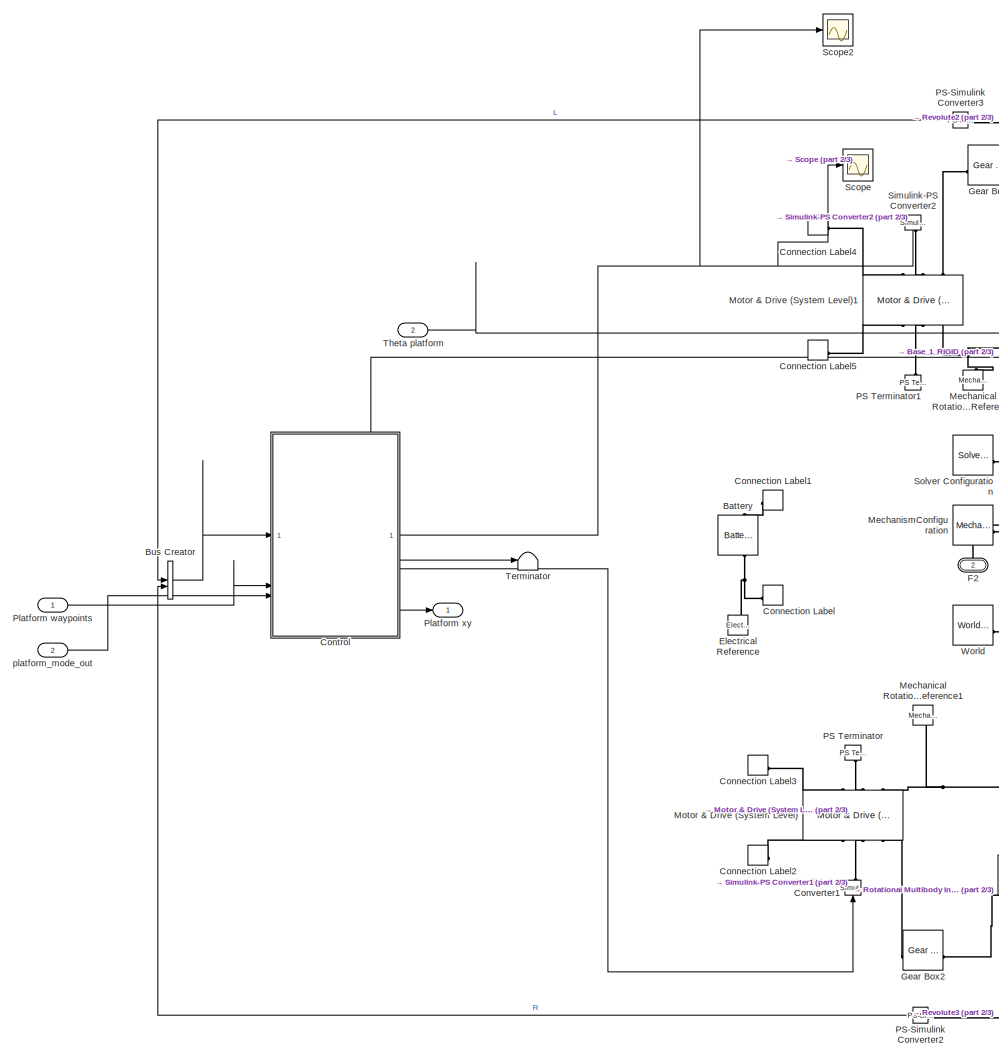
[diagram: Platform - part 1/3, left side, full height]
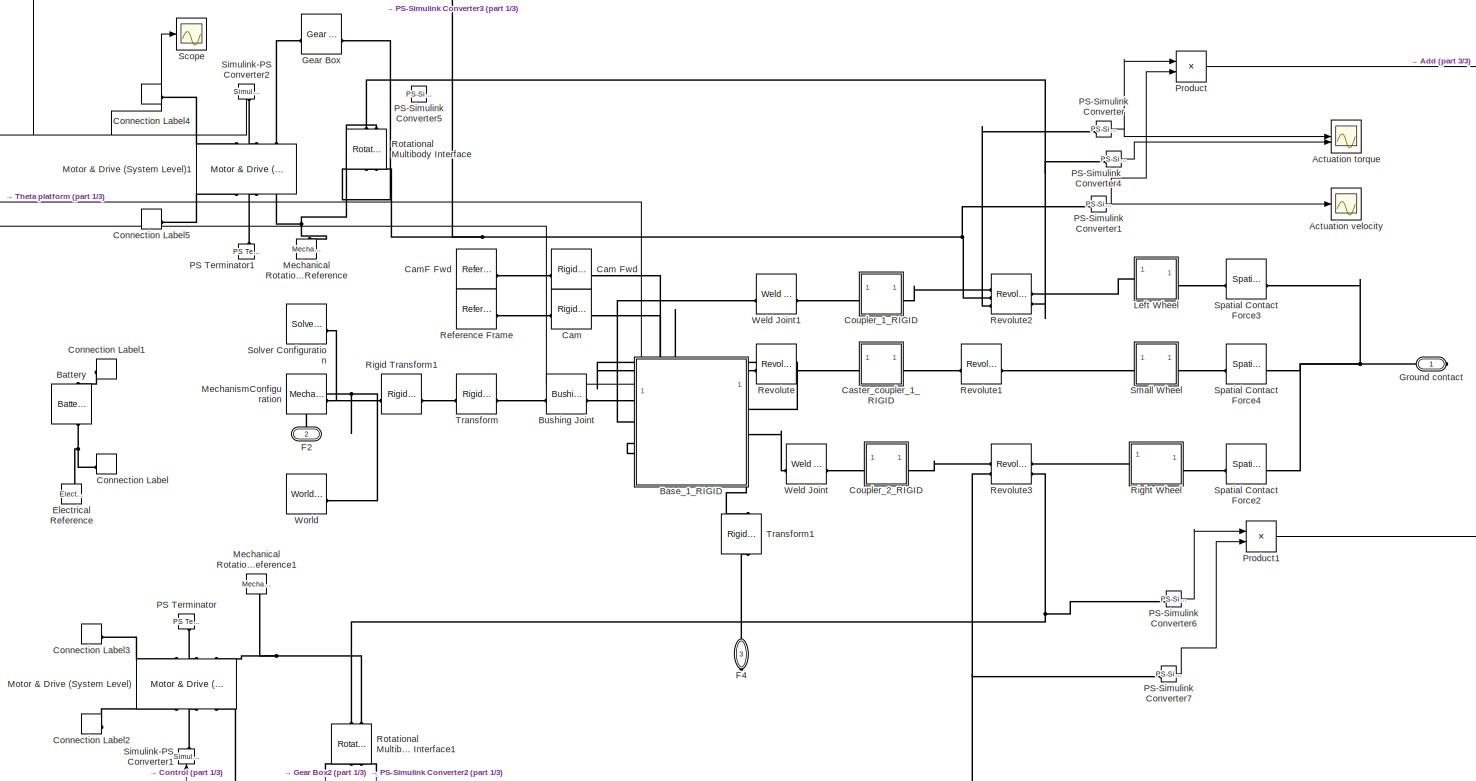
[diagram: Platform - part 2/3, central region]
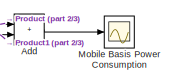
[diagram: Platform - part 3/3, middle right region]
BLOCK [SubSystem] Platform
  PortSchema = {"entries":[{"content":{"sides":[{"content":{"connectorIds":["In1","In2"]},"type":"ConnectorPlacement.EquallySpacedRectSide","uuid":"4ac1efda-dcc9-454e-8ad9-ce8f4f6e0b89"},{"content":{"connectorIds":["RConn1","RConn2"],"side":"RIGHT"},"type":"ConnectorPlacement.EquallySpacedRectSide","uuid":"c7ac7953-1964-411a-9b01-00f16356f779"},{"content":{"connectorIds":["Out1","Out2"],"side":"TOP"},"type":"Con...<+422ch>
BLOCK [Scope] Platform/Actuation torque
  Floating = off
  NumInputPorts = 2
  ScopeSpecificationString = Simulink.scopes.TimeScopeBlockCfg('CurrentConfiguration', extmgr.ConfigurationSet(extmgr.Configuration('Core','General UI',true),extmgr.Configuration('Core','Source UI',true),extmgr.Configuration('Sources','WiredSimulink',true),extmgr.Configuration('Visuals','Time Domain',true,'SerializedDisplays',{struct('MinYLimReal','-1.76341','MaxYLimReal','1.87668','YLabelReal','','MinYLimMag','0.00000','MaxY...<+1435ch>
BLOCK [Scope] Platform/Actuation velocity
  Floating = off
  NumInputPorts = 1
  ScopeSpecificationString = Simulink.scopes.TimeScopeBlockCfg('CurrentConfiguration', extmgr.ConfigurationSet(extmgr.Configuration('Core','General UI',true),extmgr.Configuration('Core','Source UI',true),extmgr.Configuration('Sources','WiredSimulink',true,'DataLoggingVariableName','ScopeData1'),extmgr.Configuration('Visuals','Time Domain',true,'SerializedDisplays',{struct('MinYLimReal','-6.18852','MaxYLimReal','55.54301','YLa...<+1385ch>
BLOCK [Sum] Platform/Add
  IconShape = rectangular
BLOCK [SubSystem] Platform/Base_1_RIGID
  PortSchema = {"entries":[{"content":{"sides":[{"content":{"connectorIds":["LConn1","LConn2","Out1","Out2"]},"type":"ConnectorPlacement.EquallySpacedRectSide","uuid":"915af11b-fe8a-4d36-b5cd-ea91b8047f29"},{"content":{"connectorIds":["RConn1","RConn2","RConn3"],"side":"RIGHT"},"type":"ConnectorPlacement.EquallySpacedRectSide","uuid":"f3343107-e0e0-4658-8996-ee38c7783267"},{"content":{"side":"TOP"},"type":"Conne...<+268ch>
BLOCK [Trigonometry] Platform/Base_1_RIGID/Atan2
  Operator = atan2
BLOCK [PMIOPort] Platform/Base_1_RIGID/Base Origin
  Port = 5
  Side = Right
BLOCK [Demux] Platform/Base_1_RIGID/Demux
  Outputs = 2
BLOCK [PMIOPort] Platform/Base_1_RIGID/F
  Side = Left
BLOCK [PMIOPort] Platform/Base_1_RIGID/F1
  Port = 4
  Side = Right
BLOCK [PMIOPort] Platform/Base_1_RIGID/F3
  Port = 2
  Side = Left
BLOCK [Gain] Platform/Base_1_RIGID/Gain
  Gain = 360/(2*pi)
BLOCK [Mux] Platform/Base_1_RIGID/Mux
  DisplayOption = bar
  Inputs = 3
BLOCK [Outport] Platform/Base_1_RIGID/Out Bus Element
BLOCK [Outport] Platform/Base_1_RIGID/Out Bus Element1
BLOCK [Outport] Platform/Base_1_RIGID/Out Bus Element2
BLOCK [Reference] Platform/Base_1_RIGID/PS-Simulink Converter1  REF=nesl_utility/PS-Simulink
Converter
  SourceBlock = nesl_utility/PS-Simulink\nConverter
  SourceType = PS-Simulink\nConverter
BLOCK [Reference] Platform/Base_1_RIGID/PS-Simulink Converter2  REF=nesl_utility/PS-Simulink
Converter
  SourceBlock = nesl_utility/PS-Simulink\nConverter
  SourceType = PS-Simulink\nConverter
BLOCK [Reference] Platform/Base_1_RIGID/PS-Simulink Converter3  REF=nesl_utility/PS-Simulink
Converter
  SourceBlock = nesl_utility/PS-Simulink\nConverter
  SourceType = PS-Simulink\nConverter
BLOCK [Reference] Platform/Base_1_RIGID/PS-Simulink Converter4  REF=nesl_utility/PS-Simulink
Converter
  SourceBlock = nesl_utility/PS-Simulink\nConverter
  SourceType = PS-Simulink\nConverter
BLOCK [Reference] Platform/Base_1_RIGID/PS-Simulink Converter5  REF=nesl_utility/PS-Simulink
Converter
  SourceBlock = nesl_utility/PS-Simulink\nConverter
  SourceType = PS-Simulink\nConverter
BLOCK [Reference] Platform/Base_1_RIGID/PS-Simulink Converter6  REF=nesl_utility/PS-Simulink
Converter
  SourceBlock = nesl_utility/PS-Simulink\nConverter
  SourceType = PS-Simulink\nConverter
BLOCK [Scope] Platform/Base_1_RIGID/Scope
  Floating = off
  NumInputPorts = 3
  ScopeSpecificationString = Simulink.scopes.TimeScopeBlockCfg('CurrentConfiguration', extmgr.ConfigurationSet(extmgr.Configuration('Core','General UI',true),extmgr.Configuration('Core','Source UI',true),extmgr.Configuration('Sources','WiredSimulink',true,'DataLoggingVariableName','ScopeData2'),extmgr.Configuration('Visuals','Time Domain',true,'SerializedDisplays',{struct('MinYLimReal','-0.61412','MaxYLimReal','5.57189','YLab...<+2793ch>
BLOCK [Scope] Platform/Base_1_RIGID/Scope1
  Floating = off
  NumInputPorts = 1
  ScopeSpecificationString = Simulink.scopes.TimeScopeBlockCfg('CurrentConfiguration', extmgr.ConfigurationSet(extmgr.Configuration('Core','General UI',true),extmgr.Configuration('Core','Source UI',true),extmgr.Configuration('Sources','WiredSimulink',true,'DataLoggingVariableName','ScopeData3'),extmgr.Configuration('Visuals','Time Domain',true,'SerializedDisplays',{struct('MinYLimReal','0.08849','MaxYLimReal','0.09008','YLabe...<+1402ch>
BLOCK [Selector] Platform/Base_1_RIGID/Selector
  IndexOptions = Index vector (dialog),Index vector (dialog)
  Indices = [2,1],1
  InputPortWidth = 3
  NameLocation = top
  NumberOfDimensions = 2
  OutputSizes = 1,1
BLOCK [PMIOPort] Platform/Base_1_RIGID/Small Wheel
  Port = 3
  Side = Right
BLOCK [Reference] Platform/Base_1_RIGID/Solid  REF=sm_lib/Body Elements/File Solid
  SourceBlock = sm_lib/Body Elements/File Solid
  SourceType = File Solid
BLOCK [Sqrt] Platform/Base_1_RIGID/Sqrt
BLOCK [Math] Platform/Base_1_RIGID/Square
  Operator = square
BLOCK [Math] Platform/Base_1_RIGID/Square1
  Operator = square
BLOCK [Sum] Platform/Base_1_RIGID/Sum
  Inputs = |++
BLOCK [Scope] Platform/Base_1_RIGID/Theta
  Floating = off
  NumInputPorts = 1
  ScopeSpecificationString = Simulink.scopes.TimeScopeBlockCfg('CurrentConfiguration', extmgr.ConfigurationSet(extmgr.Configuration('Core','General UI',true),extmgr.Configuration('Core','Source UI',true),extmgr.Configuration('Sources','WiredSimulink',true,'DataLoggingVariableName','ScopeData3'),extmgr.Configuration('Visuals','Time Domain',true,'SerializedDisplays',{struct('MinYLimReal','86.95923','MaxYLimReal','92.50548','YLa...<+1440ch>
BLOCK [Outport] Platform/Base_1_RIGID/Theta Platfrom
  Port = 2
BLOCK [Reference] Platform/Base_1_RIGID/Transform  REF=sm_lib/Frames and
Transforms/Rigid
Transform
  SourceBlock = sm_lib/Frames and\nTransforms/Rigid\nTransform
  SourceType = Rigid\nTransform
BLOCK [Reference] Platform/Base_1_RIGID/Transform Sensor  REF=sm_lib/Frames and
Transforms/Transform
Sensor
  SourceBlock = sm_lib/Frames and\nTransforms/Transform\nSensor
  SourceType = Transform\nSensor
BLOCK [Reference] Platform/Base_1_RIGID/Transform1  REF=sm_lib/Frames and
Transforms/Rigid
Transform
  SourceBlock = sm_lib/Frames and\nTransforms/Rigid\nTransform
  SourceType = Rigid\nTransform
BLOCK [Reference] Platform/Base_1_RIGID/Transform2  REF=sm_lib/Frames and
Transforms/Rigid
Transform
  SourceBlock = sm_lib/Frames and\nTransforms/Rigid\nTransform
  SourceType = Rigid\nTransform
BLOCK [Reference] Platform/Base_1_RIGID/World Frame  REF=sm_lib/Frames and
Transforms/World Frame
  SourceBlock = sm_lib/Frames and\nTransforms/World Frame
  SourceType = World Frame
BLOCK [Reference] Platform/Battery  REF=batteryecm_lib/Battery
  LibrarySourceBlock = ee_lib/Sources/Battery
  NameLocation = right
  SourceBlock = batteryecm_lib/Battery
  SourceType = Battery
BLOCK [BusCreator] Platform/Bus Creator
  DisplayOption = bar
  InheritFromInputs = on
  Inputs = 2
BLOCK [Reference] Platform/Bushing Joint  REF=sm_lib/Joints/Bushing Joint
  SourceBlock = sm_lib/Joints/Bushing Joint
  SourceType = Bushing Joint
BLOCK [Reference] Platform/Cam  REF=sm_lib/Frames and
Transforms/Rigid
Transform
  NameLocation = top
  SourceBlock = sm_lib/Frames and\nTransforms/Rigid\nTransform
  SourceType = Rigid\nTransform
BLOCK [Reference] Platform/Cam Fwd  REF=sm_lib/Frames and
Transforms/Rigid
Transform
  NameLocation = top
  SourceBlock = sm_lib/Frames and\nTransforms/Rigid\nTransform
  SourceType = Rigid\nTransform
BLOCK [Reference] Platform/CamF Fwd  REF=sm_lib/Frames and
Transforms/Reference
Frame
  NameLocation = top
  SourceBlock = sm_lib/Frames and\nTransforms/Reference\nFrame
  SourceType = Reference\nFrame
BLOCK [SubSystem] Platform/Caster_coupler_1_RIGID
BLOCK [PMIOPort] Platform/Caster_coupler_1_RIGID/F
  Side = Left
BLOCK [PMIOPort] Platform/Caster_coupler_1_RIGID/F1
  Port = 2
  Side = Right
BLOCK [Reference] Platform/Caster_coupler_1_RIGID/ReferenceFrame  REF=sm_lib/Frames and
Transforms/Reference
Frame
  SourceBlock = sm_lib/Frames and\nTransforms/Reference\nFrame
  SourceType = Reference\nFrame
BLOCK [Reference] Platform/Caster_coupler_1_RIGID/Solid  REF=sm_lib/Body Elements/File Solid
  SourceBlock = sm_lib/Body Elements/File Solid
  SourceType = File Solid
BLOCK [Reference] Platform/Caster_coupler_1_RIGID/Transform  REF=sm_lib/Frames and
Transforms/Rigid
Transform
  SourceBlock = sm_lib/Frames and\nTransforms/Rigid\nTransform
  SourceType = Rigid\nTransform
BLOCK [Reference] Platform/Caster_coupler_1_RIGID/Transform1  REF=sm_lib/Frames and
Transforms/Rigid
Transform
  SourceBlock = sm_lib/Frames and\nTransforms/Rigid\nTransform
  SourceType = Rigid\nTransform
BLOCK [ConnectionLabel] Platform/Connection Label
  Label = N
BLOCK [ConnectionLabel] Platform/Connection Label1
  Label = P
BLOCK [ConnectionLabel] Platform/Connection Label2
  Label = P
BLOCK [ConnectionLabel] Platform/Connection Label3
  Label = N
BLOCK [ConnectionLabel] Platform/Connection Label4
  Label = P
BLOCK [ConnectionLabel] Platform/Connection Label5
  Label = N
BLOCK [SubSystem] Platform/Control
BLOCK [Clock] Platform/Control/Clock
BLOCK [Constant] Platform/Control/Constant
  Value = [0 0]
BLOCK [Demux] Platform/Control/Demux
  Outputs = 2
BLOCK [Display] Platform/Control/Display
  Decimation = 1
BLOCK [Display] Platform/Control/Display1
  Decimation = 1
BLOCK [Gain] Platform/Control/Gain
  Gain = 3
BLOCK [Inport] Platform/Control/In Bus Element
BLOCK [Inport] Platform/Control/In Bus Element1
BLOCK [Inport] Platform/Control/In Bus Element2
  Port = 2
BLOCK [Inport] Platform/Control/In Bus Element3
  Port = 2
BLOCK [Outport] Platform/Control/Left_Trq
BLOCK [SubSystem] Platform/Control/MATLAB Function
  ErrorFcn = Stateflow.Translate.translate
  LibrarySourceBlock = simulink/User-Defined\nFunctions/MATLAB Function
  PermitHierarchicalResolution = ExplicitOnly
  SFBlockType = MATLAB Function
  TreatAsAtomicUnit = on
BLOCK [Demux] Platform/Control/MATLAB Function/ Demux 
  Outputs = 1
BLOCK [S-Function] Platform/Control/MATLAB Function/ SFunction 
  EnableBusSupport = on
  FunctionName = sf_sfun
  PortCounts = [5 5]
  SFcnIsStateOwnerBlock = off
  SFunctionDeploymentMode = off
  Tag = Stateflow S-Function 2
BLOCK [Terminator] Platform/Control/MATLAB Function/ Terminator 
BLOCK [Inport] Platform/Control/MATLAB Function/ang_vel
  Port = 5
BLOCK [Outport] Platform/Control/MATLAB Function/distanceToRun
  Port = 3
BLOCK [Outport] Platform/Control/MATLAB Function/goal_wL
BLOCK [Outport] Platform/Control/MATLAB Function/goal_wR
  Port = 2
BLOCK [Inport] Platform/Control/MATLAB Function/platform_mode_out
  Port = 3
BLOCK [Inport] Platform/Control/MATLAB Function/target_position
  Port = 2
BLOCK [Inport] Platform/Control/MATLAB Function/velocity
  Port = 4
BLOCK [Outport] Platform/Control/MATLAB Function/velocity_out
  Port = 4
BLOCK [Inport] Platform/Control/MATLAB Function/xy
BLOCK [SubSystem] Platform/Control/MATLAB Function1
  ErrorFcn = Stateflow.Translate.translate
  LibrarySourceBlock = simulink/User-Defined\nFunctions/MATLAB Function
  PermitHierarchicalResolution = ExplicitOnly
  SFBlockType = MATLAB Function
  TreatAsAtomicUnit = on
BLOCK [Demux] Platform/Control/MATLAB Function1/ Demux 
  Outputs = 1
BLOCK [S-Function] Platform/Control/MATLAB Function1/ SFunction 
  EnableBusSupport = on
  FunctionName = sf_sfun
  PortCounts = [5 5]
  SFcnIsStateOwnerBlock = off
  SFunctionDeploymentMode = off
  Tag = Stateflow S-Function 3
BLOCK [Terminator] Platform/Control/MATLAB Function1/ Terminator 
BLOCK [Inport] Platform/Control/MATLAB Function1/ang_vel
  Port = 4
BLOCK [Inport] Platform/Control/MATLAB Function1/current_time
  Port = 5
BLOCK [Outport] Platform/Control/MATLAB Function1/distanceToRun
  Port = 3
BLOCK [Outport] Platform/Control/MATLAB Function1/goal_wL
BLOCK [Outport] Platform/Control/MATLAB Function1/goal_wR
  Port = 2
BLOCK [Inport] Platform/Control/MATLAB Function1/target_position
  Port = 2
BLOCK [Inport] Platform/Control/MATLAB Function1/velocity
  Port = 3
BLOCK [Outport] Platform/Control/MATLAB Function1/velocity_out
  Port = 4
BLOCK [Inport] Platform/Control/MATLAB Function1/xy
BLOCK [Mux] Platform/Control/Mux
  DisplayOption = bar
  Inputs = 2
BLOCK [Mux] Platform/Control/Mux1
  DisplayOption = bar
  Inputs = 2
BLOCK [Mux] Platform/Control/Mux2
  DisplayOption = bar
  Inputs = 2
BLOCK [Constant] Platform/Control/Platform stop Threshold
  Value = 0.3
BLOCK [Inport] Platform/Control/Platform waypoints
  Port = 3
BLOCK [Outport] Platform/Control/Platform xy
  Port = 4
BLOCK [Reference] Platform/Control/Pure Pursuit  REF=robotalgslib/Pure Pursuit
  LibrarySourceBlock = navlib/Control Algorithms/Pure Pursuit
  SourceBlock = robotalgslib/Pure Pursuit
  SourceType = nav.slalgs.internal.PurePursuit
BLOCK [Outport] Platform/Control/Right_Trq
  Port = 2
BLOCK [Scope] Platform/Control/Scope
  Floating = off
  NumInputPorts = 1
  ScopeSpecificationString = Simulink.scopes.TimeScopeBlockCfg('CurrentConfiguration', extmgr.ConfigurationSet(extmgr.Configuration('Core','General UI',true),extmgr.Configuration('Core','Source UI',true),extmgr.Configuration('Sources','WiredSimulink',true,'DataLoggingVariableName','ScopeData1'),extmgr.Configuration('Visuals','Time Domain',true,'SerializedDisplays',{struct('MinYLimReal','0.00174','MaxYLimReal','0.00207','YLabe...<+1455ch>
BLOCK [Scope] Platform/Control/Scope1
  Floating = off
  NumInputPorts = 2
  ScopeSpecificationString = Simulink.scopes.TimeScopeBlockCfg('CurrentConfiguration', extmgr.ConfigurationSet(extmgr.Configuration('Core','General UI',true),extmgr.Configuration('Core','Source UI',true),extmgr.Configuration('Sources','WiredSimulink',true,'DataLoggingVariableName','ScopeData1'),extmgr.Configuration('Visuals','Time Domain',true,'SerializedDisplays',{struct('MinYLimReal','-0.04652','MaxYLimReal','0.41869','YLab...<+1460ch>
BLOCK [Scope] Platform/Control/Scope2
  Floating = off
  NumInputPorts = 1
  ScopeSpecificationString = Simulink.scopes.TimeScopeBlockCfg('CurrentConfiguration', extmgr.ConfigurationSet(extmgr.Configuration('Core','General UI',true),extmgr.Configuration('Core','Source UI',true),extmgr.Configuration('Sources','WiredSimulink',true,'DataLoggingVariableName','ScopeData3'),extmgr.Configuration('Visuals','Time Domain',true,'SerializedDisplays',{struct('MinYLimReal','-0.09607','MaxYLimReal','0.86421','YLab...<+1398ch>
BLOCK [Scope] Platform/Control/Scope3
  Floating = off
  NumInputPorts = 1
  ScopeSpecificationString = Simulink.scopes.TimeScopeBlockCfg('CurrentConfiguration', extmgr.ConfigurationSet(extmgr.Configuration('Core','General UI',true),extmgr.Configuration('Core','Source UI',true),extmgr.Configuration('Sources','WiredSimulink',true,'DataLoggingVariableName','ScopeData2'),extmgr.Configuration('Visuals','Time Domain',true,'SerializedDisplays',{struct('MinYLimReal','-3.64346','MaxYLimReal','8.11626','YLab...<+1397ch>
BLOCK [Scope] Platform/Control/Scope4
  Floating = off
  NumInputPorts = 1
  ScopeSpecificationString = Simulink.scopes.TimeScopeBlockCfg('CurrentConfiguration', extmgr.ConfigurationSet(extmgr.Configuration('Core','General UI',true),extmgr.Configuration('Core','Source UI',true),extmgr.Configuration('Sources','WiredSimulink',true,'DataLoggingVariableName','ScopeData3'),extmgr.Configuration('Visuals','Time Domain',true,'SerializedDisplays',{struct('MinYLimReal','-0.02762','MaxYLimReal','0.04506','YLab...<+1446ch>
BLOCK [Selector] Platform/Control/Selector
  IndexOptions = Index vector (dialog)
  Indices = [1 2]
  InputPortWidth = 3
  NameLocation = top
  OutputSizes = 1
BLOCK [Sum] Platform/Control/Sum1
  Inputs = |+-
BLOCK [Sum] Platform/Control/Sum2
  Inputs = |+-
BLOCK [Switch] Platform/Control/Switch
  Criteria = u2 > Threshold
  InputSameDT = off
  SaturateOnIntegerOverflow = off
  Threshold = 0.5
BLOCK [Scope] Platform/Control/Wheel Speeds
  Floating = off
  NumInputPorts = 2
  ScopeSpecificationString = Simulink.scopes.TimeScopeBlockCfg('CurrentConfiguration', extmgr.ConfigurationSet(extmgr.Configuration('Core','General UI',true),extmgr.Configuration('Core','Source UI',true),extmgr.Configuration('Sources','WiredSimulink',true,'DataLoggingVariableName','ScopeData1'),extmgr.Configuration('Visuals','Time Domain',true,'SerializedDisplays',{struct('MinYLimReal','-2.15809','MaxYLimReal','5.36564','YLab...<+2093ch>
BLOCK [Inport] Platform/Control/platform_mode_out 
  Port = 4
BLOCK [Outport] Platform/Control/stopThreshold
  Port = 3
BLOCK [SubSystem] Platform/Coupler_1_RIGID
BLOCK [PMIOPort] Platform/Coupler_1_RIGID/F
  Side = Left
BLOCK [PMIOPort] Platform/Coupler_1_RIGID/F1
  Port = 2
  Side = Right
BLOCK [Reference] Platform/Coupler_1_RIGID/ReferenceFrame  REF=sm_lib/Frames and
Transforms/Reference
Frame
  SourceBlock = sm_lib/Frames and\nTransforms/Reference\nFrame
  SourceType = Reference\nFrame
BLOCK [Reference] Platform/Coupler_1_RIGID/Solid  REF=sm_lib/Body Elements/File Solid
  SourceBlock = sm_lib/Body Elements/File Solid
  SourceType = File Solid
BLOCK [Reference] Platform/Coupler_1_RIGID/Transform  REF=sm_lib/Frames and
Transforms/Rigid
Transform
  SourceBlock = sm_lib/Frames and\nTransforms/Rigid\nTransform
  SourceType = Rigid\nTransform
BLOCK [Reference] Platform/Coupler_1_RIGID/Transform1  REF=sm_lib/Frames and
Transforms/Rigid
Transform
  SourceBlock = sm_lib/Frames and\nTransforms/Rigid\nTransform
  SourceType = Rigid\nTransform
BLOCK [SubSystem] Platform/Coupler_2_RIGID
BLOCK [PMIOPort] Platform/Coupler_2_RIGID/F
  Side = Left
BLOCK [PMIOPort] Platform/Coupler_2_RIGID/F1
  Port = 2
  Side = Right
BLOCK [Reference] Platform/Coupler_2_RIGID/ReferenceFrame  REF=sm_lib/Frames and
Transforms/Reference
Frame
  SourceBlock = sm_lib/Frames and\nTransforms/Reference\nFrame
  SourceType = Reference\nFrame
BLOCK [Reference] Platform/Coupler_2_RIGID/Solid  REF=sm_lib/Body Elements/File Solid
  SourceBlock = sm_lib/Body Elements/File Solid
  SourceType = File Solid
BLOCK [Reference] Platform/Coupler_2_RIGID/Transform  REF=sm_lib/Frames and
Transforms/Rigid
Transform
  SourceBlock = sm_lib/Frames and\nTransforms/Rigid\nTransform
  SourceType = Rigid\nTransform
BLOCK [Reference] Platform/Coupler_2_RIGID/Transform1  REF=sm_lib/Frames and
Transforms/Rigid
Transform
  SourceBlock = sm_lib/Frames and\nTransforms/Rigid\nTransform
  SourceType = Rigid\nTransform
BLOCK [Reference] Platform/Electrical Reference  REF=fl_lib/Electrical/Electrical Elements/Electrical Reference
  NameLocation = right
  SourceBlock = fl_lib/Electrical/Electrical Elements/Electrical Reference
  SourceType = Electrical Reference
BLOCK [PMIOPort] Platform/F2
  Port = 2
  Side = Right
BLOCK [PMIOPort] Platform/F4
  NameLocation = right
  Port = 3
  Side = Right
BLOCK [Reference] Platform/Gear Box  REF=fl_lib/Mechanical/Mechanisms/Gear Box
  SourceBlock = fl_lib/Mechanical/Mechanisms/Gear Box
  SourceType = Gear Box
BLOCK [Reference] Platform/Gear Box2  REF=fl_lib/Mechanical/Mechanisms/Gear Box
  SourceBlock = fl_lib/Mechanical/Mechanisms/Gear Box
  SourceType = Gear Box
BLOCK [PMIOPort] Platform/Ground contact
  Side = Right
BLOCK [SubSystem] Platform/Left Wheel
BLOCK [PMIOPort] Platform/Left Wheel/F
  Port = 2
  Side = Right
BLOCK [PMIOPort] Platform/Left Wheel/F1
  Side = Left
BLOCK [Reference] Platform/Left Wheel/ReferenceFrame  REF=sm_lib/Frames and
Transforms/Reference
Frame
  SourceBlock = sm_lib/Frames and\nTransforms/Reference\nFrame
  SourceType = Reference\nFrame
BLOCK [Reference] Platform/Left Wheel/Rigid Transform  REF=sm_lib/Frames and
Transforms/Rigid
Transform
  NameLocation = right
  SourceBlock = sm_lib/Frames and\nTransforms/Rigid\nTransform
  SourceType = Rigid\nTransform
BLOCK [Reference] Platform/Left Wheel/Solid  REF=sm_lib/Body Elements/File Solid
  SourceBlock = sm_lib/Body Elements/File Solid
  SourceType = File Solid
BLOCK [PMIOPort] Platform/Left Wheel/Sphere port 1
  Port = 3
  Side = Right
BLOCK [Reference] Platform/Left Wheel/Spherical Solid  REF=sm_lib/Body Elements/Spherical Solid
  SourceBlock = sm_lib/Body Elements/Spherical Solid
  SourceType = Spherical Solid
BLOCK [Reference] Platform/Left Wheel/Transform  REF=sm_lib/Frames and
Transforms/Rigid
Transform
  SourceBlock = sm_lib/Frames and\nTransforms/Rigid\nTransform
  SourceType = Rigid\nTransform
BLOCK [Reference] Platform/Mechanical Rotational Reference  REF=fl_lib/Mechanical/Rotational Elements/Mechanical
Rotational Reference
  NameLocation = right
  SourceBlock = fl_lib/Mechanical/Rotational Elements/Mechanical\nRotational Reference
  SourceType = Mechanical\nRotational Reference
BLOCK [Reference] Platform/Mechanical Rotational Reference1  REF=fl_lib/Mechanical/Rotational Elements/Mechanical
Rotational Reference
  NameLocation = left
  SourceBlock = fl_lib/Mechanical/Rotational Elements/Mechanical\nRotational Reference
  SourceType = Mechanical\nRotational Reference
BLOCK [Reference] Platform/MechanismConfiguration  REF=sm_lib/Utilities/Mechanism
Configuration
  SourceBlock = sm_lib/Utilities/Mechanism\nConfiguration
  SourceType = Mechanism\nConfiguration
BLOCK [Scope] Platform/Mobile Basis Power Consumption
  Floating = off
  NumInputPorts = 1
  ScopeSpecificationString = Simulink.scopes.TimeScopeBlockCfg('CurrentConfiguration', extmgr.ConfigurationSet(extmgr.Configuration('Core','General UI',true),extmgr.Configuration('Core','Source UI',true),extmgr.Configuration('Sources','WiredSimulink',true,'DataLoggingVariableName','ScopeData1'),extmgr.Configuration('Visuals','Time Domain',true,'SerializedDisplays',{struct('MinYLimReal','-13.04548','MaxYLimReal','16.30742','YL...<+1464ch>
BLOCK [Reference] Platform/Motor & Drive (System Level)  REF=ee_lib/Electromechanical/Motor & Drive
(System Level)
  NameLocation = left
  SourceBlock = ee_lib/Electromechanical/Motor & Drive\n(System Level)
  SourceType = Motor & Drive\n(System Level)
BLOCK [Reference] Platform/Motor & Drive (System Level)1  REF=ee_lib/Electromechanical/Motor & Drive
(System Level)
  NameLocation = right
  SourceBlock = ee_lib/Electromechanical/Motor & Drive\n(System Level)
  SourceType = Motor & Drive\n(System Level)
BLOCK [Reference] Platform/PS Terminator  REF=fl_lib/Physical Signals/Sinks/PS Terminator
  NameLocation = right
  SourceBlock = fl_lib/Physical Signals/Sinks/PS Terminator
  SourceType = PS Terminator
BLOCK [Reference] Platform/PS Terminator1  REF=fl_lib/Physical Signals/Sinks/PS Terminator
  NameLocation = left
  SourceBlock = fl_lib/Physical Signals/Sinks/PS Terminator
  SourceType = PS Terminator
BLOCK [Reference] Platform/PS-Simulink Converter  REF=nesl_utility/PS-Simulink
Converter
  SourceBlock = nesl_utility/PS-Simulink\nConverter
  SourceType = PS-Simulink\nConverter
BLOCK [Reference] Platform/PS-Simulink Converter1  REF=nesl_utility/PS-Simulink
Converter
  SourceBlock = nesl_utility/PS-Simulink\nConverter
  SourceType = PS-Simulink\nConverter
BLOCK [Reference] Platform/PS-Simulink Converter2  REF=nesl_utility/PS-Simulink
Converter
  SourceBlock = nesl_utility/PS-Simulink\nConverter
  SourceType = PS-Simulink\nConverter
BLOCK [Reference] Platform/PS-Simulink Converter3  REF=nesl_utility/PS-Simulink
Converter
  SourceBlock = nesl_utility/PS-Simulink\nConverter
  SourceType = PS-Simulink\nConverter
BLOCK [Reference] Platform/PS-Simulink Converter4  REF=nesl_utility/PS-Simulink
Converter
  SourceBlock = nesl_utility/PS-Simulink\nConverter
  SourceType = PS-Simulink\nConverter
BLOCK [Reference] Platform/PS-Simulink Converter5  REF=nesl_utility/PS-Simulink
Converter
  SourceBlock = nesl_utility/PS-Simulink\nConverter
  SourceType = PS-Simulink\nConverter
BLOCK [Reference] Platform/PS-Simulink Converter6  REF=nesl_utility/PS-Simulink
Converter
  SourceBlock = nesl_utility/PS-Simulink\nConverter
  SourceType = PS-Simulink\nConverter
BLOCK [Reference] Platform/PS-Simulink Converter7  REF=nesl_utility/PS-Simulink
Converter
  SourceBlock = nesl_utility/PS-Simulink\nConverter
  SourceType = PS-Simulink\nConverter
BLOCK [Inport] Platform/Platform waypoints
BLOCK [Outport] Platform/Platform xy
BLOCK [Product] Platform/Product
BLOCK [Product] Platform/Product1
BLOCK [Reference] Platform/Reference Frame  REF=sm_lib/Frames and
Transforms/Reference
Frame
  SourceBlock = sm_lib/Frames and\nTransforms/Reference\nFrame
  SourceType = Reference\nFrame
BLOCK [Reference] Platform/Revolute  REF=sm_lib/Joints/Revolute Joint
  SourceBlock = sm_lib/Joints/Revolute Joint
  SourceType = Revolute Joint
BLOCK [Reference] Platform/Revolute1  REF=sm_lib/Joints/Revolute Joint
  SourceBlock = sm_lib/Joints/Revolute Joint
  SourceType = Revolute Joint
BLOCK [Reference] Platform/Revolute2  REF=sm_lib/Joints/Revolute Joint
  SourceBlock = sm_lib/Joints/Revolute Joint
  SourceType = Revolute Joint
BLOCK [Reference] Platform/Revolute3  REF=sm_lib/Joints/Revolute Joint
  SourceBlock = sm_lib/Joints/Revolute Joint
  SourceType = Revolute Joint
BLOCK [SubSystem] Platform/Right Wheel
BLOCK [PMIOPort] Platform/Right Wheel/F
  Port = 2
  Side = Right
BLOCK [PMIOPort] Platform/Right Wheel/F1
  Side = Left
BLOCK [Reference] Platform/Right Wheel/ReferenceFrame  REF=sm_lib/Frames and
Transforms/Reference
Frame
  SourceBlock = sm_lib/Frames and\nTransforms/Reference\nFrame
  SourceType = Reference\nFrame
BLOCK [Reference] Platform/Right Wheel/Rigid Transform  REF=sm_lib/Frames and
Transforms/Rigid
Transform
  NameLocation = right
  SourceBlock = sm_lib/Frames and\nTransforms/Rigid\nTransform
  SourceType = Rigid\nTransform
BLOCK [Reference] Platform/Right Wheel/Solid  REF=sm_lib/Body Elements/File Solid
  SourceBlock = sm_lib/Body Elements/File Solid
  SourceType = File Solid
BLOCK [PMIOPort] Platform/Right Wheel/Sphere  port 2
  NameLocation = right
  Port = 3
  Side = Right
BLOCK [Reference] Platform/Right Wheel/Spherical Solid  REF=sm_lib/Body Elements/Spherical Solid
  SourceBlock = sm_lib/Body Elements/Spherical Solid
  SourceType = Spherical Solid
BLOCK [Reference] Platform/Right Wheel/Transform  REF=sm_lib/Frames and
Transforms/Rigid
Transform
  SourceBlock = sm_lib/Frames and\nTransforms/Rigid\nTransform
  SourceType = Rigid\nTransform
BLOCK [Reference] Platform/Rigid Transform1  REF=sm_lib/Frames and
Transforms/Rigid
Transform
  SourceBlock = sm_lib/Frames and\nTransforms/Rigid\nTransform
  SourceType = Rigid\nTransform
BLOCK [Reference] Platform/Rotational Multibody Interface  REF=fl_lib/Mechanical/Multibody Interfaces/Rotational Multibody
Interface
  NameLocation = left
  SourceBlock = fl_lib/Mechanical/Multibody Interfaces/Rotational Multibody\nInterface
  SourceType = Rotational Multibody\nInterface
BLOCK [Reference] Platform/Rotational Multibody Interface1  REF=fl_lib/Mechanical/Multibody Interfaces/Rotational Multibody
Interface
  NameLocation = left
  SourceBlock = fl_lib/Mechanical/Multibody Interfaces/Rotational Multibody\nInterface
  SourceType = Rotational Multibody\nInterface
BLOCK [Scope] Platform/Scope
  Floating = off
  NumInputPorts = 1
  ScopeSpecificationString = Simulink.scopes.TimeScopeBlockCfg('CurrentConfiguration', extmgr.ConfigurationSet(extmgr.Configuration('Core','General UI',true),extmgr.Configuration('Core','Source UI',true),extmgr.Configuration('Sources','WiredSimulink',true,'DataLoggingVariableName','ScopeData2'),extmgr.Configuration('Visuals','Time Domain',true,'SerializedDisplays',{struct('MinYLimReal','-0.40675','MaxYLimReal','3.57904','YLab...<+1441ch>
BLOCK [Scope] Platform/Scope2
  Floating = off
  NumInputPorts = 1
  ScopeSpecificationString = Simulink.scopes.TimeScopeBlockCfg('CurrentConfiguration', extmgr.ConfigurationSet(extmgr.Configuration('Core','General UI',true),extmgr.Configuration('Core','Source UI',true),extmgr.Configuration('Sources','WiredSimulink',true,'DataLoggingVariableName','ScopeData1'),extmgr.Configuration('Visuals','Time Domain',true,'SerializedDisplays',{struct('MinYLimReal','-1.75581','MaxYLimReal','0.87209','YLab...<+1416ch>
BLOCK [Reference] Platform/Simulink-PS Converter1  REF=nesl_utility/Simulink-PS
Converter
  NameLocation = left
  SourceBlock = nesl_utility/Simulink-PS\nConverter
  SourceType = Simulink-PS\nConverter
BLOCK [Reference] Platform/Simulink-PS Converter2  REF=nesl_utility/Simulink-PS
Converter
  NameLocation = right
  SourceBlock = nesl_utility/Simulink-PS\nConverter
  SourceType = Simulink-PS\nConverter
BLOCK [SubSystem] Platform/Small Wheel
BLOCK [PMIOPort] Platform/Small Wheel/F
  Side = Left
BLOCK [PMIOPort] Platform/Small Wheel/F1
  Port = 2
  Side = Right
BLOCK [Reference] Platform/Small Wheel/ReferenceFrame  REF=sm_lib/Frames and
Transforms/Reference
Frame
  SourceBlock = sm_lib/Frames and\nTransforms/Reference\nFrame
  SourceType = Reference\nFrame
BLOCK [Reference] Platform/Small Wheel/Solid  REF=sm_lib/Body Elements/File Solid
  SourceBlock = sm_lib/Body Elements/File Solid
  SourceType = File Solid
BLOCK [Reference] Platform/Small Wheel/Spherical Solid  REF=sm_lib/Body Elements/Spherical Solid
  SourceBlock = sm_lib/Body Elements/Spherical Solid
  SourceType = Spherical Solid
BLOCK [Reference] Platform/Small Wheel/Transform  REF=sm_lib/Frames and
Transforms/Rigid
Transform
  SourceBlock = sm_lib/Frames and\nTransforms/Rigid\nTransform
  SourceType = Rigid\nTransform
BLOCK [Reference] Platform/Solver Configuration  REF=nesl_utility/Solver
Configuration
  SourceBlock = nesl_utility/Solver\nConfiguration
  SourceType = Solver\nConfiguration
BLOCK [Reference] Platform/Spatial Contact Force2  REF=sm_lib/Forces and
Torques/Spatial
Contact Force
  SourceBlock = sm_lib/Forces and\nTorques/Spatial\nContact Force
  SourceType = Spatial\nContact Force
BLOCK [Reference] Platform/Spatial Contact Force3  REF=sm_lib/Forces and
Torques/Spatial
Contact Force
  SourceBlock = sm_lib/Forces and\nTorques/Spatial\nContact Force
  SourceType = Spatial\nContact Force
BLOCK [Reference] Platform/Spatial Contact Force4  REF=sm_lib/Forces and
Torques/Spatial
Contact Force
  SourceBlock = sm_lib/Forces and\nTorques/Spatial\nContact Force
  SourceType = Spatial\nContact Force
BLOCK [Terminator] Platform/Terminator
BLOCK [Outport] Platform/Theta platform
  Port = 2
BLOCK [Reference] Platform/Transform  REF=sm_lib/Frames and
Transforms/Rigid
Transform
  SourceBlock = sm_lib/Frames and\nTransforms/Rigid\nTransform
  SourceType = Rigid\nTransform
BLOCK [Reference] Platform/Transform1  REF=sm_lib/Frames and
Transforms/Rigid
Transform
  NameLocation = left
  SourceBlock = sm_lib/Frames and\nTransforms/Rigid\nTransform
  SourceType = Rigid\nTransform
BLOCK [Reference] Platform/Weld Joint  REF=sm_lib/Joints/Weld Joint
  SourceBlock = sm_lib/Joints/Weld Joint
  SourceType = Weld Joint
BLOCK [Reference] Platform/Weld Joint1  REF=sm_lib/Joints/Weld Joint
  SourceBlock = sm_lib/Joints/Weld Joint
  SourceType = Weld Joint
BLOCK [Reference] Platform/World  REF=sm_lib/Frames and
Transforms/World Frame
  SourceBlock = sm_lib/Frames and\nTransforms/World Frame
  SourceType = World Frame
BLOCK [Inport] Platform/platform_mode_out
  Port = 2
BLOCK [SubSystem] Road
  PortSchema = {"entries":[{"content":{"sides":[{"content":{"connectorIds":["LConn1"]},"type":"ConnectorPlacement.EquallySpacedRectSide","uuid":"262a7389-5f19-4e57-b137-adc0fe64cf6a"},{"content":{"connectorIds":["RConn1"],"side":"RIGHT"},"type":"ConnectorPlacement.EquallySpacedRectSide","uuid":"0021701d-9431-401f-ab56-f5ab9263888d"},{"content":{"connectorIds":["LConn2","LConn3","LConn4"],"side":"TOP"},"type":"Co...<+271ch>
BLOCK [PMIOPort] Road/CF_CloudPoints1
  Port = 3
  Side = Left
BLOCK [PMIOPort] Road/CF_CloudPoints2
  Port = 4
  Side = Left
BLOCK [PMIOPort] Road/CF_CloudPoints3
  Port = 5
  Side = Left
BLOCK [PMIOPort] Road/F1
  Side = Left
BLOCK [PMIOPort] Road/F2
  Port = 2
  Side = Right
BLOCK [Reference] Road/Grid  REF=grid_element/Grid  (lib defined in slx_16d8daf64c1c, slx_5771955e9ea6, +1 more)
  SourceBlock = grid_element/Grid
  SourceType = Grid
BLOCK [Reference] Road/Infinite Plane  REF=sm_lib/Curves and Surfaces/Infinite Plane
  SourceBlock = sm_lib/Curves and Surfaces/Infinite Plane
  SourceType = Infinite Plane
BLOCK [Reference] Road/Infinite Transform  REF=sm_lib/Frames and
Transforms/Rigid
Transform
  SourceBlock = sm_lib/Frames and\nTransforms/Rigid\nTransform
  SourceType = Rigid\nTransform
BLOCK [Reference] Road/Spatial Contact Force  REF=sm_lib/Forces and
Torques/Spatial
Contact Force
  NameLocation = top
  SourceBlock = sm_lib/Forces and\nTorques/Spatial\nContact Force
  SourceType = Spatial\nContact Force
BLOCK [Reference] Road/Spatial Contact Force1  REF=sm_lib/Forces and
Torques/Spatial
Contact Force
  NameLocation = top
  SourceBlock = sm_lib/Forces and\nTorques/Spatial\nContact Force
  SourceType = Spatial\nContact Force
BLOCK [Reference] Road/Spatial Contact Force2  REF=sm_lib/Forces and
Torques/Spatial
Contact Force
  NameLocation = top
  SourceBlock = sm_lib/Forces and\nTorques/Spatial\nContact Force
  SourceType = Spatial\nContact Force
BLOCK [SubSystem] Small Delay
BLOCK [Inport] Small Delay/In1
  NameLocation = top
  Port = 3
BLOCK [Inport] Small Delay/In2
BLOCK [Inport] Small Delay/In3
  Port = 2
BLOCK [Outport] Small Delay/Out2
  Port = 2
BLOCK [Reshape] Small Delay/Reshape1
  NameLocation = top
  OutputDimensionality = Customize
  OutputDimensions = 9
BLOCK [Reshape] Small Delay/Reshape2
  NameLocation = top
  OutputDimensionality = Customize
  OutputDimensions = [3,3]
BLOCK [SubSystem] Small Delay/Small delay
  NameLocation = top
BLOCK [Demux] Small Delay/Small delay/Demux
  NameLocation = top
  Outputs = 9
BLOCK [Inport] Small Delay/Small delay/In1
  NameLocation = top
BLOCK [Mux] Small Delay/Small delay/Mux
  DisplayOption = bar
  Inputs = 9
  NameLocation = top
BLOCK [Outport] Small Delay/Small delay/Out1
  NameLocation = top
BLOCK [TransferFcn] Small Delay/Small delay/Transfer Fcn
  Denominator = [10^(-6) 1]
  NameLocation = top
BLOCK [TransferFcn] Small Delay/Small delay/Transfer Fcn1
  Denominator = [10^(-6) 1]
  NameLocation = top
BLOCK [TransferFcn] Small Delay/Small delay/Transfer Fcn2
  Denominator = [10^(-6) 1]
  NameLocation = top
BLOCK [TransferFcn] Small Delay/Small delay/Transfer Fcn3
  Denominator = [10^(-6) 1]
  NameLocation = top
BLOCK [TransferFcn] Small Delay/Small delay/Transfer Fcn4
  Denominator = [10^(-6) 1]
  NameLocation = top
BLOCK [TransferFcn] Small Delay/Small delay/Transfer Fcn5
  Denominator = [10^(-6) 1]
  NameLocation = top
BLOCK [TransferFcn] Small Delay/Small delay/Transfer Fcn6
  Denominator = [10^(-6) 1]
  NameLocation = top
BLOCK [TransferFcn] Small Delay/Small delay/Transfer Fcn7
  Denominator = [10^(-6) 1]
  NameLocation = top
BLOCK [TransferFcn] Small Delay/Small delay/Transfer Fcn8
  Denominator = [10^(-6) 1]
  NameLocation = top
BLOCK [SubSystem] Small Delay/Small delay1
  NameLocation = top
BLOCK [Demux] Small Delay/Small delay1/Demux
  NameLocation = top
  Outputs = 2
BLOCK [Inport] Small Delay/Small delay1/In1
  NameLocation = top
BLOCK [Mux] Small Delay/Small delay1/Mux
  DisplayOption = bar
  Inputs = 2
  NameLocation = top
BLOCK [TransferFcn] Small Delay/Small delay1/Transfer Fcn
  Denominator = [10^(-6) 1]
  NameLocation = top
BLOCK [TransferFcn] Small Delay/Small delay1/Transfer Fcn2
  Denominator = [10^(-6) 1]
  NameLocation = top
BLOCK [Outport] Small Delay/Small delay1/platform_xy
  NameLocation = top
BLOCK [TransferFcn] Small Delay/Transfer Fcn3
  Denominator = [10^(-6) 1]
  NameLocation = top
BLOCK [Outport] Small Delay/brick_pick_relative
  Port = 3
BLOCK [Outport] Small Delay/platform_xy
BLOCK [Stop] Stop Simulation
BLOCK [SubSystem] Task Scheduler
  ErrorFcn = Stateflow.Translate.translate
  LibrarySourceBlock = simulink/User-Defined\nFunctions/MATLAB Function
  NameLocation = top
  PermitHierarchicalResolution = ExplicitOnly
  SFBlockType = MATLAB Function
  TreatAsAtomicUnit = on
BLOCK [Demux] Task Scheduler/ Demux 
  Outputs = 1
BLOCK [S-Function] Task Scheduler/ SFunction 
  EnableBusSupport = on
  FunctionName = sf_sfun
  PortCounts = [6 9]
  SFcnIsStateOwnerBlock = off
  SFunctionDeploymentMode = off
  Tag = Stateflow S-Function 1
BLOCK [Terminator] Task Scheduler/ Terminator 
BLOCK [Outport] Task Scheduler/arm_mode_out
  Port = 6
BLOCK [Outport] Task Scheduler/arm_waypoints
  Port = 4
BLOCK [Inport] Task Scheduler/brick_pick_relative
  Port = 4
BLOCK [Inport] Task Scheduler/brick_place_global_xy
  Port = 5
BLOCK [Inport] Task Scheduler/current_time
  Port = 3
BLOCK [Outport] Task Scheduler/endtime_out
  Port = 5
BLOCK [Outport] Task Scheduler/it_brick_out
  Port = 7
BLOCK [Outport] Task Scheduler/platformWaypoints
BLOCK [Inport] Task Scheduler/platform_destination_mat
  Port = 6
BLOCK [Outport] Task Scheduler/platform_mode_out
  Port = 2
BLOCK [Inport] Task Scheduler/platform_orientation
  Port = 2
BLOCK [Inport] Task Scheduler/platform_xy
BLOCK [Outport] Task Scheduler/reset_time_out_arm
  Port = 3
BLOCK [Outport] Task Scheduler/stop_simulation
  Port = 8
ANNOTATION Small Delay: Continuous small delay
LINE Add1:1 -> Arm:1
LINE Arm/Arm acceleration trajectories:1 -> Arm/Trapezoidal Velocity Profile Trajectory Robotic arm:3
LINE Arm/Arm angle trajectories:1 -> Arm/Trapezoidal Velocity Profile Trajectory Robotic arm:1
LINE Arm/Arm velocity trajectories:1 -> Arm/Trapezoidal Velocity Profile Trajectory Robotic arm:2
LINE Arm/Kinova Gen3 Arm/Abs10:1 -> Arm/Kinova Gen3 Arm/Add:5
LINE Arm/Kinova Gen3 Arm/Abs11:1 -> Arm/Kinova Gen3 Arm/Add:4
LINE Arm/Kinova Gen3 Arm/Abs12:1 -> Arm/Kinova Gen3 Arm/Add:6
LINE Arm/Kinova Gen3 Arm/Abs13:1 -> Arm/Kinova Gen3 Arm/Add:1
LINE Arm/Kinova Gen3 Arm/Abs1:1 -> Arm/Kinova Gen3 Arm/Add1:2
LINE Arm/Kinova Gen3 Arm/Abs2:1 -> Arm/Kinova Gen3 Arm/Add1:3
LINE Arm/Kinova Gen3 Arm/Abs3:1 -> Arm/Kinova Gen3 Arm/Add1:4
LINE Arm/Kinova Gen3 Arm/Abs4:1 -> Arm/Kinova Gen3 Arm/Add1:5
LINE Arm/Kinova Gen3 Arm/Abs5:1 -> Arm/Kinova Gen3 Arm/Add1:6
LINE Arm/Kinova Gen3 Arm/Abs6:1 -> Arm/Kinova Gen3 Arm/Add1:1
LINE Arm/Kinova Gen3 Arm/Abs7:1 -> Arm/Kinova Gen3 Arm/Add1:7
LINE Arm/Kinova Gen3 Arm/Abs8:1 -> Arm/Kinova Gen3 Arm/Add:3
LINE Arm/Kinova Gen3 Arm/Abs9:1 -> Arm/Kinova Gen3 Arm/Add:2
LINE Arm/Kinova Gen3 Arm/Acceleration:1 -> Arm/Kinova Gen3 Arm/Demux2:1
LINE Arm/Kinova Gen3 Arm/Add1:1 -> Arm/Kinova Gen3 Arm/Sum:2
LINE Arm/Kinova Gen3 Arm/Add:1 -> Arm/Kinova Gen3 Arm/Sum:1
LINE Arm/Kinova Gen3 Arm/Angle:1 -> Arm/Kinova Gen3 Arm/Demux:1
LINE Arm/Kinova Gen3 Arm/Demux1:1 -> Arm/Kinova Gen3 Arm/Goto7:1
LINE Arm/Kinova Gen3 Arm/Demux1:2 -> Arm/Kinova Gen3 Arm/Goto8:1
LINE Arm/Kinova Gen3 Arm/Demux1:3 -> Arm/Kinova Gen3 Arm/Goto9:1
LINE Arm/Kinova Gen3 Arm/Demux1:4 -> Arm/Kinova Gen3 Arm/Goto10:1
LINE Arm/Kinova Gen3 Arm/Demux1:5 -> Arm/Kinova Gen3 Arm/Goto11:1
LINE Arm/Kinova Gen3 Arm/Demux1:6 -> Arm/Kinova Gen3 Arm/Goto12:1
LINE Arm/Kinova Gen3 Arm/Demux1:7 -> Arm/Kinova Gen3 Arm/Goto13:1
LINE Arm/Kinova Gen3 Arm/Demux1:8 -> Arm/Kinova Gen3 Arm/Goto23:1
LINE Arm/Kinova Gen3 Arm/Demux2:1 -> Arm/Kinova Gen3 Arm/Goto18:1
LINE Arm/Kinova Gen3 Arm/Demux2:2 -> Arm/Kinova Gen3 Arm/Goto19:1
LINE Arm/Kinova Gen3 Arm/Demux2:3 -> Arm/Kinova Gen3 Arm/Goto20:1
LINE Arm/Kinova Gen3 Arm/Demux2:4 -> Arm/Kinova Gen3 Arm/Goto14:1
LINE Arm/Kinova Gen3 Arm/Demux2:5 -> Arm/Kinova Gen3 Arm/Goto15:1
LINE Arm/Kinova Gen3 Arm/Demux2:6 -> Arm/Kinova Gen3 Arm/Goto16:1
LINE Arm/Kinova Gen3 Arm/Demux2:7 -> Arm/Kinova Gen3 Arm/Goto17:1
LINE Arm/Kinova Gen3 Arm/Demux2:8 -> Arm/Kinova Gen3 Arm/Goto25:1
LINE Arm/Kinova Gen3 Arm/Demux4:1 -> Arm/Kinova Gen3 Arm/MATLAB Function:1
LINE Arm/Kinova Gen3 Arm/Demux4:2 -> Arm/Kinova Gen3 Arm/MATLAB Function:2
NET Arm/Kinova Gen3 Arm/Demux:1 -> Arm/Kinova Gen3 Arm/Goto:1, Arm/Kinova Gen3 Arm/Scope3:7
NET Arm/Kinova Gen3 Arm/Demux:2 -> Arm/Kinova Gen3 Arm/Goto1:1, Arm/Kinova Gen3 Arm/Scope3:4
NET Arm/Kinova Gen3 Arm/Demux:3 -> Arm/Kinova Gen3 Arm/Goto2:1, Arm/Kinova Gen3 Arm/Scope3:6
NET Arm/Kinova Gen3 Arm/Demux:4 -> Arm/Kinova Gen3 Arm/Goto3:1, Arm/Kinova Gen3 Arm/Scope3:5
NET Arm/Kinova Gen3 Arm/Demux:5 -> Arm/Kinova Gen3 Arm/Goto4:1, Arm/Kinova Gen3 Arm/Scope3:8
NET Arm/Kinova Gen3 Arm/Demux:6 -> Arm/Kinova Gen3 Arm/Goto5:1, Arm/Kinova Gen3 Arm/Scope3:1
NET Arm/Kinova Gen3 Arm/Demux:7 -> Arm/Kinova Gen3 Arm/Goto6:1, Arm/Kinova Gen3 Arm/Scope3:3
NET Arm/Kinova Gen3 Arm/Demux:8 -> Arm/Kinova Gen3 Arm/Goto21:1, Arm/Kinova Gen3 Arm/Scope3:2
LINE Arm/Kinova Gen3 Arm/EndEffector_Link/Mux:1 -> Arm/Kinova Gen3 Arm/EndEffector_Link/Scope:1
LINE Arm/Kinova Gen3 Arm/EndEffector_Link/PS-Simulink Converter1:1 -> Arm/Kinova Gen3 Arm/EndEffector_Link/Mux:2
LINE Arm/Kinova Gen3 Arm/EndEffector_Link/PS-Simulink Converter2:1 -> Arm/Kinova Gen3 Arm/EndEffector_Link/Mux:3
LINE Arm/Kinova Gen3 Arm/EndEffector_Link/PS-Simulink Converter:1 -> Arm/Kinova Gen3 Arm/EndEffector_Link/Mux:1
LINE Arm/Kinova Gen3 Arm/From10:1 -> Arm/Kinova Gen3 Arm/Simulink-PS Converter1:3
LINE Arm/Kinova Gen3 Arm/From11:1 -> Arm/Kinova Gen3 Arm/Simulink-PS Converter6:2
LINE Arm/Kinova Gen3 Arm/From12:1 -> Arm/Kinova Gen3 Arm/Simulink-PS Converter6:3
LINE Arm/Kinova Gen3 Arm/From13:1 -> Arm/Kinova Gen3 Arm/Simulink-PS Converter5:2
LINE Arm/Kinova Gen3 Arm/From14:1 -> Arm/Kinova Gen3 Arm/Simulink-PS Converter5:3
LINE Arm/Kinova Gen3 Arm/From15:1 -> Arm/Kinova Gen3 Arm/Simulink-PS Converter4:2
LINE Arm/Kinova Gen3 Arm/From16:1 -> Arm/Kinova Gen3 Arm/Simulink-PS Converter4:3
LINE Arm/Kinova Gen3 Arm/From17:1 -> Arm/Kinova Gen3 Arm/Simulink-PS Converter3:2
LINE Arm/Kinova Gen3 Arm/From18:1 -> Arm/Kinova Gen3 Arm/Simulink-PS Converter3:3
LINE Arm/Kinova Gen3 Arm/From19:1 -> Arm/Kinova Gen3 Arm/Simulink-PS Converter2:2
LINE Arm/Kinova Gen3 Arm/From1:1 -> Arm/Kinova Gen3 Arm/Simulink-PS Converter1:1
LINE Arm/Kinova Gen3 Arm/From20:1 -> Arm/Kinova Gen3 Arm/Simulink-PS Converter2:3
LINE Arm/Kinova Gen3 Arm/From24:1 -> Arm/Kinova Gen3 Arm/Simulink-PS Converter8:2
LINE Arm/Kinova Gen3 Arm/From25:1 -> Arm/Kinova Gen3 Arm/Simulink-PS Converter8:3
LINE Arm/Kinova Gen3 Arm/From26:1 -> Arm/Kinova Gen3 Arm/Simulink-PS Converter8:1
LINE Arm/Kinova Gen3 Arm/From2:1 -> Arm/Kinova Gen3 Arm/Simulink-PS Converter6:1
LINE Arm/Kinova Gen3 Arm/From3:1 -> Arm/Kinova Gen3 Arm/Simulink-PS Converter5:1
LINE Arm/Kinova Gen3 Arm/From4:1 -> Arm/Kinova Gen3 Arm/Simulink-PS Converter4:1
LINE Arm/Kinova Gen3 Arm/From5:1 -> Arm/Kinova Gen3 Arm/Simulink-PS Converter3:1
LINE Arm/Kinova Gen3 Arm/From6:1 -> Arm/Kinova Gen3 Arm/Simulink-PS Converter2:1
LINE Arm/Kinova Gen3 Arm/From7:1 -> Arm/Kinova Gen3 Arm/Simulink-PS Converter:2
LINE Arm/Kinova Gen3 Arm/From8:1 -> Arm/Kinova Gen3 Arm/Simulink-PS Converter:3
LINE Arm/Kinova Gen3 Arm/From9:1 -> Arm/Kinova Gen3 Arm/Simulink-PS Converter1:2
LINE Arm/Kinova Gen3 Arm/From:1 -> Arm/Kinova Gen3 Arm/Simulink-PS Converter:1
LINE Arm/Kinova Gen3 Arm/Integrator:1 -> Arm/Kinova Gen3 Arm/Scope7:1
LINE Arm/Kinova Gen3 Arm/MATLAB Function:1 -> Arm/Kinova Gen3 Arm/Simulink-PS Converter10:1
LINE Arm/Kinova Gen3 Arm/MATLAB Function:2 -> Arm/Kinova Gen3 Arm/Simulink-PS Converter11:1
LINE Arm/Kinova Gen3 Arm/MATLAB Function:3 -> Arm/Kinova Gen3 Arm/Simulink-PS Converter12:1
LINE Arm/Kinova Gen3 Arm/PS-Simulink Converter10:1 -> Arm/Kinova Gen3 Arm/Product5:1
LINE Arm/Kinova Gen3 Arm/PS-Simulink Converter11:1 -> Arm/Kinova Gen3 Arm/Product7:1
LINE Arm/Kinova Gen3 Arm/PS-Simulink Converter12:1 -> Arm/Kinova Gen3 Arm/Product7:2
LINE Arm/Kinova Gen3 Arm/PS-Simulink Converter13:1 -> Arm/Kinova Gen3 Arm/Product8:1
LINE Arm/Kinova Gen3 Arm/PS-Simulink Converter14:1 -> Arm/Kinova Gen3 Arm/Product6:2
LINE Arm/Kinova Gen3 Arm/PS-Simulink Converter15:1 -> Arm/Kinova Gen3 Arm/Product6:1
LINE Arm/Kinova Gen3 Arm/PS-Simulink Converter16:1 -> Arm/Kinova Gen3 Arm/Product8:2
LINE Arm/Kinova Gen3 Arm/PS-Simulink Converter17:1 -> Arm/Kinova Gen3 Arm/Product9:1
LINE Arm/Kinova Gen3 Arm/PS-Simulink Converter18:1 -> Arm/Kinova Gen3 Arm/Product9:2
LINE Arm/Kinova Gen3 Arm/PS-Simulink Converter19:1 -> Arm/Kinova Gen3 Arm/Product10:1
LINE Arm/Kinova Gen3 Arm/PS-Simulink Converter1:1 -> Arm/Kinova Gen3 Arm/Product1:2
LINE Arm/Kinova Gen3 Arm/PS-Simulink Converter20:1 -> Arm/Kinova Gen3 Arm/Product10:2
LINE Arm/Kinova Gen3 Arm/PS-Simulink Converter21:1 -> Arm/Kinova Gen3 Arm/Product11:1
LINE Arm/Kinova Gen3 Arm/PS-Simulink Converter22:1 -> Arm/Kinova Gen3 Arm/Product11:2
LINE Arm/Kinova Gen3 Arm/PS-Simulink Converter23:1 -> Arm/Kinova Gen3 Arm/Product12:1
LINE Arm/Kinova Gen3 Arm/PS-Simulink Converter24:1 -> Arm/Kinova Gen3 Arm/Product12:2
LINE Arm/Kinova Gen3 Arm/PS-Simulink Converter25:1 -> Arm/Kinova Gen3 Arm/Product13:1
LINE Arm/Kinova Gen3 Arm/PS-Simulink Converter26:1 -> Arm/Kinova Gen3 Arm/Product13:2
LINE Arm/Kinova Gen3 Arm/PS-Simulink Converter27:1 -> Arm/Kinova Gen3 Arm/Scope4:1
LINE Arm/Kinova Gen3 Arm/PS-Simulink Converter2:1 -> Arm/Kinova Gen3 Arm/Product1:1
LINE Arm/Kinova Gen3 Arm/PS-Simulink Converter3:1 -> Arm/Kinova Gen3 Arm/Product2:2
LINE Arm/Kinova Gen3 Arm/PS-Simulink Converter4:1 -> Arm/Kinova Gen3 Arm/Product2:1
LINE Arm/Kinova Gen3 Arm/PS-Simulink Converter5:1 -> Arm/Kinova Gen3 Arm/Product3:2
LINE Arm/Kinova Gen3 Arm/PS-Simulink Converter6:1 -> Arm/Kinova Gen3 Arm/Product3:1
LINE Arm/Kinova Gen3 Arm/PS-Simulink Converter7:1 -> Arm/Kinova Gen3 Arm/Product4:2
LINE Arm/Kinova Gen3 Arm/PS-Simulink Converter8:1 -> Arm/Kinova Gen3 Arm/Product4:1
LINE Arm/Kinova Gen3 Arm/PS-Simulink Converter9:1 -> Arm/Kinova Gen3 Arm/Product5:2
LINE Arm/Kinova Gen3 Arm/Product10:1 -> Arm/Kinova Gen3 Arm/Abs10:1
LINE Arm/Kinova Gen3 Arm/Product11:1 -> Arm/Kinova Gen3 Arm/Abs11:1
LINE Arm/Kinova Gen3 Arm/Product12:1 -> Arm/Kinova Gen3 Arm/Abs12:1
LINE Arm/Kinova Gen3 Arm/Product13:1 -> Arm/Kinova Gen3 Arm/Abs13:1
LINE Arm/Kinova Gen3 Arm/Product1:1 -> Arm/Kinova Gen3 Arm/Abs1:1
LINE Arm/Kinova Gen3 Arm/Product2:1 -> Arm/Kinova Gen3 Arm/Abs2:1
LINE Arm/Kinova Gen3 Arm/Product3:1 -> Arm/Kinova Gen3 Arm/Abs3:1
LINE Arm/Kinova Gen3 Arm/Product4:1 -> Arm/Kinova Gen3 Arm/Abs4:1
LINE Arm/Kinova Gen3 Arm/Product5:1 -> Arm/Kinova Gen3 Arm/Abs5:1
LINE Arm/Kinova Gen3 Arm/Product6:1 -> Arm/Kinova Gen3 Arm/Abs6:1
LINE Arm/Kinova Gen3 Arm/Product7:1 -> Arm/Kinova Gen3 Arm/Abs7:1
LINE Arm/Kinova Gen3 Arm/Product8:1 -> Arm/Kinova Gen3 Arm/Abs8:1
LINE Arm/Kinova Gen3 Arm/Product9:1 -> Arm/Kinova Gen3 Arm/Abs9:1
NET Arm/Kinova Gen3 Arm/Sum:1 -> Arm/Kinova Gen3 Arm/Integrator:1, Arm/Kinova Gen3 Arm/Scope7:2, Arm/Kinova Gen3 Arm/Simulink-PS Converter13:1
LINE Arm/Kinova Gen3 Arm/Velocity:1 -> Arm/Kinova Gen3 Arm/Demux1:1
LINE Arm/Kinova Gen3 Arm/WJ_switch:1 -> Arm/Kinova Gen3 Arm/Demux4:1
LINE Arm/Trapezoidal Velocity Profile Trajectory Robotic arm:1 -> Arm/Kinova Gen3 Arm:1
LINE Arm/Trapezoidal Velocity Profile Trajectory Robotic arm:2 -> Arm/Kinova Gen3 Arm:2
LINE Arm/Trapezoidal Velocity Profile Trajectory Robotic arm:3 -> Arm/Kinova Gen3 Arm:3
LINE Arm/WJ_switch:1 -> Arm/Kinova Gen3 Arm:4
LINE Clock1:1 -> Add1:1
LINE Clock:1 -> Task Scheduler:3
LINE Constant1:1 -> Task Scheduler:5
LINE Constant2:1 -> Task Scheduler:6
LINE Load/Brick1/Mux:1 -> Load/Brick1/Brick Posi Sen1:1
LINE Load/Brick1/PS-Simulink Converter1:1 -> Load/Brick1/Brick Co:2
LINE Load/Brick1/PS-Simulink Converter2:1 -> Load/Brick1/Brick Co:3
NET Load/Brick1/PS-Simulink Converter3:1 -> Load/Brick1/Mux:1, Load/Brick1/Scope:1
NET Load/Brick1/PS-Simulink Converter4:1 -> Load/Brick1/Mux:2, Load/Brick1/Scope:2
NET Load/Brick1/PS-Simulink Converter5:1 -> Load/Brick1/Mux:3, Load/Brick1/Scope:3
LINE Load/Brick1/PS-Simulink Converter:1 -> Load/Brick1/Brick Co:1
LINE Load/Brick1:1 -> Load/Mux1:1
LINE Load/Brick2/Mux:1 -> Load/Brick2/Brick Posi Sen2:1
LINE Load/Brick2/PS-Simulink Converter1:1 -> Load/Brick2/Brick Co:2
LINE Load/Brick2/PS-Simulink Converter2:1 -> Load/Brick2/Brick Co:3
NET Load/Brick2/PS-Simulink Converter3:1 -> Load/Brick2/Mux:1, Load/Brick2/Scope:1
NET Load/Brick2/PS-Simulink Converter4:1 -> Load/Brick2/Mux:2, Load/Brick2/Scope:2
NET Load/Brick2/PS-Simulink Converter5:1 -> Load/Brick2/Mux:3, Load/Brick2/Scope:3
LINE Load/Brick2/PS-Simulink Converter:1 -> Load/Brick2/Brick Co:1
LINE Load/Brick2:1 -> Load/Mux1:2
LINE Load/Brick3/Mux1:1 -> Load/Brick3/Brick Posi Sen3:1
LINE Load/Brick3/Mux:1 -> Load/Brick3/Display:1
NET Load/Brick3/PS-Simulink Converter1:1 -> Load/Brick3/Brick Co:2, Load/Brick3/Mux:3
NET Load/Brick3/PS-Simulink Converter2:1 -> Load/Brick3/Brick Co:3, Load/Brick3/Mux:2
NET Load/Brick3/PS-Simulink Converter3:1 -> Load/Brick3/Mux1:1, Load/Brick3/Scope:1
NET Load/Brick3/PS-Simulink Converter4:1 -> Load/Brick3/Mux1:2, Load/Brick3/Scope:2
NET Load/Brick3/PS-Simulink Converter5:1 -> Load/Brick3/Mux1:3, Load/Brick3/Scope:3
NET Load/Brick3/PS-Simulink Converter:1 -> Load/Brick3/Brick Co:1, Load/Brick3/Mux:1
LINE Load/Brick3:1 -> Load/Mux1:3
LINE Load/Mux1:1 -> Load/Reshape:1
LINE Load/Reshape:1 -> Load/Transpose:1
LINE Load/Transpose:1 -> Load/Out1:1
LINE Load:1 -> Small Delay:3
LINE Mux:1 -> Arm:4
LINE Platform/Add:1 -> Platform/Mobile Basis Power Consumption:1
NET Platform/Base_1_RIGID/Atan2:1 -> Platform/Base_1_RIGID/Gain:1, Platform/Base_1_RIGID/Mux:3, Platform/Base_1_RIGID/Out Bus Element2:1, Platform/Base_1_RIGID/Scope:3, Platform/Base_1_RIGID/Theta Platfrom:1
LINE Platform/Base_1_RIGID/Demux:1 -> Platform/Base_1_RIGID/Atan2:1
LINE Platform/Base_1_RIGID/Demux:2 -> Platform/Base_1_RIGID/Atan2:2
LINE Platform/Base_1_RIGID/Gain:1 -> Platform/Base_1_RIGID/Theta:1
LINE Platform/Base_1_RIGID/Mux:1 -> Platform/Base_1_RIGID/Out Bus Element:1
NET Platform/Base_1_RIGID/PS-Simulink Converter1:1 -> Platform/Base_1_RIGID/Mux:1, Platform/Base_1_RIGID/Scope:1
NET Platform/Base_1_RIGID/PS-Simulink Converter2:1 -> Platform/Base_1_RIGID/Mux:2, Platform/Base_1_RIGID/Scope:2
LINE Platform/Base_1_RIGID/PS-Simulink Converter3:1 -> Platform/Base_1_RIGID/Square:1
LINE Platform/Base_1_RIGID/PS-Simulink Converter4:1 -> Platform/Base_1_RIGID/Square1:1
LINE Platform/Base_1_RIGID/PS-Simulink Converter5:1 -> Platform/Base_1_RIGID/Selector:1
LINE Platform/Base_1_RIGID/PS-Simulink Converter6:1 -> Platform/Base_1_RIGID/Scope1:1
LINE Platform/Base_1_RIGID/Selector:1 -> Platform/Base_1_RIGID/Demux:1
LINE Platform/Base_1_RIGID/Sqrt:1 -> Platform/Base_1_RIGID/Out Bus Element1:1
LINE Platform/Base_1_RIGID/Square1:1 -> Platform/Base_1_RIGID/Sum:2
LINE Platform/Base_1_RIGID/Square:1 -> Platform/Base_1_RIGID/Sum:1
LINE Platform/Base_1_RIGID/Sum:1 -> Platform/Base_1_RIGID/Sqrt:1
LINE Platform/Base_1_RIGID:1 -> Platform/Control:2
LINE Platform/Base_1_RIGID:2 -> Platform/Theta platform:1
LINE Platform/Bus Creator:1 -> Platform/Control:1
LINE Platform/Control/Clock:1 -> Platform/Control/Switch:2
LINE Platform/Control/Constant:1 -> Platform/Control/Switch:3
LINE Platform/Control/Demux:1 -> Platform/Control/Left_Trq:1
LINE Platform/Control/Demux:2 -> Platform/Control/Right_Trq:1
LINE Platform/Control/Gain:1 -> Platform/Control/Switch:1
NET Platform/Control/In Bus Element1:1 -> Platform/Control/Mux2:2, Platform/Control/Sum1:2
NET Platform/Control/In Bus Element2:1 -> Platform/Control/Display1:1, Platform/Control/Pure Pursuit:1, Platform/Control/Selector:1
LINE Platform/Control/In Bus Element3:1 -> Platform/Control/Scope1:2
NET Platform/Control/In Bus Element:1 -> Platform/Control/Mux1:2, Platform/Control/Sum2:2
NET Platform/Control/MATLAB Function:1 -> Platform/Control/Mux1:1, Platform/Control/Sum2:1
NET Platform/Control/MATLAB Function:2 -> Platform/Control/Mux2:1, Platform/Control/Sum1:1
LINE Platform/Control/MATLAB Function:3 -> Platform/Control/Scope:1
LINE Platform/Control/MATLAB Function:4 -> Platform/Control/Scope1:1
LINE Platform/Control/Mux1:1 -> Platform/Control/Wheel Speeds:1
LINE Platform/Control/Mux2:1 -> Platform/Control/Wheel Speeds:2
LINE Platform/Control/Mux:1 -> Platform/Control/Gain:1
LINE Platform/Control/Platform stop Threshold:1 -> Platform/Control/stopThreshold:1
NET Platform/Control/Platform waypoints:1 -> Platform/Control/Display:1, Platform/Control/MATLAB Function:2, Platform/Control/Pure Pursuit:2
LINE Platform/Control/Pure Pursuit:1 -> Platform/Control/MATLAB Function:4
NET Platform/Control/Pure Pursuit:2 -> Platform/Control/MATLAB Function:5, Platform/Control/Scope2:1, Platform/Control/Scope4:1
NET Platform/Control/Selector:1 -> Platform/Control/MATLAB Function:1, Platform/Control/Platform xy:1
LINE Platform/Control/Sum1:1 -> Platform/Control/Mux:2
NET Platform/Control/Sum2:1 -> Platform/Control/Mux:1, Platform/Control/Scope3:1
LINE Platform/Control/Switch:1 -> Platform/Control/Demux:1
LINE Platform/Control/platform_mode_out :1 -> Platform/Control/MATLAB Function:3
NET Platform/Control:1 -> Platform/Scope2:1, Platform/Scope:1, Platform/Simulink-PS Converter2:1
LINE Platform/Control:2 -> Platform/Simulink-PS Converter1:1
LINE Platform/Control:3 -> Platform/Terminator:1
LINE Platform/Control:4 -> Platform/Platform xy:1
NET Platform/PS-Simulink Converter1:1 -> Platform/Actuation velocity:1, Platform/Product:2
LINE Platform/PS-Simulink Converter2:1 -> Platform/Bus Creator:2
LINE Platform/PS-Simulink Converter3:1 -> Platform/Bus Creator:1
LINE Platform/PS-Simulink Converter4:1 -> Platform/Actuation torque:2
LINE Platform/PS-Simulink Converter6:1 -> Platform/Product1:1
LINE Platform/PS-Simulink Converter7:1 -> Platform/Product1:2
NET Platform/PS-Simulink Converter:1 -> Platform/Actuation torque:1, Platform/Product:1
LINE Platform/Platform waypoints:1 -> Platform/Control:3
LINE Platform/Product1:1 -> Platform/Add:2
LINE Platform/Product:1 -> Platform/Add:1
LINE Platform/platform_mode_out:1 -> Platform/Control:4
LINE Platform:1 -> Small Delay:1
LINE Platform:2 -> Small Delay:2
LINE Small Delay/In1:1 -> Small Delay/Reshape1:1
LINE Small Delay/In2:1 -> Small Delay/Small delay1:1
LINE Small Delay/In3:1 -> Small Delay/Transfer Fcn3:1
LINE Small Delay/Reshape1:1 -> Small Delay/Small delay:1
LINE Small Delay/Reshape2:1 -> Small Delay/brick_pick_relative:1
LINE Small Delay/Small delay/Demux:1 -> Small Delay/Small delay/Transfer Fcn:1
LINE Small Delay/Small delay/Demux:2 -> Small Delay/Small delay/Transfer Fcn2:1
LINE Small Delay/Small delay/Demux:3 -> Small Delay/Small delay/Transfer Fcn1:1
LINE Small Delay/Small delay/Demux:4 -> Small Delay/Small delay/Transfer Fcn3:1
LINE Small Delay/Small delay/Demux:5 -> Small Delay/Small delay/Transfer Fcn5:1
LINE Small Delay/Small delay/Demux:6 -> Small Delay/Small delay/Transfer Fcn4:1
LINE Small Delay/Small delay/Demux:7 -> Small Delay/Small delay/Transfer Fcn6:1
LINE Small Delay/Small delay/Demux:8 -> Small Delay/Small delay/Transfer Fcn8:1
LINE Small Delay/Small delay/Demux:9 -> Small Delay/Small delay/Transfer Fcn7:1
LINE Small Delay/Small delay/In1:1 -> Small Delay/Small delay/Demux:1
LINE Small Delay/Small delay/Mux:1 -> Small Delay/Small delay/Out1:1
LINE Small Delay/Small delay/Transfer Fcn1:1 -> Small Delay/Small delay/Mux:3
LINE Small Delay/Small delay/Transfer Fcn2:1 -> Small Delay/Small delay/Mux:2
LINE Small Delay/Small delay/Transfer Fcn3:1 -> Small Delay/Small delay/Mux:4
LINE Small Delay/Small delay/Transfer Fcn4:1 -> Small Delay/Small delay/Mux:6
LINE Small Delay/Small delay/Transfer Fcn5:1 -> Small Delay/Small delay/Mux:5
LINE Small Delay/Small delay/Transfer Fcn6:1 -> Small Delay/Small delay/Mux:7
LINE Small Delay/Small delay/Transfer Fcn7:1 -> Small Delay/Small delay/Mux:9
LINE Small Delay/Small delay/Transfer Fcn8:1 -> Small Delay/Small delay/Mux:8
LINE Small Delay/Small delay/Transfer Fcn:1 -> Small Delay/Small delay/Mux:1
LINE Small Delay/Small delay1/Demux:1 -> Small Delay/Small delay1/Transfer Fcn:1
LINE Small Delay/Small delay1/Demux:2 -> Small Delay/Small delay1/Transfer Fcn2:1
LINE Small Delay/Small delay1/In1:1 -> Small Delay/Small delay1/Demux:1
LINE Small Delay/Small delay1/Mux:1 -> Small Delay/Small delay1/platform_xy:1
LINE Small Delay/Small delay1/Transfer Fcn2:1 -> Small Delay/Small delay1/Mux:2
LINE Small Delay/Small delay1/Transfer Fcn:1 -> Small Delay/Small delay1/Mux:1
LINE Small Delay/Small delay1:1 -> Small Delay/platform_xy:1
LINE Small Delay/Small delay:1 -> Small Delay/Reshape2:1
LINE Small Delay/Transfer Fcn3:1 -> Small Delay/Out2:1
LINE Small Delay:1 -> Task Scheduler:1
LINE Small Delay:2 -> Task Scheduler:2
LINE Small Delay:3 -> Task Scheduler:4
LINE Task Scheduler:1 -> Platform:1
LINE Task Scheduler:2 -> Platform:2
LINE Task Scheduler:3 -> Add1:2
LINE Task Scheduler:4 -> Arm:2
LINE Task Scheduler:5 -> Arm:3
LINE Task Scheduler:6 -> Mux:1
LINE Task Scheduler:7 -> Mux:2
LINE Task Scheduler:8 -> Stop Simulation:1
PLINE Arm/Kinova Gen3 Arm/Actuator1:LConn1 -- Arm/Kinova Gen3 Arm/base_link:RConn1
PLINE Arm/Kinova Gen3 Arm/Actuator1:LConn2 -- Arm/Kinova Gen3 Arm/Simulink-PS Converter:RConn1
PLINE Arm/Kinova Gen3 Arm/Actuator1:RConn1 -- Arm/Kinova Gen3 Arm/Shoulder_Link:LConn1
PLINE Arm/Kinova Gen3 Arm/Actuator1:RConn2 -- Arm/Kinova Gen3 Arm/PS-Simulink Converter14:LConn1
PLINE Arm/Kinova Gen3 Arm/Actuator1:RConn3 -- Arm/Kinova Gen3 Arm/PS-Simulink Converter15:LConn1
PLINE Arm/Kinova Gen3 Arm/Actuator2:LConn1 -- Arm/Kinova Gen3 Arm/Shoulder_Link:RConn1
PLINE Arm/Kinova Gen3 Arm/Actuator2:LConn2 -- Arm/Kinova Gen3 Arm/Simulink-PS Converter1:RConn1
PLINE Arm/Kinova Gen3 Arm/Actuator2:RConn1 -- Arm/Kinova Gen3 Arm/HalfArm1_Link:LConn1
PLINE Arm/Kinova Gen3 Arm/Actuator2:RConn2 -- Arm/Kinova Gen3 Arm/PS-Simulink Converter1:LConn1
PLINE Arm/Kinova Gen3 Arm/Actuator2:RConn3 -- Arm/Kinova Gen3 Arm/PS-Simulink Converter2:LConn1
PLINE Arm/Kinova Gen3 Arm/Actuator3:LConn1 -- Arm/Kinova Gen3 Arm/HalfArm1_Link:RConn1
PLINE Arm/Kinova Gen3 Arm/Actuator3:LConn2 -- Arm/Kinova Gen3 Arm/Simulink-PS Converter6:RConn1
PLINE Arm/Kinova Gen3 Arm/Actuator3:RConn1 -- Arm/Kinova Gen3 Arm/HalfArm2_Link:LConn1
PLINE Arm/Kinova Gen3 Arm/Actuator3:RConn2 -- Arm/Kinova Gen3 Arm/PS-Simulink Converter3:LConn1
PLINE Arm/Kinova Gen3 Arm/Actuator3:RConn3 -- Arm/Kinova Gen3 Arm/PS-Simulink Converter4:LConn1
PLINE Arm/Kinova Gen3 Arm/Actuator4:LConn1 -- Arm/Kinova Gen3 Arm/HalfArm2_Link:RConn1
PLINE Arm/Kinova Gen3 Arm/Actuator4:LConn2 -- Arm/Kinova Gen3 Arm/Simulink-PS Converter5:RConn1
PLINE Arm/Kinova Gen3 Arm/Actuator4:RConn1 -- Arm/Kinova Gen3 Arm/ForeArm_Link:LConn1
PLINE Arm/Kinova Gen3 Arm/Actuator4:RConn2 -- Arm/Kinova Gen3 Arm/PS-Simulink Converter5:LConn1
PLINE Arm/Kinova Gen3 Arm/Actuator4:RConn3 -- Arm/Kinova Gen3 Arm/PS-Simulink Converter6:LConn1
PLINE Arm/Kinova Gen3 Arm/Actuator5:LConn1 -- Arm/Kinova Gen3 Arm/ForeArm_Link:RConn1
PLINE Arm/Kinova Gen3 Arm/Actuator5:LConn2 -- Arm/Kinova Gen3 Arm/Simulink-PS Converter4:RConn1
PLINE Arm/Kinova Gen3 Arm/Actuator5:RConn1 -- Arm/Kinova Gen3 Arm/Wrist1_Link:LConn1
PLINE Arm/Kinova Gen3 Arm/Actuator5:RConn2 -- Arm/Kinova Gen3 Arm/PS-Simulink Converter7:LConn1
PLINE Arm/Kinova Gen3 Arm/Actuator5:RConn3 -- Arm/Kinova Gen3 Arm/PS-Simulink Converter8:LConn1
PLINE Arm/Kinova Gen3 Arm/Actuator6:LConn1 -- Arm/Kinova Gen3 Arm/Wrist1_Link:RConn1
PLINE Arm/Kinova Gen3 Arm/Actuator6:LConn2 -- Arm/Kinova Gen3 Arm/Simulink-PS Converter3:RConn1
PLINE Arm/Kinova Gen3 Arm/Actuator6:RConn1 -- Arm/Kinova Gen3 Arm/Wrist2_Link:LConn1
PLINE Arm/Kinova Gen3 Arm/Actuator6:RConn2 -- Arm/Kinova Gen3 Arm/PS-Simulink Converter9:LConn1
PLINE Arm/Kinova Gen3 Arm/Actuator6:RConn3 -- Arm/Kinova Gen3 Arm/PS-Simulink Converter10:LConn1
PLINE Arm/Kinova Gen3 Arm/Actuator7:LConn1 -- Arm/Kinova Gen3 Arm/Wrist2_Link:RConn1
PLINE Arm/Kinova Gen3 Arm/Actuator7:LConn2 -- Arm/Kinova Gen3 Arm/Simulink-PS Converter2:RConn1
PLINE Arm/Kinova Gen3 Arm/Actuator7:RConn1 -- Arm/Kinova Gen3 Arm/Bracelet_Link:LConn1
PLINE Arm/Kinova Gen3 Arm/Actuator7:RConn2 -- Arm/Kinova Gen3 Arm/PS-Simulink Converter12:LConn1
PLINE Arm/Kinova Gen3 Arm/Actuator7:RConn3 -- Arm/Kinova Gen3 Arm/PS-Simulink Converter11:LConn1
PNET net1: Arm/Kinova Gen3 Arm/Battery1:LConn1 -- Arm/Kinova Gen3 Arm/Battery2:LConn1 -- Arm/Kinova Gen3 Arm/Battery3:LConn1 -- Arm/Kinova Gen3 Arm/Battery:LConn1 -- Arm/Kinova Gen3 Arm/Dynamic Load:LConn1 -- Arm/Kinova Gen3 Arm/Solver Configuration:RConn1 -- Arm/Kinova Gen3 Arm/Voltage Sensor:LConn1
PNET net2: Arm/Kinova Gen3 Arm/Battery1:RConn1 -- Arm/Kinova Gen3 Arm/Battery2:RConn1 -- Arm/Kinova Gen3 Arm/Battery3:RConn1 -- Arm/Kinova Gen3 Arm/Battery:RConn1 -- Arm/Kinova Gen3 Arm/Dynamic Load:RConn1 -- Arm/Kinova Gen3 Arm/Electrical Reference:LConn1 -- Arm/Kinova Gen3 Arm/Voltage Sensor:RConn2
PNET net3: Arm/Kinova Gen3 Arm/Bracelet_Link/Actuator7_AxisInvTransform:LConn1 -- Arm/Kinova Gen3 Arm/Bracelet_Link/Endeffector_OriginTransform:LConn1 -- Arm/Kinova Gen3 Arm/Bracelet_Link/InertiaOriginTransform:LConn1 -- Arm/Kinova Gen3 Arm/Bracelet_Link/ReferenceFrame:RConn1 -- Arm/Kinova Gen3 Arm/Bracelet_Link/VisualOriginTransform:LConn1
PLINE Arm/Kinova Gen3 Arm/Bracelet_Link/Actuator7_AxisInvTransform:RConn1 -- Arm/Kinova Gen3 Arm/Bracelet_Link/F:RConn1
PLINE Arm/Kinova Gen3 Arm/Bracelet_Link/Endeffector_OriginTransform:RConn1 -- Arm/Kinova Gen3 Arm/Bracelet_Link/F1:RConn1
PLINE Arm/Kinova Gen3 Arm/Bracelet_Link/Inertia:RConn1 -- Arm/Kinova Gen3 Arm/Bracelet_Link/InertiaOriginTransform:RConn1
PLINE Arm/Kinova Gen3 Arm/Bracelet_Link/Visual:RConn1 -- Arm/Kinova Gen3 Arm/Bracelet_Link/VisualOriginTransform:RConn1
PLINE Arm/Kinova Gen3 Arm/Bracelet_Link:RConn1 -- Arm/Kinova Gen3 Arm/Endeffector:LConn1
PLINE Arm/Kinova Gen3 Arm/Dynamic Load:LConn2 -- Arm/Kinova Gen3 Arm/Simulink-PS Converter13:RConn1
PNET net4: Arm/Kinova Gen3 Arm/EndEffector_Link/End effector ball:LConn1 -- Arm/Kinova Gen3 Arm/EndEffector_Link/F:RConn1 -- Arm/Kinova Gen3 Arm/EndEffector_Link/ReferenceFrame:RConn1
PNET net5: Arm/Kinova Gen3 Arm/EndEffector_Link/End effector ball:RConn1 -- Arm/Kinova Gen3 Arm/EndEffector_Link/F1:RConn1 -- Arm/Kinova Gen3 Arm/EndEffector_Link/Spherical Solid:RConn1 -- Arm/Kinova Gen3 Arm/EndEffector_Link/Transform Sensor:RConn1
PLINE Arm/Kinova Gen3 Arm/EndEffector_Link/PS-Simulink Converter1:LConn1 -- Arm/Kinova Gen3 Arm/EndEffector_Link/Transform Sensor:RConn3
PLINE Arm/Kinova Gen3 Arm/EndEffector_Link/PS-Simulink Converter2:LConn1 -- Arm/Kinova Gen3 Arm/EndEffector_Link/Transform Sensor:RConn4
PLINE Arm/Kinova Gen3 Arm/EndEffector_Link/PS-Simulink Converter:LConn1 -- Arm/Kinova Gen3 Arm/EndEffector_Link/Transform Sensor:RConn2
PLINE Arm/Kinova Gen3 Arm/EndEffector_Link/Transform Sensor:LConn1 -- Arm/Kinova Gen3 Arm/EndEffector_Link/World:RConn1
PNET net6: Arm/Kinova Gen3 Arm/EndEffector_Link:LConn1 -- Arm/Kinova Gen3 Arm/Endeffector:RConn1 -- Arm/Kinova Gen3 Arm/robotiq_85_base_link:LConn1
PNET net7: Arm/Kinova Gen3 Arm/EndEffector_Link:LConn2 -- Arm/Kinova Gen3 Arm/Weld Joint1:LConn1 -- Arm/Kinova Gen3 Arm/Weld Joint2:LConn1 -- Arm/Kinova Gen3 Arm/Weld Joint3:LConn1
PNET net8: Arm/Kinova Gen3 Arm/ForeArm_Link/Actuator4_AxisInvTransform:LConn1 -- Arm/Kinova Gen3 Arm/ForeArm_Link/Actuator5_OriginTransform:LConn1 -- Arm/Kinova Gen3 Arm/ForeArm_Link/InertiaOriginTransform:LConn1 -- Arm/Kinova Gen3 Arm/ForeArm_Link/ReferenceFrame:RConn1 -- Arm/Kinova Gen3 Arm/ForeArm_Link/VisualOriginTransform:LConn1
PLINE Arm/Kinova Gen3 Arm/ForeArm_Link/Actuator4_AxisInvTransform:RConn1 -- Arm/Kinova Gen3 Arm/ForeArm_Link/F:RConn1
PLINE Arm/Kinova Gen3 Arm/ForeArm_Link/Actuator5_AxisTransform:LConn1 -- Arm/Kinova Gen3 Arm/ForeArm_Link/Actuator5_OriginTransform:RConn1
PLINE Arm/Kinova Gen3 Arm/ForeArm_Link/Actuator5_AxisTransform:RConn1 -- Arm/Kinova Gen3 Arm/ForeArm_Link/F1:RConn1
PLINE Arm/Kinova Gen3 Arm/ForeArm_Link/Inertia:RConn1 -- Arm/Kinova Gen3 Arm/ForeArm_Link/InertiaOriginTransform:RConn1
PLINE Arm/Kinova Gen3 Arm/ForeArm_Link/Visual:RConn1 -- Arm/Kinova Gen3 Arm/ForeArm_Link/VisualOriginTransform:RConn1
PNET net9: Arm/Kinova Gen3 Arm/HalfArm1_Link/Actuator2_AxisInvTransform:LConn1 -- Arm/Kinova Gen3 Arm/HalfArm1_Link/Actuator3_OriginTransform:LConn1 -- Arm/Kinova Gen3 Arm/HalfArm1_Link/InertiaOriginTransform:LConn1 -- Arm/Kinova Gen3 Arm/HalfArm1_Link/ReferenceFrame:RConn1 -- Arm/Kinova Gen3 Arm/HalfArm1_Link/VisualOriginTransform:LConn1
PLINE Arm/Kinova Gen3 Arm/HalfArm1_Link/Actuator2_AxisInvTransform:RConn1 -- Arm/Kinova Gen3 Arm/HalfArm1_Link/F:RConn1
PLINE Arm/Kinova Gen3 Arm/HalfArm1_Link/Actuator3_AxisTransform:LConn1 -- Arm/Kinova Gen3 Arm/HalfArm1_Link/Actuator3_OriginTransform:RConn1
PLINE Arm/Kinova Gen3 Arm/HalfArm1_Link/Actuator3_AxisTransform:RConn1 -- Arm/Kinova Gen3 Arm/HalfArm1_Link/F1:RConn1
PLINE Arm/Kinova Gen3 Arm/HalfArm1_Link/Inertia:RConn1 -- Arm/Kinova Gen3 Arm/HalfArm1_Link/InertiaOriginTransform:RConn1
PLINE Arm/Kinova Gen3 Arm/HalfArm1_Link/Visual:RConn1 -- Arm/Kinova Gen3 Arm/HalfArm1_Link/VisualOriginTransform:RConn1
PNET net10: Arm/Kinova Gen3 Arm/HalfArm2_Link/Actuator3_AxisInvTransform:LConn1 -- Arm/Kinova Gen3 Arm/HalfArm2_Link/Actuator4_OriginTransform:LConn1 -- Arm/Kinova Gen3 Arm/HalfArm2_Link/InertiaOriginTransform:LConn1 -- Arm/Kinova Gen3 Arm/HalfArm2_Link/ReferenceFrame:RConn1 -- Arm/Kinova Gen3 Arm/HalfArm2_Link/VisualOriginTransform:LConn1
PLINE Arm/Kinova Gen3 Arm/HalfArm2_Link/Actuator3_AxisInvTransform:RConn1 -- Arm/Kinova Gen3 Arm/HalfArm2_Link/F:RConn1
PLINE Arm/Kinova Gen3 Arm/HalfArm2_Link/Actuator4_AxisTransform:LConn1 -- Arm/Kinova Gen3 Arm/HalfArm2_Link/Actuator4_OriginTransform:RConn1
PLINE Arm/Kinova Gen3 Arm/HalfArm2_Link/Actuator4_AxisTransform:RConn1 -- Arm/Kinova Gen3 Arm/HalfArm2_Link/F1:RConn1
PLINE Arm/Kinova Gen3 Arm/HalfArm2_Link/Inertia:RConn1 -- Arm/Kinova Gen3 Arm/HalfArm2_Link/InertiaOriginTransform:RConn1
PLINE Arm/Kinova Gen3 Arm/HalfArm2_Link/Visual:RConn1 -- Arm/Kinova Gen3 Arm/HalfArm2_Link/VisualOriginTransform:RConn1
PNET net11: Arm/Kinova Gen3 Arm/PS Gain:LConn1 -- Arm/Kinova Gen3 Arm/Simulink-PS Converter8:RConn1 -- Arm/Kinova Gen3 Arm/finger_joint:LConn2 -- Arm/Kinova Gen3 Arm/left_inner_knuckle_joint:LConn2 -- Arm/Kinova Gen3 Arm/right_inner_finger_joint:LConn2
PNET net12: Arm/Kinova Gen3 Arm/PS Gain:RConn1 -- Arm/Kinova Gen3 Arm/left_inner_finger_joint:LConn2 -- Arm/Kinova Gen3 Arm/right_inner_knuckle_joint:LConn2 -- Arm/Kinova Gen3 Arm/right_outer_knuckle_joint:LConn2
PLINE Arm/Kinova Gen3 Arm/PS-Simulink Converter13:LConn1 -- Arm/Kinova Gen3 Arm/right_inner_knuckle_joint:RConn2
PLINE Arm/Kinova Gen3 Arm/PS-Simulink Converter16:LConn1 -- Arm/Kinova Gen3 Arm/right_inner_knuckle_joint:RConn3
PLINE Arm/Kinova Gen3 Arm/PS-Simulink Converter17:LConn1 -- Arm/Kinova Gen3 Arm/right_inner_finger_joint:RConn2
PLINE Arm/Kinova Gen3 Arm/PS-Simulink Converter18:LConn1 -- Arm/Kinova Gen3 Arm/right_inner_finger_joint:RConn3
PLINE Arm/Kinova Gen3 Arm/PS-Simulink Converter19:LConn1 -- Arm/Kinova Gen3 Arm/left_inner_knuckle_joint:RConn2
PLINE Arm/Kinova Gen3 Arm/PS-Simulink Converter20:LConn1 -- Arm/Kinova Gen3 Arm/left_inner_knuckle_joint:RConn3
PLINE Arm/Kinova Gen3 Arm/PS-Simulink Converter21:LConn1 -- Arm/Kinova Gen3 Arm/left_inner_finger_joint:RConn2
PLINE Arm/Kinova Gen3 Arm/PS-Simulink Converter22:LConn1 -- Arm/Kinova Gen3 Arm/left_inner_finger_joint:RConn3
PLINE Arm/Kinova Gen3 Arm/PS-Simulink Converter23:LConn1 -- Arm/Kinova Gen3 Arm/finger_joint:RConn2
PLINE Arm/Kinova Gen3 Arm/PS-Simulink Converter24:LConn1 -- Arm/Kinova Gen3 Arm/finger_joint:RConn3
PLINE Arm/Kinova Gen3 Arm/PS-Simulink Converter25:LConn1 -- Arm/Kinova Gen3 Arm/right_outer_knuckle_joint:RConn2
PLINE Arm/Kinova Gen3 Arm/PS-Simulink Converter26:LConn1 -- Arm/Kinova Gen3 Arm/right_outer_knuckle_joint:RConn3
PLINE Arm/Kinova Gen3 Arm/PS-Simulink Converter27:LConn1 -- Arm/Kinova Gen3 Arm/Voltage Sensor:RConn1
PLINE Arm/Kinova Gen3 Arm/Ref Base:RConn1 -- Arm/Kinova Gen3 Arm/Weld Joint:LConn1
PNET net13: Arm/Kinova Gen3 Arm/Shoulder_Link/Actuator1_AxisInvTransform:LConn1 -- Arm/Kinova Gen3 Arm/Shoulder_Link/Actuator2_OriginTransform:LConn1 -- Arm/Kinova Gen3 Arm/Shoulder_Link/InertiaOriginTransform:LConn1 -- Arm/Kinova Gen3 Arm/Shoulder_Link/ReferenceFrame:RConn1 -- Arm/Kinova Gen3 Arm/Shoulder_Link/VisualOriginTransform:LConn1
PLINE Arm/Kinova Gen3 Arm/Shoulder_Link/Actuator1_AxisInvTransform:RConn1 -- Arm/Kinova Gen3 Arm/Shoulder_Link/F:RConn1
PLINE Arm/Kinova Gen3 Arm/Shoulder_Link/Actuator2_AxisTransform:LConn1 -- Arm/Kinova Gen3 Arm/Shoulder_Link/Actuator2_OriginTransform:RConn1
PLINE Arm/Kinova Gen3 Arm/Shoulder_Link/Actuator2_AxisTransform:RConn1 -- Arm/Kinova Gen3 Arm/Shoulder_Link/F1:RConn1
PLINE Arm/Kinova Gen3 Arm/Shoulder_Link/Inertia:RConn1 -- Arm/Kinova Gen3 Arm/Shoulder_Link/InertiaOriginTransform:RConn1
PLINE Arm/Kinova Gen3 Arm/Shoulder_Link/Visual:RConn1 -- Arm/Kinova Gen3 Arm/Shoulder_Link/VisualOriginTransform:RConn1
PLINE Arm/Kinova Gen3 Arm/Simulink-PS Converter10:RConn1 -- Arm/Kinova Gen3 Arm/Weld Joint1:LConn2
PLINE Arm/Kinova Gen3 Arm/Simulink-PS Converter11:RConn1 -- Arm/Kinova Gen3 Arm/Weld Joint2:LConn2
PLINE Arm/Kinova Gen3 Arm/Simulink-PS Converter12:RConn1 -- Arm/Kinova Gen3 Arm/Weld Joint3:LConn2
PLINE Arm/Kinova Gen3 Arm/WJ1_Fport:RConn1 -- Arm/Kinova Gen3 Arm/Weld Joint1:RConn1
PLINE Arm/Kinova Gen3 Arm/WJ2_Fport2:RConn1 -- Arm/Kinova Gen3 Arm/Weld Joint2:RConn1
PLINE Arm/Kinova Gen3 Arm/WJ3_Fport:RConn1 -- Arm/Kinova Gen3 Arm/Weld Joint3:RConn1
PLINE Arm/Kinova Gen3 Arm/Weld Joint:RConn1 -- Arm/Kinova Gen3 Arm/base_link:LConn1
PNET net14: Arm/Kinova Gen3 Arm/Wrist1_Link/Actuator5_AxisInvTransform:LConn1 -- Arm/Kinova Gen3 Arm/Wrist1_Link/Actuator6_OriginTransform:LConn1 -- Arm/Kinova Gen3 Arm/Wrist1_Link/InertiaOriginTransform:LConn1 -- Arm/Kinova Gen3 Arm/Wrist1_Link/ReferenceFrame:RConn1 -- Arm/Kinova Gen3 Arm/Wrist1_Link/VisualOriginTransform:LConn1
PLINE Arm/Kinova Gen3 Arm/Wrist1_Link/Actuator5_AxisInvTransform:RConn1 -- Arm/Kinova Gen3 Arm/Wrist1_Link/F:RConn1
PLINE Arm/Kinova Gen3 Arm/Wrist1_Link/Actuator6_AxisTransform:LConn1 -- Arm/Kinova Gen3 Arm/Wrist1_Link/Actuator6_OriginTransform:RConn1
PLINE Arm/Kinova Gen3 Arm/Wrist1_Link/Actuator6_AxisTransform:RConn1 -- Arm/Kinova Gen3 Arm/Wrist1_Link/F1:RConn1
PLINE Arm/Kinova Gen3 Arm/Wrist1_Link/Inertia:RConn1 -- Arm/Kinova Gen3 Arm/Wrist1_Link/InertiaOriginTransform:RConn1
PLINE Arm/Kinova Gen3 Arm/Wrist1_Link/Visual:RConn1 -- Arm/Kinova Gen3 Arm/Wrist1_Link/VisualOriginTransform:RConn1
PNET net15: Arm/Kinova Gen3 Arm/Wrist2_Link/Actuator6_AxisInvTransform:LConn1 -- Arm/Kinova Gen3 Arm/Wrist2_Link/Actuator7_OriginTransform:LConn1 -- Arm/Kinova Gen3 Arm/Wrist2_Link/InertiaOriginTransform:LConn1 -- Arm/Kinova Gen3 Arm/Wrist2_Link/ReferenceFrame:RConn1 -- Arm/Kinova Gen3 Arm/Wrist2_Link/VisualOriginTransform:LConn1
PLINE Arm/Kinova Gen3 Arm/Wrist2_Link/Actuator6_AxisInvTransform:RConn1 -- Arm/Kinova Gen3 Arm/Wrist2_Link/F:RConn1
PLINE Arm/Kinova Gen3 Arm/Wrist2_Link/Actuator7_AxisTransform:LConn1 -- Arm/Kinova Gen3 Arm/Wrist2_Link/Actuator7_OriginTransform:RConn1
PLINE Arm/Kinova Gen3 Arm/Wrist2_Link/Actuator7_AxisTransform:RConn1 -- Arm/Kinova Gen3 Arm/Wrist2_Link/F1:RConn1
PLINE Arm/Kinova Gen3 Arm/Wrist2_Link/Inertia:RConn1 -- Arm/Kinova Gen3 Arm/Wrist2_Link/InertiaOriginTransform:RConn1
PLINE Arm/Kinova Gen3 Arm/Wrist2_Link/Visual:RConn1 -- Arm/Kinova Gen3 Arm/Wrist2_Link/VisualOriginTransform:RConn1
PLINE Arm/Kinova Gen3 Arm/base_link/Actuator1_AxisTransform:LConn1 -- Arm/Kinova Gen3 Arm/base_link/Actuator1_OriginTransform:RConn1
PLINE Arm/Kinova Gen3 Arm/base_link/Actuator1_AxisTransform:RConn1 -- Arm/Kinova Gen3 Arm/base_link/F1:RConn1
PNET net16: Arm/Kinova Gen3 Arm/base_link/Actuator1_OriginTransform:LConn1 -- Arm/Kinova Gen3 Arm/base_link/F:RConn1 -- Arm/Kinova Gen3 Arm/base_link/InertiaOriginTransform:LConn1 -- Arm/Kinova Gen3 Arm/base_link/ReferenceFrame:RConn1 -- Arm/Kinova Gen3 Arm/base_link/VisualOriginTransform:LConn1
PLINE Arm/Kinova Gen3 Arm/base_link/Inertia:RConn1 -- Arm/Kinova Gen3 Arm/base_link/InertiaOriginTransform:RConn1
PLINE Arm/Kinova Gen3 Arm/base_link/Visual:RConn1 -- Arm/Kinova Gen3 Arm/base_link/VisualOriginTransform:RConn1
PLINE Arm/Kinova Gen3 Arm/finger_joint:LConn1 -- Arm/Kinova Gen3 Arm/robotiq_85_base_link:RConn4
PLINE Arm/Kinova Gen3 Arm/finger_joint:RConn1 -- Arm/Kinova Gen3 Arm/left_outer_knuckle:LConn1
PLINE Arm/Kinova Gen3 Arm/left_inner_finger/F1:RConn1 -- Arm/Kinova Gen3 Arm/left_inner_finger/Point Cloud:RConn1
PLINE Arm/Kinova Gen3 Arm/left_inner_finger/F:RConn1 -- Arm/Kinova Gen3 Arm/left_inner_finger/left_inner_finger_joint_AxisInvTransform:RConn1
PLINE Arm/Kinova Gen3 Arm/left_inner_finger/Inertia:RConn1 -- Arm/Kinova Gen3 Arm/left_inner_finger/InertiaOriginTransform:RConn1
PNET net17: Arm/Kinova Gen3 Arm/left_inner_finger/InertiaOriginTransform:LConn1 -- Arm/Kinova Gen3 Arm/left_inner_finger/ReferenceFrame:RConn1 -- Arm/Kinova Gen3 Arm/left_inner_finger/VisualOriginTransform:LConn1 -- Arm/Kinova Gen3 Arm/left_inner_finger/left_inner_finger_joint_AxisInvTransform:LConn1
PNET net18: Arm/Kinova Gen3 Arm/left_inner_finger/Point Cloud:LConn1 -- Arm/Kinova Gen3 Arm/left_inner_finger/Visual:RConn1 -- Arm/Kinova Gen3 Arm/left_inner_finger/VisualOriginTransform:RConn1
PLINE Arm/Kinova Gen3 Arm/left_inner_finger:LConn1 -- Arm/Kinova Gen3 Arm/left_inner_finger_joint:RConn1
PLINE Arm/Kinova Gen3 Arm/left_inner_finger_joint:LConn1 -- Arm/Kinova Gen3 Arm/left_inner_knuckle:RConn1
PLINE Arm/Kinova Gen3 Arm/left_inner_knuckle/F1:RConn1 -- Arm/Kinova Gen3 Arm/left_inner_knuckle/left_inner_finger_joint_AxisTransform:RConn1
PLINE Arm/Kinova Gen3 Arm/left_inner_knuckle/F:RConn1 -- Arm/Kinova Gen3 Arm/left_inner_knuckle/left_inner_knuckle_joint_AxisInvTransform:RConn1
PLINE Arm/Kinova Gen3 Arm/left_inner_knuckle/Inertia:RConn1 -- Arm/Kinova Gen3 Arm/left_inner_knuckle/InertiaOriginTransform:RConn1
PNET net19: Arm/Kinova Gen3 Arm/left_inner_knuckle/InertiaOriginTransform:LConn1 -- Arm/Kinova Gen3 Arm/left_inner_knuckle/ReferenceFrame:RConn1 -- Arm/Kinova Gen3 Arm/left_inner_knuckle/VisualOriginTransform:LConn1 -- Arm/Kinova Gen3 Arm/left_inner_knuckle/left_inner_finger_joint_OriginTransform:LConn1 -- Arm/Kinova Gen3 Arm/left_inner_knuckle/left_inner_knuckle_joint_AxisInvTransform:LConn1
PLINE Arm/Kinova Gen3 Arm/left_inner_knuckle/Visual:RConn1 -- Arm/Kinova Gen3 Arm/left_inner_knuckle/VisualOriginTransform:RConn1
PLINE Arm/Kinova Gen3 Arm/left_inner_knuckle/left_inner_finger_joint_AxisTransform:LConn1 -- Arm/Kinova Gen3 Arm/left_inner_knuckle/left_inner_finger_joint_OriginTransform:RConn1
PLINE Arm/Kinova Gen3 Arm/left_inner_knuckle:LConn1 -- Arm/Kinova Gen3 Arm/left_inner_knuckle_joint:RConn1
PLINE Arm/Kinova Gen3 Arm/left_inner_knuckle_joint:LConn1 -- Arm/Kinova Gen3 Arm/robotiq_85_base_link:RConn3
PNET net20: Arm/Kinova Gen3 Arm/left_outer_finger/F:RConn1 -- Arm/Kinova Gen3 Arm/left_outer_finger/InertiaOriginTransform:LConn1 -- Arm/Kinova Gen3 Arm/left_outer_finger/ReferenceFrame:RConn1 -- Arm/Kinova Gen3 Arm/left_outer_finger/VisualOriginTransform:LConn1
PLINE Arm/Kinova Gen3 Arm/left_outer_finger/Inertia:RConn1 -- Arm/Kinova Gen3 Arm/left_outer_finger/InertiaOriginTransform:RConn1
PLINE Arm/Kinova Gen3 Arm/left_outer_finger/Visual:RConn1 -- Arm/Kinova Gen3 Arm/left_outer_finger/VisualOriginTransform:RConn1
PLINE Arm/Kinova Gen3 Arm/left_outer_finger:LConn1 -- Arm/Kinova Gen3 Arm/left_outer_finger_joint:RConn1
PLINE Arm/Kinova Gen3 Arm/left_outer_finger_joint:LConn1 -- Arm/Kinova Gen3 Arm/left_outer_knuckle:RConn1
PLINE Arm/Kinova Gen3 Arm/left_outer_knuckle/F1:RConn1 -- Arm/Kinova Gen3 Arm/left_outer_knuckle/left_outer_finger_joint_OriginTransform:RConn1
PLINE Arm/Kinova Gen3 Arm/left_outer_knuckle/F:RConn1 -- Arm/Kinova Gen3 Arm/left_outer_knuckle/finger_joint_AxisInvTransform:RConn1
PLINE Arm/Kinova Gen3 Arm/left_outer_knuckle/Inertia:RConn1 -- Arm/Kinova Gen3 Arm/left_outer_knuckle/InertiaOriginTransform:RConn1
PNET net21: Arm/Kinova Gen3 Arm/left_outer_knuckle/InertiaOriginTransform:LConn1 -- Arm/Kinova Gen3 Arm/left_outer_knuckle/ReferenceFrame:RConn1 -- Arm/Kinova Gen3 Arm/left_outer_knuckle/VisualOriginTransform:LConn1 -- Arm/Kinova Gen3 Arm/left_outer_knuckle/finger_joint_AxisInvTransform:LConn1 -- Arm/Kinova Gen3 Arm/left_outer_knuckle/left_outer_finger_joint_OriginTransform:LConn1
PLINE Arm/Kinova Gen3 Arm/left_outer_knuckle/Visual:RConn1 -- Arm/Kinova Gen3 Arm/left_outer_knuckle/VisualOriginTransform:RConn1
PLINE Arm/Kinova Gen3 Arm/right_inner_finger/F1:RConn1 -- Arm/Kinova Gen3 Arm/right_inner_finger/Point Cloud:RConn1
PLINE Arm/Kinova Gen3 Arm/right_inner_finger/F:RConn1 -- Arm/Kinova Gen3 Arm/right_inner_finger/right_inner_finger_joint_AxisInvTransform:RConn1
PLINE Arm/Kinova Gen3 Arm/right_inner_finger/Inertia:RConn1 -- Arm/Kinova Gen3 Arm/right_inner_finger/InertiaOriginTransform:RConn1
PNET net22: Arm/Kinova Gen3 Arm/right_inner_finger/InertiaOriginTransform:LConn1 -- Arm/Kinova Gen3 Arm/right_inner_finger/ReferenceFrame:RConn1 -- Arm/Kinova Gen3 Arm/right_inner_finger/VisualOriginTransform:LConn1 -- Arm/Kinova Gen3 Arm/right_inner_finger/right_inner_finger_joint_AxisInvTransform:LConn1
PNET net23: Arm/Kinova Gen3 Arm/right_inner_finger/Point Cloud:LConn1 -- Arm/Kinova Gen3 Arm/right_inner_finger/Visual:RConn1 -- Arm/Kinova Gen3 Arm/right_inner_finger/VisualOriginTransform:RConn1
PLINE Arm/Kinova Gen3 Arm/right_inner_finger:LConn1 -- Arm/Kinova Gen3 Arm/right_inner_finger_joint:RConn1
PLINE Arm/Kinova Gen3 Arm/right_inner_finger_joint:LConn1 -- Arm/Kinova Gen3 Arm/right_inner_knuckle:RConn1
PLINE Arm/Kinova Gen3 Arm/right_inner_knuckle/F1:RConn1 -- Arm/Kinova Gen3 Arm/right_inner_knuckle/right_inner_finger_joint_AxisTransform:RConn1
PLINE Arm/Kinova Gen3 Arm/right_inner_knuckle/F:RConn1 -- Arm/Kinova Gen3 Arm/right_inner_knuckle/right_inner_knuckle_joint_AxisInvTransform:RConn1
PLINE Arm/Kinova Gen3 Arm/right_inner_knuckle/Inertia:RConn1 -- Arm/Kinova Gen3 Arm/right_inner_knuckle/InertiaOriginTransform:RConn1
PNET net24: Arm/Kinova Gen3 Arm/right_inner_knuckle/InertiaOriginTransform:LConn1 -- Arm/Kinova Gen3 Arm/right_inner_knuckle/ReferenceFrame:RConn1 -- Arm/Kinova Gen3 Arm/right_inner_knuckle/VisualOriginTransform:LConn1 -- Arm/Kinova Gen3 Arm/right_inner_knuckle/right_inner_finger_joint_OriginTransform:LConn1 -- Arm/Kinova Gen3 Arm/right_inner_knuckle/right_inner_knuckle_joint_AxisInvTransform:LConn1
PLINE Arm/Kinova Gen3 Arm/right_inner_knuckle/Visual:RConn1 -- Arm/Kinova Gen3 Arm/right_inner_knuckle/VisualOriginTransform:RConn1
PLINE Arm/Kinova Gen3 Arm/right_inner_knuckle/right_inner_finger_joint_AxisTransform:LConn1 -- Arm/Kinova Gen3 Arm/right_inner_knuckle/right_inner_finger_joint_OriginTransform:RConn1
PLINE Arm/Kinova Gen3 Arm/right_inner_knuckle:LConn1 -- Arm/Kinova Gen3 Arm/right_inner_knuckle_joint:RConn1
PLINE Arm/Kinova Gen3 Arm/right_inner_knuckle_joint:LConn1 -- Arm/Kinova Gen3 Arm/robotiq_85_base_link:RConn2
PNET net25: Arm/Kinova Gen3 Arm/right_outer_finger/F:RConn1 -- Arm/Kinova Gen3 Arm/right_outer_finger/InertiaOriginTransform:LConn1 -- Arm/Kinova Gen3 Arm/right_outer_finger/ReferenceFrame:RConn1 -- Arm/Kinova Gen3 Arm/right_outer_finger/VisualOriginTransform:LConn1
PLINE Arm/Kinova Gen3 Arm/right_outer_finger/Inertia:RConn1 -- Arm/Kinova Gen3 Arm/right_outer_finger/InertiaOriginTransform:RConn1
PLINE Arm/Kinova Gen3 Arm/right_outer_finger/Visual:RConn1 -- Arm/Kinova Gen3 Arm/right_outer_finger/VisualOriginTransform:RConn1
PLINE Arm/Kinova Gen3 Arm/right_outer_finger:LConn1 -- Arm/Kinova Gen3 Arm/right_outer_finger_joint:RConn1
PLINE Arm/Kinova Gen3 Arm/right_outer_finger_joint:LConn1 -- Arm/Kinova Gen3 Arm/right_outer_knuckle:RConn1
PLINE Arm/Kinova Gen3 Arm/right_outer_knuckle/F1:RConn1 -- Arm/Kinova Gen3 Arm/right_outer_knuckle/right_outer_finger_joint_OriginTransform:RConn1
PLINE Arm/Kinova Gen3 Arm/right_outer_knuckle/F:RConn1 -- Arm/Kinova Gen3 Arm/right_outer_knuckle/right_outer_knuckle_joint_AxisInvTransform:RConn1
PLINE Arm/Kinova Gen3 Arm/right_outer_knuckle/Inertia:RConn1 -- Arm/Kinova Gen3 Arm/right_outer_knuckle/InertiaOriginTransform:RConn1
PNET net26: Arm/Kinova Gen3 Arm/right_outer_knuckle/InertiaOriginTransform:LConn1 -- Arm/Kinova Gen3 Arm/right_outer_knuckle/ReferenceFrame:RConn1 -- Arm/Kinova Gen3 Arm/right_outer_knuckle/VisualOriginTransform:LConn1 -- Arm/Kinova Gen3 Arm/right_outer_knuckle/right_outer_finger_joint_OriginTransform:LConn1 -- Arm/Kinova Gen3 Arm/right_outer_knuckle/right_outer_knuckle_joint_AxisInvTransform:LConn1
PLINE Arm/Kinova Gen3 Arm/right_outer_knuckle/Visual:RConn1 -- Arm/Kinova Gen3 Arm/right_outer_knuckle/VisualOriginTransform:RConn1
PLINE Arm/Kinova Gen3 Arm/right_outer_knuckle:LConn1 -- Arm/Kinova Gen3 Arm/right_outer_knuckle_joint:RConn1
PLINE Arm/Kinova Gen3 Arm/right_outer_knuckle_joint:LConn1 -- Arm/Kinova Gen3 Arm/robotiq_85_base_link:RConn1
PLINE Arm/Kinova Gen3 Arm/robotiq_85_base_link/F1:RConn1 -- Arm/Kinova Gen3 Arm/robotiq_85_base_link/finger_joint_AxisTransform:RConn1
PLINE Arm/Kinova Gen3 Arm/robotiq_85_base_link/F2:RConn1 -- Arm/Kinova Gen3 Arm/robotiq_85_base_link/left_inner_knuckle_joint_AxisTransform:RConn1
PLINE Arm/Kinova Gen3 Arm/robotiq_85_base_link/F3:RConn1 -- Arm/Kinova Gen3 Arm/robotiq_85_base_link/right_inner_knuckle_joint_AxisTransform:RConn1
PLINE Arm/Kinova Gen3 Arm/robotiq_85_base_link/F4:RConn1 -- Arm/Kinova Gen3 Arm/robotiq_85_base_link/right_outer_knuckle_joint_AxisTransform:RConn1
PNET net27: Arm/Kinova Gen3 Arm/robotiq_85_base_link/F:RConn1 -- Arm/Kinova Gen3 Arm/robotiq_85_base_link/InertiaOriginTransform:LConn1 -- Arm/Kinova Gen3 Arm/robotiq_85_base_link/ReferenceFrame:RConn1 -- Arm/Kinova Gen3 Arm/robotiq_85_base_link/VisualOriginTransform:LConn1 -- Arm/Kinova Gen3 Arm/robotiq_85_base_link/finger_joint_OriginTransform:LConn1 -- Arm/Kinova Gen3 Arm/robotiq_85_base_link/left_inner_knuckle_joint_OriginTransform:LConn1 -- Arm/Kinova Gen3 Arm/robotiq_85_base_link/right_inner_knuckle_joint_OriginTransform:LConn1 -- Arm/Kinova Gen3 Arm/robotiq_85_base_link/right_outer_knuckle_joint_OriginTransform:LConn1
PLINE Arm/Kinova Gen3 Arm/robotiq_85_base_link/Inertia:RConn1 -- Arm/Kinova Gen3 Arm/robotiq_85_base_link/InertiaOriginTransform:RConn1
PLINE Arm/Kinova Gen3 Arm/robotiq_85_base_link/Visual:RConn1 -- Arm/Kinova Gen3 Arm/robotiq_85_base_link/VisualOriginTransform:RConn1
PLINE Arm/Kinova Gen3 Arm/robotiq_85_base_link/finger_joint_AxisTransform:LConn1 -- Arm/Kinova Gen3 Arm/robotiq_85_base_link/finger_joint_OriginTransform:RConn1
PLINE Arm/Kinova Gen3 Arm/robotiq_85_base_link/left_inner_knuckle_joint_AxisTransform:LConn1 -- Arm/Kinova Gen3 Arm/robotiq_85_base_link/left_inner_knuckle_joint_OriginTransform:RConn1
PLINE Arm/Kinova Gen3 Arm/robotiq_85_base_link/right_inner_knuckle_joint_AxisTransform:LConn1 -- Arm/Kinova Gen3 Arm/robotiq_85_base_link/right_inner_knuckle_joint_OriginTransform:RConn1
PLINE Arm/Kinova Gen3 Arm/robotiq_85_base_link/right_outer_knuckle_joint_AxisTransform:LConn1 -- Arm/Kinova Gen3 Arm/robotiq_85_base_link/right_outer_knuckle_joint_OriginTransform:RConn1
PLINE Arm/Kinova Gen3 Arm:LConn1 -- Arm/Ref Base:RConn1
PLINE Arm/Kinova Gen3 Arm:RConn1 -- Arm/WJ1_Fport:RConn1
PLINE Arm/Kinova Gen3 Arm:RConn2 -- Arm/WJ2_Fport:RConn1
PLINE Arm/Kinova Gen3 Arm:RConn3 -- Arm/WJ2_Fport1:RConn1
PNET net28: Arm:LConn1 -- Connection Label14:LConn1 -- Platform:RConn3
PLINE Arm:LConn2 -- Connection Label12:LConn1
PLINE Arm:LConn3 -- Connection Label7:LConn1
PLINE Arm:LConn4 -- Connection Label8:LConn1
PNET net29: Connection Label10:LConn1 -- Platform:RConn2 -- Road:RConn1
PLINE Connection Label15:LConn1 -- Load:RConn1
PLINE Connection Label17:LConn1 -- Load:LConn4
PLINE Connection Label18:LConn1 -- Load:LConn3
PLINE Connection Label1:LConn1 -- Load:LConn6
PLINE Connection Label20:LConn1 -- Load:LConn2
PLINE Connection Label2:LConn1 -- Road:LConn4
PLINE Connection Label3:LConn1 -- Load:LConn7
PLINE Connection Label4:LConn1 -- Road:LConn3
PLINE Connection Label5:LConn1 -- Load:LConn5
PLINE Connection Label6:LConn1 -- Road:LConn2
PLINE Connection Label9:LConn1 -- Load:LConn1
PLINE Load/Brick1/6-DOF Joint1:LConn1 -- Load/Brick1/Rigid Transform1:RConn1
PNET net30: Load/Brick1/6-DOF Joint1:RConn1 -- Load/Brick1/Brick Solid1:RConn1 -- Load/Brick1/Brick ball ref place:RConn1 -- Load/Brick1/Point Cloud:LConn1 -- Load/Brick1/Spherical Solid:RConn1 -- Load/Brick1/Transform Sensor1:RConn1 -- Load/Brick1/Transform Sensor:RConn1 -- Load/Brick1/WJ_B1:RConn1
PLINE Load/Brick1/Brick Solid1:LConn1 -- Load/Brick1/CF_CP_B13:RConn1
PLINE Load/Brick1/CF_CloudPoints:RConn1 -- Load/Brick1/Point Cloud:RConn1
PLINE Load/Brick1/PS-Simulink Converter1:LConn1 -- Load/Brick1/Transform Sensor:RConn3
PLINE Load/Brick1/PS-Simulink Converter2:LConn1 -- Load/Brick1/Transform Sensor:RConn4
PLINE Load/Brick1/PS-Simulink Converter3:LConn1 -- Load/Brick1/Transform Sensor1:RConn2
PLINE Load/Brick1/PS-Simulink Converter4:LConn1 -- Load/Brick1/Transform Sensor1:RConn3
PLINE Load/Brick1/PS-Simulink Converter5:LConn1 -- Load/Brick1/Transform Sensor1:RConn4
PLINE Load/Brick1/PS-Simulink Converter:LConn1 -- Load/Brick1/Transform Sensor:RConn2
PLINE Load/Brick1/Ref Base:RConn1 -- Load/Brick1/Transform Sensor1:LConn1
PLINE Load/Brick1/Ref:RConn1 -- Load/Brick1/Rigid Transform1:LConn1
PLINE Load/Brick1/Transform Sensor:LConn1 -- Load/Brick1/World:RConn1
PNET net31: Load/Brick1:LConn1 -- Load/Brick2:LConn1 -- Load/Brick3:LConn4 -- Load/Ref:RConn1
PNET net32: Load/Brick1:LConn2 -- Load/Brick3:LConn3 -- Load/CF_CloudPoints:RConn1
PLINE Load/Brick1:LConn3 -- Load/WJ_B1:RConn1
PNET net33: Load/Brick1:LConn4 -- Load/Brick2:LConn4 -- Load/Brick3:LConn6 -- Load/Ref Base:RConn1
PLINE Load/Brick1:RConn1 -- Load/Brick3:RConn2
PLINE Load/Brick2/6-DOF Joint1:LConn1 -- Load/Brick2/Rigid Transform1:RConn1
PNET net34: Load/Brick2/6-DOF Joint1:RConn1 -- Load/Brick2/Brick Solid1:RConn1 -- Load/Brick2/Brick ball ref place:RConn1 -- Load/Brick2/Point Cloud:LConn1 -- Load/Brick2/Spherical Solid:RConn1 -- Load/Brick2/Transform Sensor1:RConn1 -- Load/Brick2/Transform Sensor:RConn1 -- Load/Brick2/Weld_Joint:RConn1
PLINE Load/Brick2/Brick Solid1:LConn1 -- Load/Brick2/CF_CP_B23:RConn1
PLINE Load/Brick2/CF_CloudPoints:RConn1 -- Load/Brick2/Point Cloud:RConn1
PLINE Load/Brick2/PS-Simulink Converter1:LConn1 -- Load/Brick2/Transform Sensor:RConn3
PLINE Load/Brick2/PS-Simulink Converter2:LConn1 -- Load/Brick2/Transform Sensor:RConn4
PLINE Load/Brick2/PS-Simulink Converter3:LConn1 -- Load/Brick2/Transform Sensor1:RConn2
PLINE Load/Brick2/PS-Simulink Converter4:LConn1 -- Load/Brick2/Transform Sensor1:RConn3
PLINE Load/Brick2/PS-Simulink Converter5:LConn1 -- Load/Brick2/Transform Sensor1:RConn4
PLINE Load/Brick2/PS-Simulink Converter:LConn1 -- Load/Brick2/Transform Sensor:RConn2
PLINE Load/Brick2/Ref Base:RConn1 -- Load/Brick2/Transform Sensor1:LConn1
PLINE Load/Brick2/Ref:RConn1 -- Load/Brick2/Rigid Transform1:LConn1
PLINE Load/Brick2/Transform Sensor:LConn1 -- Load/Brick2/World:RConn1
PNET net35: Load/Brick2:LConn2 -- Load/Brick3:LConn2 -- Load/CF_CloudPoints1:RConn1
PLINE Load/Brick2:LConn3 -- Load/Weld_Joint:RConn1
PLINE Load/Brick2:RConn1 -- Load/Brick3:RConn1
PLINE Load/Brick3/6-DOF Joint1:LConn1 -- Load/Brick3/Rigid Transform1:RConn1
PNET net36: Load/Brick3/6-DOF Joint1:RConn1 -- Load/Brick3/Brick Solid1:RConn1 -- Load/Brick3/Brick ball ref place:RConn1 -- Load/Brick3/Point Cloud:LConn1 -- Load/Brick3/Spherical Solid:RConn1 -- Load/Brick3/Transform Sensor1:RConn1 -- Load/Brick3/Transform Sensor:RConn1 -- Load/Brick3/Weld_Joint:RConn1
PNET net37: Load/Brick3/Brick Solid1:LConn1 -- Load/Brick3/Spatial Contact Force2:LConn1 -- Load/Brick3/Spatial Contact Force3:LConn1
PLINE Load/Brick3/CF_CP_B13:RConn1 -- Load/Brick3/Spatial Contact Force1:RConn1
PLINE Load/Brick3/CF_CP_B23:RConn1 -- Load/Brick3/Spatial Contact Force:RConn1
PNET net38: Load/Brick3/CF_CloudPoints:RConn1 -- Load/Brick3/Point Cloud:RConn1 -- Load/Brick3/Spatial Contact Force1:LConn1 -- Load/Brick3/Spatial Contact Force:LConn1
PLINE Load/Brick3/PS-Simulink Converter1:LConn1 -- Load/Brick3/Transform Sensor:RConn3
PLINE Load/Brick3/PS-Simulink Converter2:LConn1 -- Load/Brick3/Transform Sensor:RConn4
PLINE Load/Brick3/PS-Simulink Converter3:LConn1 -- Load/Brick3/Transform Sensor1:RConn2
PLINE Load/Brick3/PS-Simulink Converter4:LConn1 -- Load/Brick3/Transform Sensor1:RConn3
PLINE Load/Brick3/PS-Simulink Converter5:LConn1 -- Load/Brick3/Transform Sensor1:RConn4
PLINE Load/Brick3/PS-Simulink Converter:LConn1 -- Load/Brick3/Transform Sensor:RConn2
PLINE Load/Brick3/PtCl1:RConn1 -- Load/Brick3/Spatial Contact Force3:RConn1
PLINE Load/Brick3/PtCl2:RConn1 -- Load/Brick3/Spatial Contact Force2:RConn1
PLINE Load/Brick3/Ref Base:RConn1 -- Load/Brick3/Transform Sensor1:LConn1
PLINE Load/Brick3/Ref:RConn1 -- Load/Brick3/Rigid Transform1:LConn1
PLINE Load/Brick3/Transform Sensor:LConn1 -- Load/Brick3/World:RConn1
PLINE Load/Brick3:LConn1 -- Load/Weld_Joint1:RConn1
PLINE Load/Brick3:LConn5 -- Load/CF_CloudPoints2:RConn1
PNET net39: Platform/Base_1_RIGID/Base Origin:RConn1 -- Platform/Base_1_RIGID/F3:RConn1 -- Platform/Base_1_RIGID/Solid:RConn1 -- Platform/Base_1_RIGID/Transform Sensor:RConn1 -- Platform/Base_1_RIGID/Transform1:LConn1 -- Platform/Base_1_RIGID/Transform2:LConn1 -- Platform/Base_1_RIGID/Transform:LConn1
PLINE Platform/Base_1_RIGID/F1:RConn1 -- Platform/Base_1_RIGID/Transform1:RConn1
PLINE Platform/Base_1_RIGID/F:RConn1 -- Platform/Base_1_RIGID/Transform:RConn1
PLINE Platform/Base_1_RIGID/PS-Simulink Converter1:LConn1 -- Platform/Base_1_RIGID/Transform Sensor:RConn3
PLINE Platform/Base_1_RIGID/PS-Simulink Converter2:LConn1 -- Platform/Base_1_RIGID/Transform Sensor:RConn4
PLINE Platform/Base_1_RIGID/PS-Simulink Converter3:LConn1 -- Platform/Base_1_RIGID/Transform Sensor:RConn6
PLINE Platform/Base_1_RIGID/PS-Simulink Converter4:LConn1 -- Platform/Base_1_RIGID/Transform Sensor:RConn7
PLINE Platform/Base_1_RIGID/PS-Simulink Converter5:LConn1 -- Platform/Base_1_RIGID/Transform Sensor:RConn2
PLINE Platform/Base_1_RIGID/PS-Simulink Converter6:LConn1 -- Platform/Base_1_RIGID/Transform Sensor:RConn5
PLINE Platform/Base_1_RIGID/Small Wheel:RConn1 -- Platform/Base_1_RIGID/Transform2:RConn1
PLINE Platform/Base_1_RIGID/Transform Sensor:LConn1 -- Platform/Base_1_RIGID/World Frame:RConn1
PLINE Platform/Base_1_RIGID:LConn1 -- Platform/Weld Joint1:LConn1
PNET net40: Platform/Base_1_RIGID:LConn2 -- Platform/Bushing Joint:RConn1 -- Platform/Cam Fwd:LConn1 -- Platform/Cam:LConn1
PLINE Platform/Base_1_RIGID:RConn1 -- Platform/Revolute:LConn1
PLINE Platform/Base_1_RIGID:RConn2 -- Platform/Weld Joint:LConn1
PLINE Platform/Base_1_RIGID:RConn3 -- Platform/Transform1:LConn1
PLINE Platform/Battery:LConn1 -- Platform/Connection Label1:LConn1
PNET net41: Platform/Battery:RConn1 -- Platform/Connection Label:LConn1 -- Platform/Electrical Reference:LConn1
PLINE Platform/Bushing Joint:LConn1 -- Platform/Transform:RConn1
PLINE Platform/Cam Fwd:RConn1 -- Platform/CamF Fwd:RConn1
PLINE Platform/Cam:RConn1 -- Platform/Reference Frame:RConn1
PLINE Platform/Caster_coupler_1_RIGID/F1:RConn1 -- Platform/Caster_coupler_1_RIGID/Transform1:RConn1
PLINE Platform/Caster_coupler_1_RIGID/F:RConn1 -- Platform/Caster_coupler_1_RIGID/Transform:RConn1
PNET net42: Platform/Caster_coupler_1_RIGID/ReferenceFrame:RConn1 -- Platform/Caster_coupler_1_RIGID/Solid:RConn1 -- Platform/Caster_coupler_1_RIGID/Transform1:LConn1 -- Platform/Caster_coupler_1_RIGID/Transform:LConn1
PLINE Platform/Caster_coupler_1_RIGID:LConn1 -- Platform/Revolute:RConn1
PLINE Platform/Caster_coupler_1_RIGID:RConn1 -- Platform/Revolute1:LConn1
PLINE Platform/Connection Label2:LConn1 -- Platform/Motor & Drive (System Level):LConn1
PLINE Platform/Connection Label3:LConn1 -- Platform/Motor & Drive (System Level):RConn1
PLINE Platform/Connection Label4:LConn1 -- Platform/Motor & Drive (System Level)1:LConn1
PLINE Platform/Connection Label5:LConn1 -- Platform/Motor & Drive (System Level)1:RConn1
PLINE Platform/Coupler_1_RIGID/F1:RConn1 -- Platform/Coupler_1_RIGID/Transform1:RConn1
PLINE Platform/Coupler_1_RIGID/F:RConn1 -- Platform/Coupler_1_RIGID/Transform:RConn1
PNET net43: Platform/Coupler_1_RIGID/ReferenceFrame:RConn1 -- Platform/Coupler_1_RIGID/Solid:RConn1 -- Platform/Coupler_1_RIGID/Transform1:LConn1 -- Platform/Coupler_1_RIGID/Transform:LConn1
PLINE Platform/Coupler_1_RIGID:LConn1 -- Platform/Weld Joint1:RConn1
PLINE Platform/Coupler_1_RIGID:RConn1 -- Platform/Revolute2:RConn1
PLINE Platform/Coupler_2_RIGID/F1:RConn1 -- Platform/Coupler_2_RIGID/Transform1:RConn1
PLINE Platform/Coupler_2_RIGID/F:RConn1 -- Platform/Coupler_2_RIGID/Transform:RConn1
PNET net44: Platform/Coupler_2_RIGID/ReferenceFrame:RConn1 -- Platform/Coupler_2_RIGID/Solid:RConn1 -- Platform/Coupler_2_RIGID/Transform1:LConn1 -- Platform/Coupler_2_RIGID/Transform:LConn1
PLINE Platform/Coupler_2_RIGID:LConn1 -- Platform/Weld Joint:RConn1
PLINE Platform/Coupler_2_RIGID:RConn1 -- Platform/Revolute3:RConn1
PNET net45: Platform/F2:RConn1 -- Platform/MechanismConfiguration:RConn1 -- Platform/Rigid Transform1:LConn1 -- Platform/Solver Configuration:RConn1 -- Platform/World:RConn1
PLINE Platform/F4:RConn1 -- Platform/Transform1:RConn1
PLINE Platform/Gear Box2:LConn1 -- Platform/Motor & Drive (System Level):LConn3
PLINE Platform/Gear Box2:RConn1 -- Platform/Rotational Multibody Interface1:RConn2
PLINE Platform/Gear Box:LConn1 -- Platform/Motor & Drive (System Level)1:LConn3
PLINE Platform/Gear Box:RConn1 -- Platform/Rotational Multibody Interface:RConn2
PNET net46: Platform/Ground contact:RConn1 -- Platform/Spatial Contact Force2:LConn1 -- Platform/Spatial Contact Force3:LConn1 -- Platform/Spatial Contact Force4:LConn1
PLINE Platform/Left Wheel/F1:RConn1 -- Platform/Left Wheel/Spherical Solid:LConn1
PLINE Platform/Left Wheel/F:RConn1 -- Platform/Left Wheel/Transform:RConn1
PNET net47: Platform/Left Wheel/ReferenceFrame:RConn1 -- Platform/Left Wheel/Rigid Transform:LConn1 -- Platform/Left Wheel/Solid:RConn1 -- Platform/Left Wheel/Transform:LConn1
PNET net48: Platform/Left Wheel/Rigid Transform:RConn1 -- Platform/Left Wheel/Sphere port 1:RConn1 -- Platform/Left Wheel/Spherical Solid:RConn1
PLINE Platform/Left Wheel:LConn1 -- Platform/Spatial Contact Force3:RConn1
PLINE Platform/Left Wheel:RConn1 -- Platform/Revolute2:LConn1
PNET net49: Platform/Mechanical Rotational Reference1:LConn1 -- Platform/Motor & Drive (System Level):RConn3 -- Platform/Rotational Multibody Interface1:LConn2
PNET net50: Platform/Mechanical Rotational Reference:LConn1 -- Platform/Motor & Drive (System Level)1:RConn3 -- Platform/Rotational Multibody Interface:LConn2
PLINE Platform/Motor & Drive (System Level)1:LConn2 -- Platform/Simulink-PS Converter2:RConn1
PLINE Platform/Motor & Drive (System Level)1:RConn2 -- Platform/PS Terminator1:LConn1
PLINE Platform/Motor & Drive (System Level):LConn2 -- Platform/Simulink-PS Converter1:RConn1
PLINE Platform/Motor & Drive (System Level):RConn2 -- Platform/PS Terminator:LConn1
PNET net51: Platform/PS-Simulink Converter1:LConn1 -- Platform/PS-Simulink Converter3:LConn1 -- Platform/Revolute2:RConn2 -- Platform/Rotational Multibody Interface:RConn1
PNET net52: Platform/PS-Simulink Converter2:LConn1 -- Platform/PS-Simulink Converter7:LConn1 -- Platform/Revolute3:RConn2 -- Platform/Rotational Multibody Interface1:RConn1
PNET net53: Platform/PS-Simulink Converter4:LConn1 -- Platform/Revolute2:LConn2 -- Platform/Rotational Multibody Interface:LConn1
PNET net54: Platform/PS-Simulink Converter6:LConn1 -- Platform/Revolute3:LConn2 -- Platform/Rotational Multibody Interface1:LConn1
PLINE Platform/PS-Simulink Converter:LConn1 -- Platform/Revolute2:RConn3
PLINE Platform/Revolute1:RConn1 -- Platform/Small Wheel:LConn1
PLINE Platform/Revolute3:LConn1 -- Platform/Right Wheel:RConn1
PLINE Platform/Right Wheel/F1:RConn1 -- Platform/Right Wheel/Spherical Solid:LConn1
PLINE Platform/Right Wheel/F:RConn1 -- Platform/Right Wheel/Transform:RConn1
PNET net55: Platform/Right Wheel/ReferenceFrame:RConn1 -- Platform/Right Wheel/Rigid Transform:LConn1 -- Platform/Right Wheel/Solid:RConn1 -- Platform/Right Wheel/Transform:LConn1
PNET net56: Platform/Right Wheel/Rigid Transform:RConn1 -- Platform/Right Wheel/Sphere  port 2:RConn1 -- Platform/Right Wheel/Spherical Solid:RConn1
PLINE Platform/Right Wheel:LConn1 -- Platform/Spatial Contact Force2:RConn1
PLINE Platform/Rigid Transform1:RConn1 -- Platform/Transform:LConn1
PLINE Platform/Small Wheel/F1:RConn1 -- Platform/Small Wheel/Spherical Solid:LConn1
PLINE Platform/Small Wheel/F:RConn1 -- Platform/Small Wheel/Transform:RConn1
PNET net57: Platform/Small Wheel/ReferenceFrame:RConn1 -- Platform/Small Wheel/Solid:RConn1 -- Platform/Small Wheel/Spherical Solid:RConn1 -- Platform/Small Wheel/Transform:LConn1
PLINE Platform/Small Wheel:RConn1 -- Platform/Spatial Contact Force4:RConn1
PLINE Platform:RConn1 -- Road:LConn1
PLINE Road/CF_CloudPoints1:RConn1 -- Road/Spatial Contact Force:RConn1
PLINE Road/CF_CloudPoints2:RConn1 -- Road/Spatial Contact Force1:RConn1
PLINE Road/CF_CloudPoints3:RConn1 -- Road/Spatial Contact Force2:RConn1
PNET net58: Road/F1:RConn1 -- Road/Infinite Plane:RConn1 -- Road/Spatial Contact Force1:LConn1 -- Road/Spatial Contact Force2:LConn1 -- Road/Spatial Contact Force:LConn1
PLINE Road/F2:RConn1 -- Road/Infinite Transform:LConn1
PNET net59: Road/Grid:RConn1 -- Road/Infinite Plane:LConn1 -- Road/Infinite Transform:RConn1
note: NET lines group one-source signal fan-out (src -> all destinations, sorted); 1:1 wires keep LINE; PNET lines group multi-terminal physical nets as a canonical sorted terminal list (undirected conserving connections); 2-terminal nets keep the pairwise PLINE form
CHART Task Scheduler states=1 transitions=1
  STATE_LABEL 'eML_blk_kernel()'
  STATE_LABEL 'SCRIPT:\nfunction [platformWaypoints,platform_mode_out, reset_time_out_arm,arm_waypoints, endtime_out,arm_mode_out, it_brick_out,stop_simulation] ...\n    = task_scheduler(platform_xy,platform_orientation, current_time, brick_pick_relative, brick_place_global_xy, platform_destination_mat)\n\n%-------------- Inputs ------------------------------------------------------\n% platform_xy: Platform position ...<+3608ch>'
CHART Platform/Control/MATLAB Function states=1 transitions=1
  STATE_LABEL 'eML_blk_kernel()'
  STATE_LABEL "SCRIPT:\nfunction [goal_wL, goal_wR, distanceToRun,velocity_out] = wheelVelocity(xy,target_position,platform_mode_out, velocity, ang_vel)\n    wheelRadius=0.08;\n    trackWidth=0.6124;\n    stop = 0;\n    % Slow the robot down when it's near the threshold with triangular\n    % velocity profile\n    distanceToRun = norm(target_position(end, :) - xy');\n    distance_to_stop = 5*0.25/2;\n    if distanceToRun...<+494ch>"
CHART Platform/Control/MATLAB Function1 states=1 transitions=1
  STATE_LABEL 'eML_blk_kernel()'
  STATE_LABEL "SCRIPT:\nfunction [goal_wL, goal_wR, distanceToRun,velocity_out] = wheelVelocity(xy,target_position,velocity, ang_vel, current_time)\n    wheelRadius=0.06;\n    slowThreshold= 2;  %Distance to target where velocity should be reduced\n    stopThreshold=0.1; %Target reached\n    trackWidth=0.0925;\n    stop = 1;\n    % Slow the robot down when it's near the threshold\n    distanceToRun = norm(target_positio...<+825ch>"
CHART Arm/Kinova Gen3 Arm/MATLAB Function states=1 transitions=1
  STATE_LABEL 'eML_blk_kernel()'
  STATE_LABEL 'SCRIPT:\nfunction [mode1,mode2,mode3]= fcn(arm_mode,brick_iterator)\nmode1 = -1;\nmode2 = -1;\nmode3 = -1;\nif arm_mode >= 5 && arm_mode <= 9 \n    if brick_iterator == 1\n        mode1 = 0;\n    elseif brick_iterator == 2\n        mode2 = 0;\n    elseif brick_iterator == 3\n        mode3 = 0;\n    end\n    \nend\nend'
CHART  states=0 transitions=0
CHART  states=0 transitions=0
CHART  states=0 transitions=0
CHART  states=0 transitions=0
